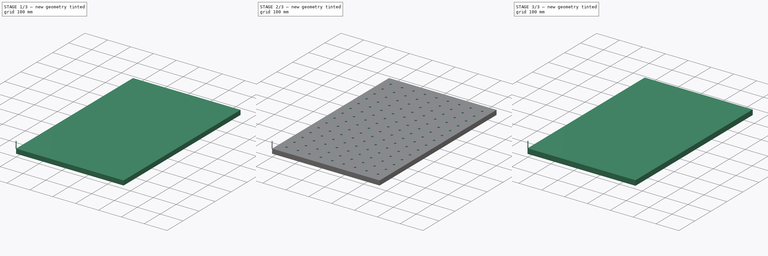
[diagram: build sequence overview — one tinted view per stage of 3, left to right]
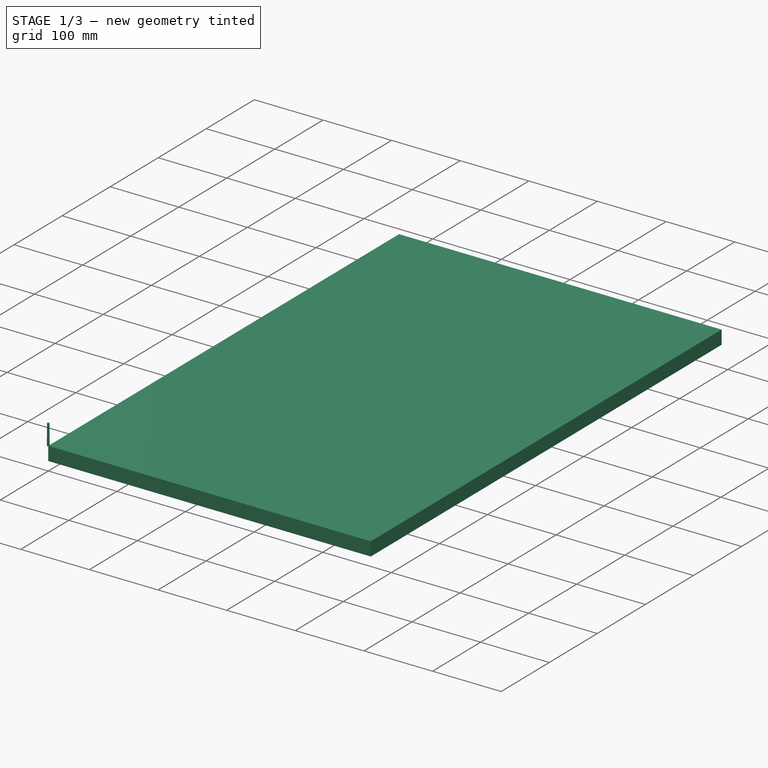
[diagram: stage 1 of 3 — iso view after this stage's code; geometry added in this stage tinted green]
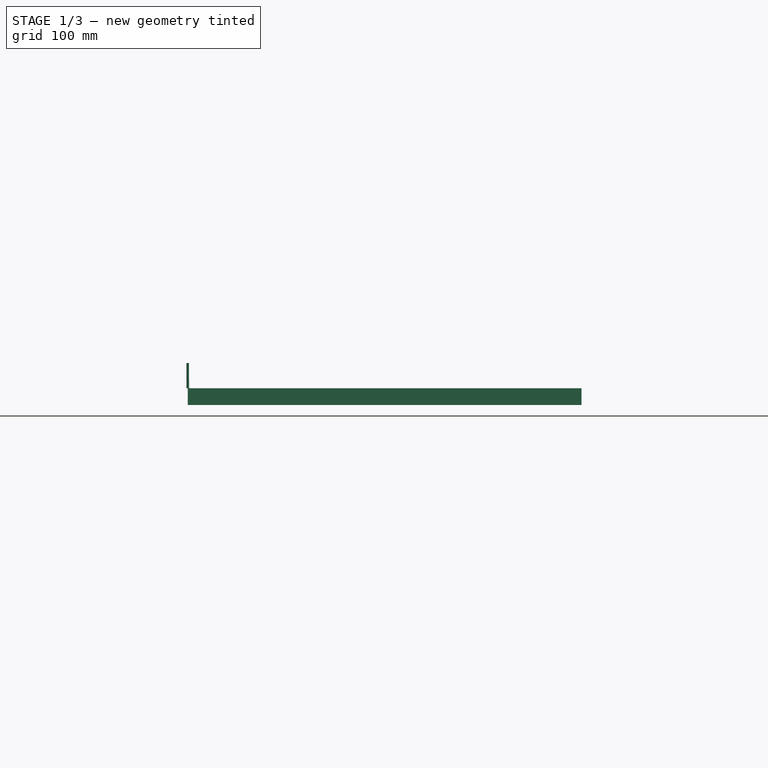
[diagram: stage 1 of 3 — front view after this stage's code; geometry added in this stage tinted green]
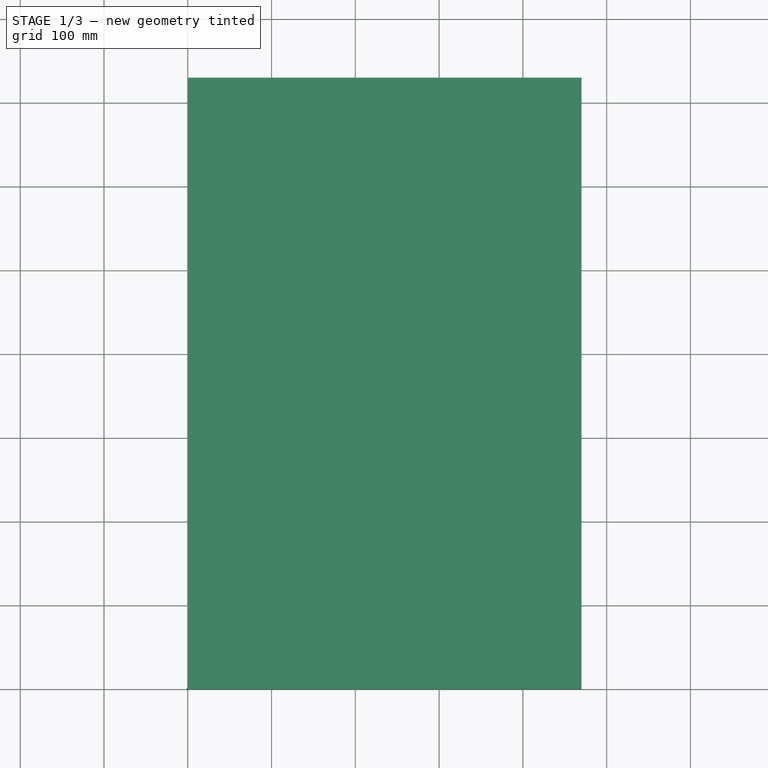
[diagram: stage 1 of 3 — top view after this stage's code; geometry added in this stage tinted green]
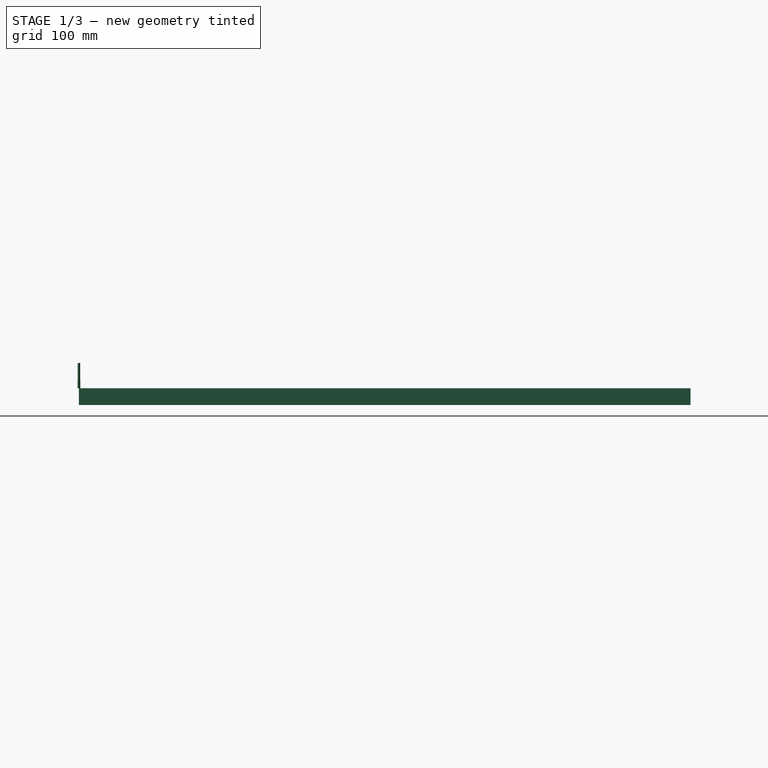
[diagram: stage 1 of 3 — right view after this stage's code; geometry added in this stage tinted green]
FCSTD DOCUMENT  (FreeCAD 0.20R29410 (Git))
Label: table
License: All rights reserved
LicenseURL: http://en.wikipedia.org/wiki/All_rights_reserved
objects: Sketcher::SketchObject×4, PartDesign::Pocket×3, App::DocumentObjectGroup×3, Part::FeaturePython×3, Path::FeaturePython×2, PartDesign::Pad×1, PartDesign::Body×1, App::FeaturePython×1
note: 16 computed .brp shape members not serialized (recipe doc carries the construction recipe); baked Part::Feature solids carry a one-line shape summary decoded from their .brp

FEATURE [Sketcher::SketchObject] Sketch
  FullyConstrained = true
  MapMode = 5
  Support = -> [XY_Plane]
  sketch-geometry (4):
    g0: LineSegment StartX=0 StartY=730 StartZ=0 EndX=470 EndY=730 EndZ=0
    g1: LineSegment StartX=470 StartY=730 StartZ=0 EndX=470 EndY=0 EndZ=0
    g2: LineSegment StartX=470 StartY=0 StartZ=0 EndX=0 EndY=0 EndZ=0
    g3: LineSegment StartX=0 StartY=0 StartZ=0 EndX=0 EndY=730 EndZ=0
  constraints (11):
    c: Coincident(g0,g1)
    c: Coincident(g1,g2)
    c: Coincident(g2,g3)
    c: Coincident(g3,g0)
    c: Horizontal(g0)
    c: Horizontal(g2)
    c: Vertical(g1)
    c: Vertical(g3)
    c: DistanceX(g0,g0) = 470
    c: DistanceY(g1,g1) = 730
    c: Coincident(g2,g-1)
FEATURE [PartDesign::Pad] Pad
  Direction = (0,0,1)
  Length = 20
  Length2 = 10
  Profile = -> Sketch
  ReferenceAxis = -> Sketch [N_Axis]
  Reversed = true
  Type = 0
FEATURE [Part::FeaturePython] ToolBit001  label="3_endmill004"  # Path/CAM toolbit (typed FeaturePython)
  BitPropertyNames = Chipload | CuttingEdgeHeight | Diameter | Flutes | Length | Material | ShankDiameter | SpindleDirection
  BitShape = <userpath>/freecad_toolbit/Shape/endmill.fcstd
  Chipload = 0
  CuttingEdgeHeight = 10
  Diameter = 3.17
  File = <userpath>/freecad_toolbit/Bit/3_enmill.fctb
  Flutes = 0
  Length = 30
  Material = 0
  ShankDiameter = 3
  ShapeName = endmill
  SpindleDirection = 0
FEATURE [Path::FeaturePython] __endmill004  label="3_endmill005"  # Path/CAM operation (typed FeaturePython)
  HorizFeed = 0
  HorizRapid = 0
  SpindleDir = 0
  SpindleSpeed = 0
  Tool = -> ToolBit001
  ToolNumber = 2
  VertFeed = 0
  VertRapid = 0
  expr: HorizRapid = SetupSheet.HorizRapid
  expr: VertRapid = SetupSheet.VertRapid
FEATURE [App::DocumentObjectGroup] Tools
  Group = -> [__endmill004]
FEATURE [Path::FeaturePython] Job  # Path/CAM operation (typed FeaturePython)
  CycleTime = 00:00:00
  Fixtures = G54
  GeometryTolerance = 0.01
  JobType = 0
  Model = -> Model
  Operations = -> Operations
  OrderOutputBy = 0
  PostProcessor = 8
  SetupSheet = -> SetupSheet
  SplitOutput = false
  Stock = -> Stock
  Tools = -> Tools
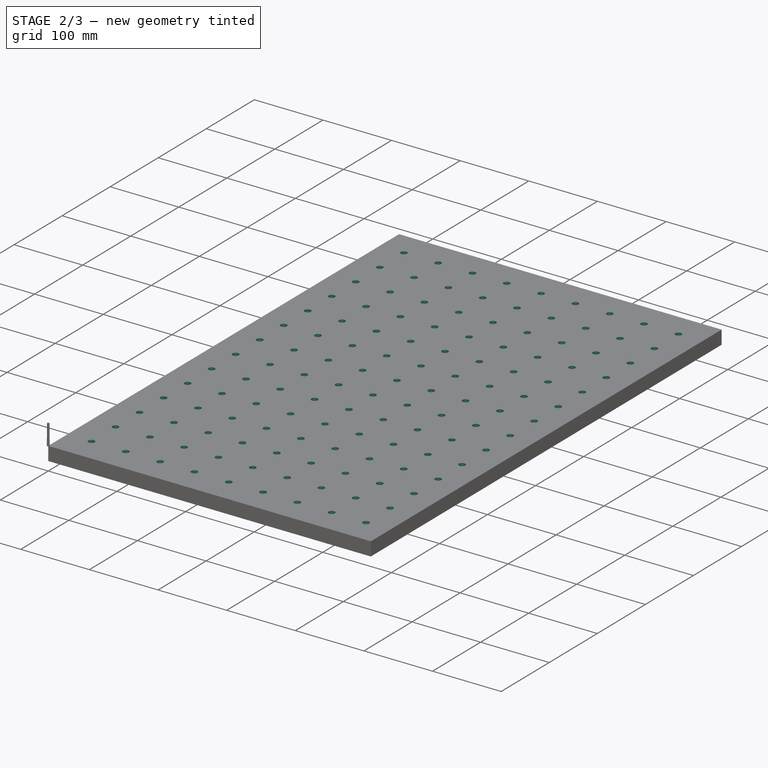
[diagram: stage 2 of 3 — iso view after this stage's code; geometry added in this stage tinted green]
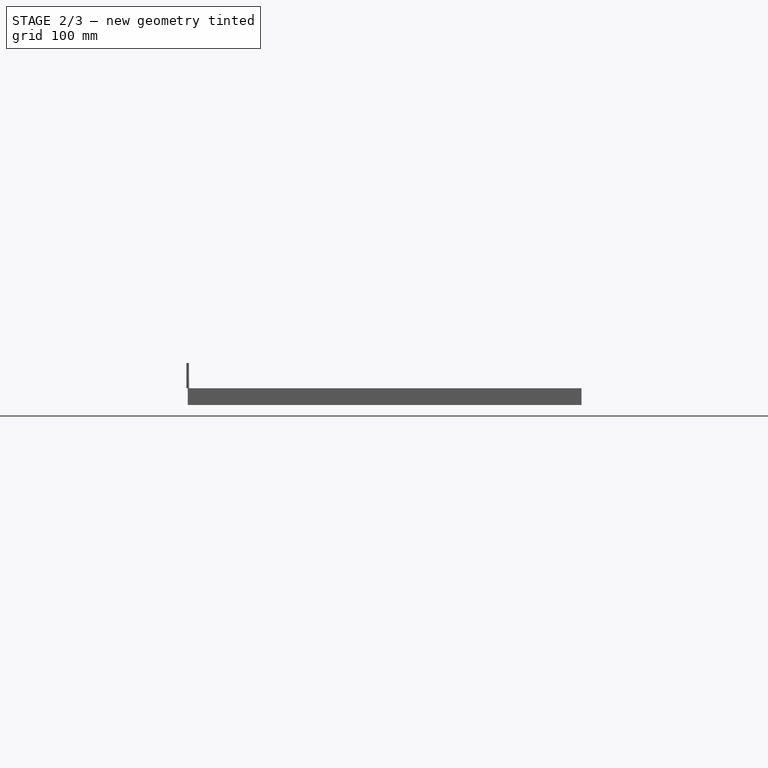
[diagram: stage 2 of 3 — front view after this stage's code; geometry added in this stage tinted green]
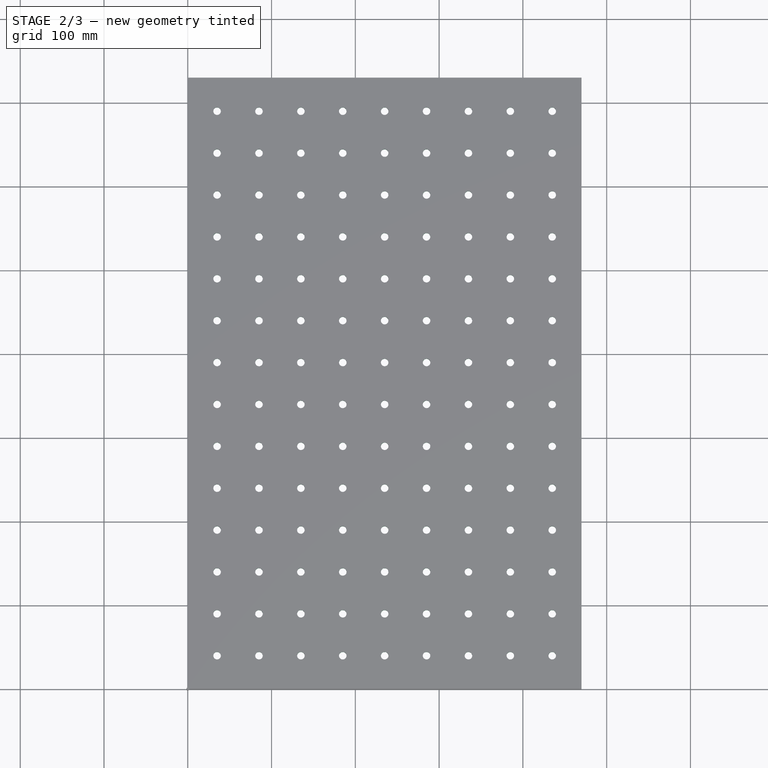
[diagram: stage 2 of 3 — top view after this stage's code; geometry added in this stage tinted green]
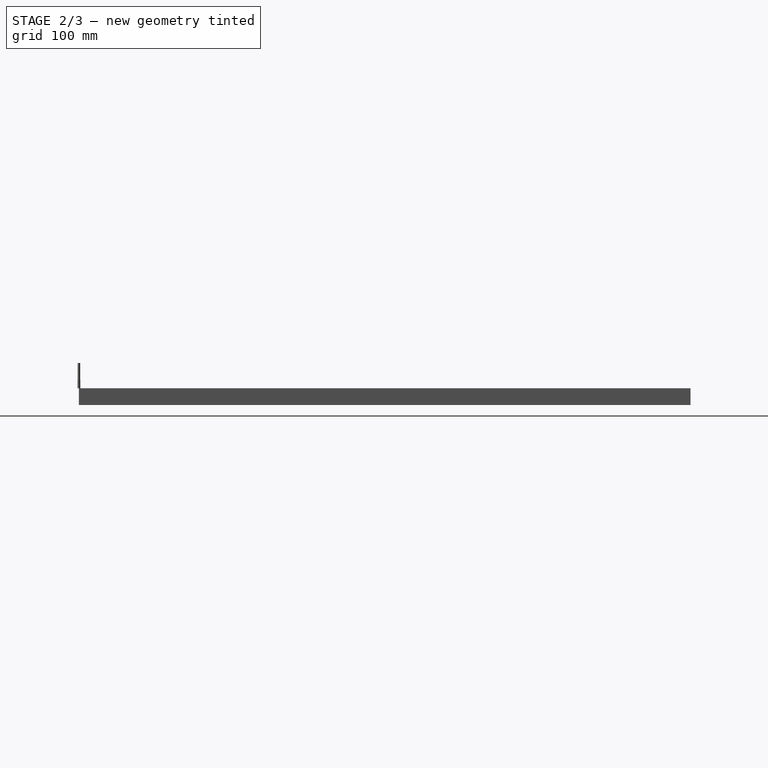
[diagram: stage 2 of 3 — right view after this stage's code; geometry added in this stage tinted green]
FEATURE [Sketcher::SketchObject] Sketch001
  FullyConstrained = true
  MapMode = 5
  Placement = pos=(0,0,-20) rot=(1,0,0;3.14159rad)
  Support = -> [Pad]
  sketch-geometry (1007):
    g0: LineSegment StartX=41.65 StartY=-43.8394 StartZ=0 EndX=41.65 EndY=-36.1606 EndZ=0
    g1: LineSegment StartX=41.65 StartY=-36.1606 StartZ=0 EndX=35 EndY=-32.3212 EndZ=0
    g2: LineSegment StartX=35 StartY=-32.3212 StartZ=0 EndX=28.35 EndY=-36.1606 EndZ=0
    g3: LineSegment StartX=28.35 StartY=-36.1606 StartZ=0 EndX=28.35 EndY=-43.8394 EndZ=0
    g4: LineSegment StartX=28.35 StartY=-43.8394 StartZ=0 EndX=35 EndY=-47.6788 EndZ=0
    g5: LineSegment StartX=35 StartY=-47.6788 StartZ=0 EndX=41.65 EndY=-43.8394 EndZ=0
    g6: Circle CenterX=35 CenterY=-40 CenterZ=0 NormalX=0 NormalY=0 NormalZ=1 AngleXU=0 Radius=7.67876
    g7: LineSegment StartX=91.65 StartY=-43.8394 StartZ=0 EndX=91.65 EndY=-36.1606 EndZ=0
    g8: LineSegment StartX=91.65 StartY=-36.1606 StartZ=0 EndX=85 EndY=-32.3212 EndZ=0
    g9: LineSegment StartX=85 StartY=-32.3212 StartZ=0 EndX=78.35 EndY=-36.1606 EndZ=0
    g10: LineSegment StartX=78.35 StartY=-36.1606 StartZ=0 EndX=78.35 EndY=-43.8394 EndZ=0
    g11: LineSegment StartX=78.35 StartY=-43.8394 StartZ=0 EndX=85 EndY=-47.6788 EndZ=0
    g12: LineSegment StartX=85 StartY=-47.6788 StartZ=0 EndX=91.65 EndY=-43.8394 EndZ=0
    g13: Circle CenterX=85 CenterY=-40 CenterZ=0 NormalX=0 NormalY=0 NormalZ=1 AngleXU=0 Radius=7.67876
    g14: LineSegment StartX=41.65 StartY=-43.8394 StartZ=0 EndX=91.65 EndY=-43.8394 EndZ=0
    g15: LineSegment StartX=141.65 StartY=-43.8394 StartZ=0 EndX=141.65 EndY=-36.1606 EndZ=0
    g16: LineSegment StartX=141.65 StartY=-36.1606 StartZ=0 EndX=135 EndY=-32.3212 EndZ=0
    g17: LineSegment StartX=135 StartY=-32.3212 StartZ=0 EndX=128.35 EndY=-36.1606 EndZ=0
    g18: LineSegment StartX=128.35 StartY=-36.1606 StartZ=0 EndX=128.35 EndY=-43.8394 EndZ=0
    g19: LineSegment StartX=128.35 StartY=-43.8394 StartZ=0 EndX=135 EndY=-47.6788 EndZ=0
    g20: LineSegment StartX=135 StartY=-47.6788 StartZ=0 EndX=141.65 EndY=-43.8394 EndZ=0
    g21: Circle CenterX=135 CenterY=-40 CenterZ=0 NormalX=0 NormalY=0 NormalZ=1 AngleXU=0 Radius=7.67876
    g22: LineSegment StartX=91.65 StartY=-43.8394 StartZ=0 EndX=141.65 EndY=-43.8394 EndZ=0
    g23: LineSegment StartX=191.65 StartY=-43.8394 StartZ=0 EndX=191.65 EndY=-36.1606 EndZ=0
    g24: LineSegment StartX=191.65 StartY=-36.1606 StartZ=0 EndX=185 EndY=-32.3212 EndZ=0
    g25: LineSegment StartX=185 StartY=-32.3212 StartZ=0 EndX=178.35 EndY=-36.1606 EndZ=0
    g26: LineSegment StartX=178.35 StartY=-36.1606 StartZ=0 EndX=178.35 EndY=-43.8394 EndZ=0
    g27: LineSegment StartX=178.35 StartY=-43.8394 StartZ=0 EndX=185 EndY=-47.6788 EndZ=0
    g28: LineSegment StartX=185 StartY=-47.6788 StartZ=0 EndX=191.65 EndY=-43.8394 EndZ=0
    g29: Circle CenterX=185 CenterY=-40 CenterZ=0 NormalX=0 NormalY=0 NormalZ=1 AngleXU=0 Radius=7.67876
    g30: LineSegment StartX=141.65 StartY=-43.8394 StartZ=0 EndX=191.65 EndY=-43.8394 EndZ=0
    g31: LineSegment StartX=241.65 StartY=-43.8394 StartZ=0 EndX=241.65 EndY=-36.1606 EndZ=0
    g32: LineSegment StartX=241.65 StartY=-36.1606 StartZ=0 EndX=235 EndY=-32.3212 EndZ=0
    g33: LineSegment StartX=235 StartY=-32.3212 StartZ=0 EndX=228.35 EndY=-36.1606 EndZ=0
    g34: LineSegment StartX=228.35 StartY=-36.1606 StartZ=0 EndX=228.35 EndY=-43.8394 EndZ=0
    g35: LineSegment StartX=228.35 StartY=-43.8394 StartZ=0 EndX=235 EndY=-47.6788 EndZ=0
    g36: LineSegment StartX=235 StartY=-47.6788 StartZ=0 EndX=241.65 EndY=-43.8394 EndZ=0
    g37: Circle CenterX=235 CenterY=-40 CenterZ=0 NormalX=0 NormalY=0 NormalZ=1 AngleXU=0 Radius=7.67876
    g38: LineSegment StartX=191.65 StartY=-43.8394 StartZ=0 EndX=241.65 EndY=-43.8394 EndZ=0
    g39: LineSegment StartX=291.65 StartY=-43.8394 StartZ=0 EndX=291.65 EndY=-36.1606 EndZ=0
    g40: LineSegment StartX=291.65 StartY=-36.1606 StartZ=0 EndX=285 EndY=-32.3212 EndZ=0
    g41: LineSegment StartX=285 StartY=-32.3212 StartZ=0 EndX=278.35 EndY=-36.1606 EndZ=0
    g42: LineSegment StartX=278.35 StartY=-36.1606 StartZ=0 EndX=278.35 EndY=-43.8394 EndZ=0
    g43: LineSegment StartX=278.35 StartY=-43.8394 StartZ=0 EndX=285 EndY=-47.6788 EndZ=0
    g44: LineSegment StartX=285 StartY=-47.6788 StartZ=0 EndX=291.65 EndY=-43.8394 EndZ=0
    g45: Circle CenterX=285 CenterY=-40 CenterZ=0 NormalX=0 NormalY=0 NormalZ=1 AngleXU=0 Radius=7.67876
    g46: LineSegment StartX=241.65 StartY=-43.8394 StartZ=0 EndX=291.65 EndY=-43.8394 EndZ=0
    g47: LineSegment StartX=341.65 StartY=-43.8394 StartZ=0 EndX=341.65 EndY=-36.1606 EndZ=0
    g48: LineSegment StartX=341.65 StartY=-36.1606 StartZ=0 EndX=335 EndY=-32.3212 EndZ=0
    g49: LineSegment StartX=335 StartY=-32.3212 StartZ=0 EndX=328.35 EndY=-36.1606 EndZ=0
    g50: LineSegment StartX=328.35 StartY=-36.1606 StartZ=0 EndX=328.35 EndY=-43.8394 EndZ=0
    g51: LineSegment StartX=328.35 StartY=-43.8394 StartZ=0 EndX=335 EndY=-47.6788 EndZ=0
    g52: LineSegment StartX=335 StartY=-47.6788 StartZ=0 EndX=341.65 EndY=-43.8394 EndZ=0
    g53: Circle CenterX=335 CenterY=-40 CenterZ=0 NormalX=0 NormalY=0 NormalZ=1 AngleXU=0 Radius=7.67876
    g54: LineSegment StartX=291.65 StartY=-43.8394 StartZ=0 EndX=341.65 EndY=-43.8394 EndZ=0
    g55: LineSegment StartX=391.65 StartY=-43.8394 StartZ=0 EndX=391.65 EndY=-36.1606 EndZ=0
    g56: LineSegment StartX=391.65 StartY=-36.1606 StartZ=0 EndX=385 EndY=-32.3212 EndZ=0
    g57: LineSegment StartX=385 StartY=-32.3212 StartZ=0 EndX=378.35 EndY=-36.1606 EndZ=0
    g58: LineSegment StartX=378.35 StartY=-36.1606 StartZ=0 EndX=378.35 EndY=-43.8394 EndZ=0
    g59: LineSegment StartX=378.35 StartY=-43.8394 StartZ=0 EndX=385 EndY=-47.6788 EndZ=0
    g60: LineSegment StartX=385 StartY=-47.6788 StartZ=0 EndX=391.65 EndY=-43.8394 EndZ=0
    g61: Circle CenterX=385 CenterY=-40 CenterZ=0 NormalX=0 NormalY=0 NormalZ=1 AngleXU=0 Radius=7.67876
    g62: LineSegment StartX=341.65 StartY=-43.8394 StartZ=0 EndX=391.65 EndY=-43.8394 EndZ=0
    g63: LineSegment StartX=441.65 StartY=-43.8394 StartZ=0 EndX=441.65 EndY=-36.1606 EndZ=0
    g64: LineSegment StartX=441.65 StartY=-36.1606 StartZ=0 EndX=435 EndY=-32.3212 EndZ=0
    g65: LineSegment StartX=435 StartY=-32.3212 StartZ=0 EndX=428.35 EndY=-36.1606 EndZ=0
    g66: LineSegment StartX=428.35 StartY=-36.1606 StartZ=0 EndX=428.35 EndY=-43.8394 EndZ=0
    g67: LineSegment StartX=428.35 StartY=-43.8394 StartZ=0 EndX=435 EndY=-47.6788 EndZ=0
    g68: LineSegment StartX=435 StartY=-47.6788 StartZ=0 EndX=441.65 EndY=-43.8394 EndZ=0
    g69: Circle CenterX=435 CenterY=-40 CenterZ=0 NormalX=0 NormalY=0 NormalZ=1 AngleXU=0 Radius=7.67876
    g70: LineSegment StartX=391.65 StartY=-43.8394 StartZ=0 EndX=441.65 EndY=-43.8394 EndZ=0
    g71: LineSegment StartX=41.65 StartY=-93.8394 StartZ=0 EndX=41.65 EndY=-86.1606 EndZ=0
    g72: LineSegment StartX=41.65 StartY=-86.1606 StartZ=0 EndX=35 EndY=-82.3212 EndZ=0
    g73: LineSegment StartX=35 StartY=-82.3212 StartZ=0 EndX=28.35 EndY=-86.1606 EndZ=0
    g74: LineSegment StartX=28.35 StartY=-86.1606 StartZ=0 EndX=28.35 EndY=-93.8394 EndZ=0
    g75: LineSegment StartX=28.35 StartY=-93.8394 StartZ=0 EndX=35 EndY=-97.6788 EndZ=0
    g76: LineSegment StartX=35 StartY=-97.6788 StartZ=0 EndX=41.65 EndY=-93.8394 EndZ=0
    g77: Circle CenterX=35 CenterY=-90 CenterZ=0 NormalX=0 NormalY=0 NormalZ=1 AngleXU=0 Radius=7.67876
    g78: LineSegment StartX=41.65 StartY=-43.8394 StartZ=0 EndX=41.65 EndY=-93.8394 EndZ=0
    g79: LineSegment StartX=91.65 StartY=-93.8394 StartZ=0 EndX=91.65 EndY=-86.1606 EndZ=0
    g80: LineSegment StartX=91.65 StartY=-86.1606 StartZ=0 EndX=85 EndY=-82.3212 EndZ=0
    g81: LineSegment StartX=85 StartY=-82.3212 StartZ=0 EndX=78.35 EndY=-86.1606 EndZ=0
    g82: LineSegment StartX=78.35 StartY=-86.1606 StartZ=0 EndX=78.35 EndY=-93.8394 EndZ=0
    g83: LineSegment StartX=78.35 StartY=-93.8394 StartZ=0 EndX=85 EndY=-97.6788 EndZ=0
    g84: LineSegment StartX=85 StartY=-97.6788 StartZ=0 EndX=91.65 EndY=-93.8394 EndZ=0
    g85: Circle CenterX=85 CenterY=-90 CenterZ=0 NormalX=0 NormalY=0 NormalZ=1 AngleXU=0 Radius=7.67876
    g86: LineSegment StartX=41.65 StartY=-93.8394 StartZ=0 EndX=91.65 EndY=-93.8394 EndZ=0
    g87: LineSegment StartX=141.65 StartY=-93.8394 StartZ=0 EndX=141.65 EndY=-86.1606 EndZ=0
    g88: LineSegment StartX=141.65 StartY=-86.1606 StartZ=0 EndX=135 EndY=-82.3212 EndZ=0
    g89: LineSegment StartX=135 StartY=-82.3212 StartZ=0 EndX=128.35 EndY=-86.1606 EndZ=0
    g90: LineSegment StartX=128.35 StartY=-86.1606 StartZ=0 EndX=128.35 EndY=-93.8394 EndZ=0
    g91: LineSegment StartX=128.35 StartY=-93.8394 StartZ=0 EndX=135 EndY=-97.6788 EndZ=0
    g92: LineSegment StartX=135 StartY=-97.6788 StartZ=0 EndX=141.65 EndY=-93.8394 EndZ=0
    g93: Circle CenterX=135 CenterY=-90 CenterZ=0 NormalX=0 NormalY=0 NormalZ=1 AngleXU=0 Radius=7.67876
    g94: LineSegment StartX=91.65 StartY=-93.8394 StartZ=0 EndX=141.65 EndY=-93.8394 EndZ=0
    g95: LineSegment StartX=191.65 StartY=-93.8394 StartZ=0 EndX=191.65 EndY=-86.1606 EndZ=0
    g96: LineSegment StartX=191.65 StartY=-86.1606 StartZ=0 EndX=185 EndY=-82.3212 EndZ=0
    g97: LineSegment StartX=185 StartY=-82.3212 StartZ=0 EndX=178.35 EndY=-86.1606 EndZ=0
    g98: LineSegment StartX=178.35 StartY=-86.1606 StartZ=0 EndX=178.35 EndY=-93.8394 EndZ=0
    g99: LineSegment StartX=178.35 StartY=-93.8394 StartZ=0 EndX=185 EndY=-97.6788 EndZ=0
    g100: LineSegment StartX=185 StartY=-97.6788 StartZ=0 EndX=191.65 EndY=-93.8394 EndZ=0
    g101: Circle CenterX=185 CenterY=-90 CenterZ=0 NormalX=0 NormalY=0 NormalZ=1 AngleXU=0 Radius=7.67876
    g102: LineSegment StartX=141.65 StartY=-93.8394 StartZ=0 EndX=191.65 EndY=-93.8394 EndZ=0
    g103: LineSegment StartX=241.65 StartY=-93.8394 StartZ=0 EndX=241.65 EndY=-86.1606 EndZ=0
    g104: LineSegment StartX=241.65 StartY=-86.1606 StartZ=0 EndX=235 EndY=-82.3212 EndZ=0
    g105: LineSegment StartX=235 StartY=-82.3212 StartZ=0 EndX=228.35 EndY=-86.1606 EndZ=0
    g106: LineSegment StartX=228.35 StartY=-86.1606 StartZ=0 EndX=228.35 EndY=-93.8394 EndZ=0
    g107: LineSegment StartX=228.35 StartY=-93.8394 StartZ=0 EndX=235 EndY=-97.6788 EndZ=0
    g108: LineSegment StartX=235 StartY=-97.6788 StartZ=0 EndX=241.65 EndY=-93.8394 EndZ=0
    g109: Circle CenterX=235 CenterY=-90 CenterZ=0 NormalX=0 NormalY=0 NormalZ=1 AngleXU=0 Radius=7.67876
    g110: LineSegment StartX=191.65 StartY=-93.8394 StartZ=0 EndX=241.65 EndY=-93.8394 EndZ=0
    g111: LineSegment StartX=291.65 StartY=-93.8394 StartZ=0 EndX=291.65 EndY=-86.1606 EndZ=0
    g112: LineSegment StartX=291.65 StartY=-86.1606 StartZ=0 EndX=285 EndY=-82.3212 EndZ=0
    g113: LineSegment StartX=285 StartY=-82.3212 StartZ=0 EndX=278.35 EndY=-86.1606 EndZ=0
    g114: LineSegment StartX=278.35 StartY=-86.1606 StartZ=0 EndX=278.35 EndY=-93.8394 EndZ=0
    g115: LineSegment StartX=278.35 StartY=-93.8394 StartZ=0 EndX=285 EndY=-97.6788 EndZ=0
    g116: LineSegment StartX=285 StartY=-97.6788 StartZ=0 EndX=291.65 EndY=-93.8394 EndZ=0
    g117: Circle CenterX=285 CenterY=-90 CenterZ=0 NormalX=0 NormalY=0 NormalZ=1 AngleXU=0 Radius=7.67876
    g118: LineSegment StartX=241.65 StartY=-93.8394 StartZ=0 EndX=291.65 EndY=-93.8394 EndZ=0
    g119: LineSegment StartX=341.65 StartY=-93.8394 StartZ=0 EndX=341.65 EndY=-86.1606 EndZ=0
    g120: LineSegment StartX=341.65 StartY=-86.1606 StartZ=0 EndX=335 EndY=-82.3212 EndZ=0
    g121: LineSegment StartX=335 StartY=-82.3212 StartZ=0 EndX=328.35 EndY=-86.1606 EndZ=0
    g122: LineSegment StartX=328.35 StartY=-86.1606 StartZ=0 EndX=328.35 EndY=-93.8394 EndZ=0
    g123: LineSegment StartX=328.35 StartY=-93.8394 StartZ=0 EndX=335 EndY=-97.6788 EndZ=0
    g124: LineSegment StartX=335 StartY=-97.6788 StartZ=0 EndX=341.65 EndY=-93.8394 EndZ=0
    g125: Circle CenterX=335 CenterY=-90 CenterZ=0 NormalX=0 NormalY=0 NormalZ=1 AngleXU=0 Radius=7.67876
    g126: LineSegment StartX=291.65 StartY=-93.8394 StartZ=0 EndX=341.65 EndY=-93.8394 EndZ=0
    g127: LineSegment StartX=391.65 StartY=-93.8394 StartZ=0 EndX=391.65 EndY=-86.1606 EndZ=0
    g128: LineSegment StartX=391.65 StartY=-86.1606 StartZ=0 EndX=385 EndY=-82.3212 EndZ=0
    g129: LineSegment StartX=385 StartY=-82.3212 StartZ=0 EndX=378.35 EndY=-86.1606 EndZ=0
    g130: LineSegment StartX=378.35 StartY=-86.1606 StartZ=0 EndX=378.35 EndY=-93.8394 EndZ=0
    g131: LineSegment StartX=378.35 StartY=-93.8394 StartZ=0 EndX=385 EndY=-97.6788 EndZ=0
    g132: LineSegment StartX=385 StartY=-97.6788 StartZ=0 EndX=391.65 EndY=-93.8394 EndZ=0
    g133: Circle CenterX=385 CenterY=-90 CenterZ=0 NormalX=0 NormalY=0 NormalZ=1 AngleXU=0 Radius=7.67876
    g134: LineSegment StartX=341.65 StartY=-93.8394 StartZ=0 EndX=391.65 EndY=-93.8394 EndZ=0
    g135: LineSegment StartX=441.65 StartY=-93.8394 StartZ=0 EndX=441.65 EndY=-86.1606 EndZ=0
    g136: LineSegment StartX=441.65 StartY=-86.1606 StartZ=0 EndX=435 EndY=-82.3212 EndZ=0
    g137: LineSegment StartX=435 StartY=-82.3212 StartZ=0 EndX=428.35 EndY=-86.1606 EndZ=0
    g138: LineSegment StartX=428.35 StartY=-86.1606 StartZ=0 EndX=428.35 EndY=-93.8394 EndZ=0
    g139: LineSegment StartX=428.35 StartY=-93.8394 StartZ=0 EndX=435 EndY=-97.6788 EndZ=0
    g140: LineSegment StartX=435 StartY=-97.6788 StartZ=0 EndX=441.65 EndY=-93.8394 EndZ=0
    g141: Circle CenterX=435 CenterY=-90 CenterZ=0 NormalX=0 NormalY=0 NormalZ=1 AngleXU=0 Radius=7.67876
    g142: LineSegment StartX=391.65 StartY=-93.8394 StartZ=0 EndX=441.65 EndY=-93.8394 EndZ=0
    g143: LineSegment StartX=41.65 StartY=-143.839 StartZ=0 EndX=41.65 EndY=-136.161 EndZ=0
    g144: LineSegment StartX=41.65 StartY=-136.161 StartZ=0 EndX=35 EndY=-132.321 EndZ=0
    g145: LineSegment StartX=35 StartY=-132.321 StartZ=0 EndX=28.35 EndY=-136.161 EndZ=0
    g146: LineSegment StartX=28.35 StartY=-136.161 StartZ=0 EndX=28.35 EndY=-143.839 EndZ=0
    g147: LineSegment StartX=28.35 StartY=-143.839 StartZ=0 EndX=35 EndY=-147.679 EndZ=0
    g148: LineSegment StartX=35 StartY=-147.679 StartZ=0 EndX=41.65 EndY=-143.839 EndZ=0
    g149: Circle CenterX=35 CenterY=-140 CenterZ=0 NormalX=0 NormalY=0 NormalZ=1 AngleXU=0 Radius=7.67876
    g150: LineSegment StartX=41.65 StartY=-93.8394 StartZ=0 EndX=41.65 EndY=-143.839 EndZ=0
    g151: LineSegment StartX=91.65 StartY=-143.839 StartZ=0 EndX=91.65 EndY=-136.161 EndZ=0
    g152: LineSegment StartX=91.65 StartY=-136.161 StartZ=0 EndX=85 EndY=-132.321 EndZ=0
    g153: LineSegment StartX=85 StartY=-132.321 StartZ=0 EndX=78.35 EndY=-136.161 EndZ=0
    g154: LineSegment StartX=78.35 StartY=-136.161 StartZ=0 EndX=78.35 EndY=-143.839 EndZ=0
    g155: LineSegment StartX=78.35 StartY=-143.839 StartZ=0 EndX=85 EndY=-147.679 EndZ=0
    g156: LineSegment StartX=85 StartY=-147.679 StartZ=0 EndX=91.65 EndY=-143.839 EndZ=0
    g157: Circle CenterX=85 CenterY=-140 CenterZ=0 NormalX=0 NormalY=0 NormalZ=1 AngleXU=0 Radius=7.67876
    g158: LineSegment StartX=41.65 StartY=-143.839 StartZ=0 EndX=91.65 EndY=-143.839 EndZ=0
    g159: LineSegment StartX=141.65 StartY=-143.839 StartZ=0 EndX=141.65 EndY=-136.161 EndZ=0
    g160: LineSegment StartX=141.65 StartY=-136.161 StartZ=0 EndX=135 EndY=-132.321 EndZ=0
    g161: LineSegment StartX=135 StartY=-132.321 StartZ=0 EndX=128.35 EndY=-136.161 EndZ=0
    g162: LineSegment StartX=128.35 StartY=-136.161 StartZ=0 EndX=128.35 EndY=-143.839 EndZ=0
    g163: LineSegment StartX=128.35 StartY=-143.839 StartZ=0 EndX=135 EndY=-147.679 EndZ=0
    g164: LineSegment StartX=135 StartY=-147.679 StartZ=0 EndX=141.65 EndY=-143.839 EndZ=0
    g165: Circle CenterX=135 CenterY=-140 CenterZ=0 NormalX=0 NormalY=0 NormalZ=1 AngleXU=0 Radius=7.67876
    g166: LineSegment StartX=91.65 StartY=-143.839 StartZ=0 EndX=141.65 EndY=-143.839 EndZ=0
    g167: LineSegment StartX=191.65 StartY=-143.839 StartZ=0 EndX=191.65 EndY=-136.161 EndZ=0
    g168: LineSegment StartX=191.65 StartY=-136.161 StartZ=0 EndX=185 EndY=-132.321 EndZ=0
    g169: LineSegment StartX=185 StartY=-132.321 StartZ=0 EndX=178.35 EndY=-136.161 EndZ=0
    g170: LineSegment StartX=178.35 StartY=-136.161 StartZ=0 EndX=178.35 EndY=-143.839 EndZ=0
    g171: LineSegment StartX=178.35 StartY=-143.839 StartZ=0 EndX=185 EndY=-147.679 EndZ=0
    g172: LineSegment StartX=185 StartY=-147.679 StartZ=0 EndX=191.65 EndY=-143.839 EndZ=0
    g173: Circle CenterX=185 CenterY=-140 CenterZ=0 NormalX=0 NormalY=0 NormalZ=1 AngleXU=0 Radius=7.67876
    g174: LineSegment StartX=141.65 StartY=-143.839 StartZ=0 EndX=191.65 EndY=-143.839 EndZ=0
    g175: LineSegment StartX=241.65 StartY=-143.839 StartZ=0 EndX=241.65 EndY=-136.161 EndZ=0
    g176: LineSegment StartX=241.65 StartY=-136.161 StartZ=0 EndX=235 EndY=-132.321 EndZ=0
    g177: LineSegment StartX=235 StartY=-132.321 StartZ=0 EndX=228.35 EndY=-136.161 EndZ=0
    g178: LineSegment StartX=228.35 StartY=-136.161 StartZ=0 EndX=228.35 EndY=-143.839 EndZ=0
    g179: LineSegment StartX=228.35 StartY=-143.839 StartZ=0 EndX=235 EndY=-147.679 EndZ=0
    g180: LineSegment StartX=235 StartY=-147.679 StartZ=0 EndX=241.65 EndY=-143.839 EndZ=0
    g181: Circle CenterX=235 CenterY=-140 CenterZ=0 NormalX=0 NormalY=0 NormalZ=1 AngleXU=0 Radius=7.67876
    g182: LineSegment StartX=191.65 StartY=-143.839 StartZ=0 EndX=241.65 EndY=-143.839 EndZ=0
    g183: LineSegment StartX=291.65 StartY=-143.839 StartZ=0 EndX=291.65 EndY=-136.161 EndZ=0
    g184: LineSegment StartX=291.65 StartY=-136.161 StartZ=0 EndX=285 EndY=-132.321 EndZ=0
    g185: LineSegment StartX=285 StartY=-132.321 StartZ=0 EndX=278.35 EndY=-136.161 EndZ=0
    g186: LineSegment StartX=278.35 StartY=-136.161 StartZ=0 EndX=278.35 EndY=-143.839 EndZ=0
    g187: LineSegment StartX=278.35 StartY=-143.839 StartZ=0 EndX=285 EndY=-147.679 EndZ=0
    g188: LineSegment StartX=285 StartY=-147.679 StartZ=0 EndX=291.65 EndY=-143.839 EndZ=0
    g189: Circle CenterX=285 CenterY=-140 CenterZ=0 NormalX=0 NormalY=0 NormalZ=1 AngleXU=0 Radius=7.67876
    g190: LineSegment StartX=241.65 StartY=-143.839 StartZ=0 EndX=291.65 EndY=-143.839 EndZ=0
    g191: LineSegment StartX=341.65 StartY=-143.839 StartZ=0 EndX=341.65 EndY=-136.161 EndZ=0
    g192: LineSegment StartX=341.65 StartY=-136.161 StartZ=0 EndX=335 EndY=-132.321 EndZ=0
    g193: LineSegment StartX=335 StartY=-132.321 StartZ=0 EndX=328.35 EndY=-136.161 EndZ=0
    g194: LineSegment StartX=328.35 StartY=-136.161 StartZ=0 EndX=328.35 EndY=-143.839 EndZ=0
    g195: LineSegment StartX=328.35 StartY=-143.839 StartZ=0 EndX=335 EndY=-147.679 EndZ=0
    g196: LineSegment StartX=335 StartY=-147.679 StartZ=0 EndX=341.65 EndY=-143.839 EndZ=0
    g197: Circle CenterX=335 CenterY=-140 CenterZ=0 NormalX=0 NormalY=0 NormalZ=1 AngleXU=0 Radius=7.67876
    g198: LineSegment StartX=291.65 StartY=-143.839 StartZ=0 EndX=341.65 EndY=-143.839 EndZ=0
    g199: LineSegment StartX=391.65 StartY=-143.839 StartZ=0 EndX=391.65 EndY=-136.161 EndZ=0
    g200: LineSegment StartX=391.65 StartY=-136.161 StartZ=0 EndX=385 EndY=-132.321 EndZ=0
    g201: LineSegment StartX=385 StartY=-132.321 StartZ=0 EndX=378.35 EndY=-136.161 EndZ=0
    g202: LineSegment StartX=378.35 StartY=-136.161 StartZ=0 EndX=378.35 EndY=-143.839 EndZ=0
    g203: LineSegment StartX=378.35 StartY=-143.839 StartZ=0 EndX=385 EndY=-147.679 EndZ=0
    g204: LineSegment StartX=385 StartY=-147.679 StartZ=0 EndX=391.65 EndY=-143.839 EndZ=0
    g205: Circle CenterX=385 CenterY=-140 CenterZ=0 NormalX=0 NormalY=0 NormalZ=1 AngleXU=0 Radius=7.67876
    g206: LineSegment StartX=341.65 StartY=-143.839 StartZ=0 EndX=391.65 EndY=-143.839 EndZ=0
    g207: LineSegment StartX=441.65 StartY=-143.839 StartZ=0 EndX=441.65 EndY=-136.161 EndZ=0
    g208: LineSegment StartX=441.65 StartY=-136.161 StartZ=0 EndX=435 EndY=-132.321 EndZ=0
    g209: LineSegment StartX=435 StartY=-132.321 StartZ=0 EndX=428.35 EndY=-136.161 EndZ=0
    g210: LineSegment StartX=428.35 StartY=-136.161 StartZ=0 EndX=428.35 EndY=-143.839 EndZ=0
    g211: LineSegment StartX=428.35 StartY=-143.839 StartZ=0 EndX=435 EndY=-147.679 EndZ=0
    g212: LineSegment StartX=435 StartY=-147.679 StartZ=0 EndX=441.65 EndY=-143.839 EndZ=0
    g213: Circle CenterX=435 CenterY=-140 CenterZ=0 NormalX=0 NormalY=0 NormalZ=1 AngleXU=0 Radius=7.67876
    g214: LineSegment StartX=391.65 StartY=-143.839 StartZ=0 EndX=441.65 EndY=-143.839 EndZ=0
    g215: LineSegment StartX=41.65 StartY=-193.839 StartZ=0 EndX=41.65 EndY=-186.161 EndZ=0
    g216: LineSegment StartX=41.65 StartY=-186.161 StartZ=0 EndX=35 EndY=-182.321 EndZ=0
    g217: LineSegment StartX=35 StartY=-182.321 StartZ=0 EndX=28.35 EndY=-186.161 EndZ=0
    g218: LineSegment StartX=28.35 StartY=-186.161 StartZ=0 EndX=28.35 EndY=-193.839 EndZ=0
    g219: LineSegment StartX=28.35 StartY=-193.839 StartZ=0 EndX=35 EndY=-197.679 EndZ=0
    g220: LineSegment StartX=35 StartY=-197.679 StartZ=0 EndX=41.65 EndY=-193.839 EndZ=0
    g221: Circle CenterX=35 CenterY=-190 CenterZ=0 NormalX=0 NormalY=0 NormalZ=1 AngleXU=0 Radius=7.67876
    g222: LineSegment StartX=41.65 StartY=-143.839 StartZ=0 EndX=41.65 EndY=-193.839 EndZ=0
    g223: LineSegment StartX=91.65 StartY=-193.839 StartZ=0 EndX=91.65 EndY=-186.161 EndZ=0
    g224: LineSegment StartX=91.65 StartY=-186.161 StartZ=0 EndX=85 EndY=-182.321 EndZ=0
    g225: LineSegment StartX=85 StartY=-182.321 StartZ=0 EndX=78.35 EndY=-186.161 EndZ=0
    g226: LineSegment StartX=78.35 StartY=-186.161 StartZ=0 EndX=78.35 EndY=-193.839 EndZ=0
    g227: LineSegment StartX=78.35 StartY=-193.839 StartZ=0 EndX=85 EndY=-197.679 EndZ=0
    g228: LineSegment StartX=85 StartY=-197.679 StartZ=0 EndX=91.65 EndY=-193.839 EndZ=0
    g229: Circle CenterX=85 CenterY=-190 CenterZ=0 NormalX=0 NormalY=0 NormalZ=1 AngleXU=0 Radius=7.67876
    g230: LineSegment StartX=41.65 StartY=-193.839 StartZ=0 EndX=91.65 EndY=-193.839 EndZ=0
    g231: LineSegment StartX=141.65 StartY=-193.839 StartZ=0 EndX=141.65 EndY=-186.161 EndZ=0
    g232: LineSegment StartX=141.65 StartY=-186.161 StartZ=0 EndX=135 EndY=-182.321 EndZ=0
    g233: LineSegment StartX=135 StartY=-182.321 StartZ=0 EndX=128.35 EndY=-186.161 EndZ=0
    g234: LineSegment StartX=128.35 StartY=-186.161 StartZ=0 EndX=128.35 EndY=-193.839 EndZ=0
    g235: LineSegment StartX=128.35 StartY=-193.839 StartZ=0 EndX=135 EndY=-197.679 EndZ=0
    g236: LineSegment StartX=135 StartY=-197.679 StartZ=0 EndX=141.65 EndY=-193.839 EndZ=0
    g237: Circle CenterX=135 CenterY=-190 CenterZ=0 NormalX=0 NormalY=0 NormalZ=1 AngleXU=0 Radius=7.67876
    g238: LineSegment StartX=91.65 StartY=-193.839 StartZ=0 EndX=141.65 EndY=-193.839 EndZ=0
    g239: LineSegment StartX=191.65 StartY=-193.839 StartZ=0 EndX=191.65 EndY=-186.161 EndZ=0
    g240: LineSegment StartX=191.65 StartY=-186.161 StartZ=0 EndX=185 EndY=-182.321 EndZ=0
    g241: LineSegment StartX=185 StartY=-182.321 StartZ=0 EndX=178.35 EndY=-186.161 EndZ=0
    g242: LineSegment StartX=178.35 StartY=-186.161 StartZ=0 EndX=178.35 EndY=-193.839 EndZ=0
    g243: LineSegment StartX=178.35 StartY=-193.839 StartZ=0 EndX=185 EndY=-197.679 EndZ=0
    g244: LineSegment StartX=185 StartY=-197.679 StartZ=0 EndX=191.65 EndY=-193.839 EndZ=0
    g245: Circle CenterX=185 CenterY=-190 CenterZ=0 NormalX=0 NormalY=0 NormalZ=1 AngleXU=0 Radius=7.67876
    g246: LineSegment StartX=141.65 StartY=-193.839 StartZ=0 EndX=191.65 EndY=-193.839 EndZ=0
    g247: LineSegment StartX=241.65 StartY=-193.839 StartZ=0 EndX=241.65 EndY=-186.161 EndZ=0
    g248: LineSegment StartX=241.65 StartY=-186.161 StartZ=0 EndX=235 EndY=-182.321 EndZ=0
    g249: LineSegment StartX=235 StartY=-182.321 StartZ=0 EndX=228.35 EndY=-186.161 EndZ=0
    g250: LineSegment StartX=228.35 StartY=-186.161 StartZ=0 EndX=228.35 EndY=-193.839 EndZ=0
    g251: LineSegment StartX=228.35 StartY=-193.839 StartZ=0 EndX=235 EndY=-197.679 EndZ=0
    g252: LineSegment StartX=235 StartY=-197.679 StartZ=0 EndX=241.65 EndY=-193.839 EndZ=0
    g253: Circle CenterX=235 CenterY=-190 CenterZ=0 NormalX=0 NormalY=0 NormalZ=1 AngleXU=0 Radius=7.67876
    g254: LineSegment StartX=191.65 StartY=-193.839 StartZ=0 EndX=241.65 EndY=-193.839 EndZ=0
    g255: LineSegment StartX=291.65 StartY=-193.839 StartZ=0 EndX=291.65 EndY=-186.161 EndZ=0
    g256: LineSegment StartX=291.65 StartY=-186.161 StartZ=0 EndX=285 EndY=-182.321 EndZ=0
    g257: LineSegment StartX=285 StartY=-182.321 StartZ=0 EndX=278.35 EndY=-186.161 EndZ=0
    g258: LineSegment StartX=278.35 StartY=-186.161 StartZ=0 EndX=278.35 EndY=-193.839 EndZ=0
    g259: LineSegment StartX=278.35 StartY=-193.839 StartZ=0 EndX=285 EndY=-197.679 EndZ=0
    g260: LineSegment StartX=285 StartY=-197.679 StartZ=0 EndX=291.65 EndY=-193.839 EndZ=0
    g261: Circle CenterX=285 CenterY=-190 CenterZ=0 NormalX=0 NormalY=0 NormalZ=1 AngleXU=0 Radius=7.67876
    g262: LineSegment StartX=241.65 StartY=-193.839 StartZ=0 EndX=291.65 EndY=-193.839 EndZ=0
    g263: LineSegment StartX=341.65 StartY=-193.839 StartZ=0 EndX=341.65 EndY=-186.161 EndZ=0
    g264: LineSegment StartX=341.65 StartY=-186.161 StartZ=0 EndX=335 EndY=-182.321 EndZ=0
    g265: LineSegment StartX=335 StartY=-182.321 StartZ=0 EndX=328.35 EndY=-186.161 EndZ=0
    g266: LineSegment StartX=328.35 StartY=-186.161 StartZ=0 EndX=328.35 EndY=-193.839 EndZ=0
    g267: LineSegment StartX=328.35 StartY=-193.839 StartZ=0 EndX=335 EndY=-197.679 EndZ=0
    g268: LineSegment StartX=335 StartY=-197.679 StartZ=0 EndX=341.65 EndY=-193.839 EndZ=0
    g269: Circle CenterX=335 CenterY=-190 CenterZ=0 NormalX=0 NormalY=0 NormalZ=1 AngleXU=0 Radius=7.67876
    g270: LineSegment StartX=291.65 StartY=-193.839 StartZ=0 EndX=341.65 EndY=-193.839 EndZ=0
    g271: LineSegment StartX=391.65 StartY=-193.839 StartZ=0 EndX=391.65 EndY=-186.161 EndZ=0
    g272: LineSegment StartX=391.65 StartY=-186.161 StartZ=0 EndX=385 EndY=-182.321 EndZ=0
    g273: LineSegment StartX=385 StartY=-182.321 StartZ=0 EndX=378.35 EndY=-186.161 EndZ=0
    g274: LineSegment StartX=378.35 StartY=-186.161 StartZ=0 EndX=378.35 EndY=-193.839 EndZ=0
    g275: LineSegment StartX=378.35 StartY=-193.839 StartZ=0 EndX=385 EndY=-197.679 EndZ=0
    g276: LineSegment StartX=385 StartY=-197.679 StartZ=0 EndX=391.65 EndY=-193.839 EndZ=0
    g277: Circle CenterX=385 CenterY=-190 CenterZ=0 NormalX=0 NormalY=0 NormalZ=1 AngleXU=0 Radius=7.67876
    g278: LineSegment StartX=341.65 StartY=-193.839 StartZ=0 EndX=391.65 EndY=-193.839 EndZ=0
    g279: LineSegment StartX=441.65 StartY=-193.839 StartZ=0 EndX=441.65 EndY=-186.161 EndZ=0
    g280: LineSegment StartX=441.65 StartY=-186.161 StartZ=0 EndX=435 EndY=-182.321 EndZ=0
    g281: LineSegment StartX=435 StartY=-182.321 StartZ=0 EndX=428.35 EndY=-186.161 EndZ=0
    g282: LineSegment StartX=428.35 StartY=-186.161 StartZ=0 EndX=428.35 EndY=-193.839 EndZ=0
    g283: LineSegment StartX=428.35 StartY=-193.839 StartZ=0 EndX=435 EndY=-197.679 EndZ=0
    g284: LineSegment StartX=435 StartY=-197.679 StartZ=0 EndX=441.65 EndY=-193.839 EndZ=0
    g285: Circle CenterX=435 CenterY=-190 CenterZ=0 NormalX=0 NormalY=0 NormalZ=1 AngleXU=0 Radius=7.67876
    g286: LineSegment StartX=391.65 StartY=-193.839 StartZ=0 EndX=441.65 EndY=-193.839 EndZ=0
    g287: LineSegment StartX=41.65 StartY=-243.839 StartZ=0 EndX=41.65 EndY=-236.161 EndZ=0
    g288: LineSegment StartX=41.65 StartY=-236.161 StartZ=0 EndX=35 EndY=-232.321 EndZ=0
    g289: LineSegment StartX=35 StartY=-232.321 StartZ=0 EndX=28.35 EndY=-236.161 EndZ=0
    g290: LineSegment StartX=28.35 StartY=-236.161 StartZ=0 EndX=28.35 EndY=-243.839 EndZ=0
    g291: LineSegment StartX=28.35 StartY=-243.839 StartZ=0 EndX=35 EndY=-247.679 EndZ=0
    g292: LineSegment StartX=35 StartY=-247.679 StartZ=0 EndX=41.65 EndY=-243.839 EndZ=0
    g293: Circle CenterX=35 CenterY=-240 CenterZ=0 NormalX=0 NormalY=0 NormalZ=1 AngleXU=0 Radius=7.67876
    g294: LineSegment StartX=41.65 StartY=-193.839 StartZ=0 EndX=41.65 EndY=-243.839 EndZ=0
    g295: LineSegment StartX=91.65 StartY=-243.839 StartZ=0 EndX=91.65 EndY=-236.161 EndZ=0
    g296: LineSegment StartX=91.65 StartY=-236.161 StartZ=0 EndX=85 EndY=-232.321 EndZ=0
    g297: LineSegment StartX=85 StartY=-232.321 StartZ=0 EndX=78.35 EndY=-236.161 EndZ=0
    g298: LineSegment StartX=78.35 StartY=-236.161 StartZ=0 EndX=78.35 EndY=-243.839 EndZ=0
    g299: LineSegment StartX=78.35 StartY=-243.839 StartZ=0 EndX=85 EndY=-247.679 EndZ=0
    g300: LineSegment StartX=85 StartY=-247.679 StartZ=0 EndX=91.65 EndY=-243.839 EndZ=0
    g301: Circle CenterX=85 CenterY=-240 CenterZ=0 NormalX=0 NormalY=0 NormalZ=1 AngleXU=0 Radius=7.67876
    g302: LineSegment StartX=41.65 StartY=-243.839 StartZ=0 EndX=91.65 EndY=-243.839 EndZ=0
    g303: LineSegment StartX=141.65 StartY=-243.839 StartZ=0 EndX=141.65 EndY=-236.161 EndZ=0
    g304: LineSegment StartX=141.65 StartY=-236.161 StartZ=0 EndX=135 EndY=-232.321 EndZ=0
    g305: LineSegment StartX=135 StartY=-232.321 StartZ=0 EndX=128.35 EndY=-236.161 EndZ=0
    g306: LineSegment StartX=128.35 StartY=-236.161 StartZ=0 EndX=128.35 EndY=-243.839 EndZ=0
    g307: LineSegment StartX=128.35 StartY=-243.839 StartZ=0 EndX=135 EndY=-247.679 EndZ=0
    g308: LineSegment StartX=135 StartY=-247.679 StartZ=0 EndX=141.65 EndY=-243.839 EndZ=0
    g309: Circle CenterX=135 CenterY=-240 CenterZ=0 NormalX=0 NormalY=0 NormalZ=1 AngleXU=0 Radius=7.67876
    g310: LineSegment StartX=91.65 StartY=-243.839 StartZ=0 EndX=141.65 EndY=-243.839 EndZ=0
    g311: LineSegment StartX=191.65 StartY=-243.839 StartZ=0 EndX=191.65 EndY=-236.161 EndZ=0
    g312: LineSegment StartX=191.65 StartY=-236.161 StartZ=0 EndX=185 EndY=-232.321 EndZ=0
    g313: LineSegment StartX=185 StartY=-232.321 StartZ=0 EndX=178.35 EndY=-236.161 EndZ=0
    g314: LineSegment StartX=178.35 StartY=-236.161 StartZ=0 EndX=178.35 EndY=-243.839 EndZ=0
    g315: LineSegment StartX=178.35 StartY=-243.839 StartZ=0 EndX=185 EndY=-247.679 EndZ=0
    g316: LineSegment StartX=185 StartY=-247.679 StartZ=0 EndX=191.65 EndY=-243.839 EndZ=0
    g317: Circle CenterX=185 CenterY=-240 CenterZ=0 NormalX=0 NormalY=0 NormalZ=1 AngleXU=0 Radius=7.67876
    g318: LineSegment StartX=141.65 StartY=-243.839 StartZ=0 EndX=191.65 EndY=-243.839 EndZ=0
    g319: LineSegment StartX=241.65 StartY=-243.839 StartZ=0 EndX=241.65 EndY=-236.161 EndZ=0
    g320: LineSegment StartX=241.65 StartY=-236.161 StartZ=0 EndX=235 EndY=-232.321 EndZ=0
    g321: LineSegment StartX=235 StartY=-232.321 StartZ=0 EndX=228.35 EndY=-236.161 EndZ=0
    g322: LineSegment StartX=228.35 StartY=-236.161 StartZ=0 EndX=228.35 EndY=-243.839 EndZ=0
    g323: LineSegment StartX=228.35 StartY=-243.839 StartZ=0 EndX=235 EndY=-247.679 EndZ=0
    g324: LineSegment StartX=235 StartY=-247.679 StartZ=0 EndX=241.65 EndY=-243.839 EndZ=0
    g325: Circle CenterX=235 CenterY=-240 CenterZ=0 NormalX=0 NormalY=0 NormalZ=1 AngleXU=0 Radius=7.67876
    g326: LineSegment StartX=191.65 StartY=-243.839 StartZ=0 EndX=241.65 EndY=-243.839 EndZ=0
    g327: LineSegment StartX=291.65 StartY=-243.839 StartZ=0 EndX=291.65 EndY=-236.161 EndZ=0
    g328: LineSegment StartX=291.65 StartY=-236.161 StartZ=0 EndX=285 EndY=-232.321 EndZ=0
    g329: LineSegment StartX=285 StartY=-232.321 StartZ=0 EndX=278.35 EndY=-236.161 EndZ=0
    g330: LineSegment StartX=278.35 StartY=-236.161 StartZ=0 EndX=278.35 EndY=-243.839 EndZ=0
    g331: LineSegment StartX=278.35 StartY=-243.839 StartZ=0 EndX=285 EndY=-247.679 EndZ=0
    g332: LineSegment StartX=285 StartY=-247.679 StartZ=0 EndX=291.65 EndY=-243.839 EndZ=0
    g333: Circle CenterX=285 CenterY=-240 CenterZ=0 NormalX=0 NormalY=0 NormalZ=1 AngleXU=0 Radius=7.67876
    g334: LineSegment StartX=241.65 StartY=-243.839 StartZ=0 EndX=291.65 EndY=-243.839 EndZ=0
    g335: LineSegment StartX=341.65 StartY=-243.839 StartZ=0 EndX=341.65 EndY=-236.161 EndZ=0
    g336: LineSegment StartX=341.65 StartY=-236.161 StartZ=0 EndX=335 EndY=-232.321 EndZ=0
    g337: LineSegment StartX=335 StartY=-232.321 StartZ=0 EndX=328.35 EndY=-236.161 EndZ=0
    g338: LineSegment StartX=328.35 StartY=-236.161 StartZ=0 EndX=328.35 EndY=-243.839 EndZ=0
    g339: LineSegment StartX=328.35 StartY=-243.839 StartZ=0 EndX=335 EndY=-247.679 EndZ=0
    g340: LineSegment StartX=335 StartY=-247.679 StartZ=0 EndX=341.65 EndY=-243.839 EndZ=0
    g341: Circle CenterX=335 CenterY=-240 CenterZ=0 NormalX=0 NormalY=0 NormalZ=1 AngleXU=0 Radius=7.67876
    g342: LineSegment StartX=291.65 StartY=-243.839 StartZ=0 EndX=341.65 EndY=-243.839 EndZ=0
    g343: LineSegment StartX=391.65 StartY=-243.839 StartZ=0 EndX=391.65 EndY=-236.161 EndZ=0
    g344: LineSegment StartX=391.65 StartY=-236.161 StartZ=0 EndX=385 EndY=-232.321 EndZ=0
    g345: LineSegment StartX=385 StartY=-232.321 StartZ=0 EndX=378.35 EndY=-236.161 EndZ=0
    g346: LineSegment StartX=378.35 StartY=-236.161 StartZ=0 EndX=378.35 EndY=-243.839 EndZ=0
    g347: LineSegment StartX=378.35 StartY=-243.839 StartZ=0 EndX=385 EndY=-247.679 EndZ=0
    g348: LineSegment StartX=385 StartY=-247.679 StartZ=0 EndX=391.65 EndY=-243.839 EndZ=0
    g349: Circle CenterX=385 CenterY=-240 CenterZ=0 NormalX=0 NormalY=0 NormalZ=1 AngleXU=0 Radius=7.67876
    g350: LineSegment StartX=341.65 StartY=-243.839 StartZ=0 EndX=391.65 EndY=-243.839 EndZ=0
    g351: LineSegment StartX=441.65 StartY=-243.839 StartZ=0 EndX=441.65 EndY=-236.161 EndZ=0
    g352: LineSegment StartX=441.65 StartY=-236.161 StartZ=0 EndX=435 EndY=-232.321 EndZ=0
    g353: LineSegment StartX=435 StartY=-232.321 StartZ=0 EndX=428.35 EndY=-236.161 EndZ=0
    g354: LineSegment StartX=428.35 StartY=-236.161 StartZ=0 EndX=428.35 EndY=-243.839 EndZ=0
    g355: LineSegment StartX=428.35 StartY=-243.839 StartZ=0 EndX=435 EndY=-247.679 EndZ=0
    g356: LineSegment StartX=435 StartY=-247.679 StartZ=0 EndX=441.65 EndY=-243.839 EndZ=0
    g357: Circle CenterX=435 CenterY=-240 CenterZ=0 NormalX=0 NormalY=0 NormalZ=1 AngleXU=0 Radius=7.67876
    g358: LineSegment StartX=391.65 StartY=-243.839 StartZ=0 EndX=441.65 EndY=-243.839 EndZ=0
    g359: LineSegment StartX=41.65 StartY=-293.839 StartZ=0 EndX=41.65 EndY=-286.161 EndZ=0
    g360: LineSegment StartX=41.65 StartY=-286.161 StartZ=0 EndX=35 EndY=-282.321 EndZ=0
    g361: LineSegment StartX=35 StartY=-282.321 StartZ=0 EndX=28.35 EndY=-286.161 EndZ=0
    g362: LineSegment StartX=28.35 StartY=-286.161 StartZ=0 EndX=28.35 EndY=-293.839 EndZ=0
    g363: LineSegment StartX=28.35 StartY=-293.839 StartZ=0 EndX=35 EndY=-297.679 EndZ=0
    g364: LineSegment StartX=35 StartY=-297.679 StartZ=0 EndX=41.65 EndY=-293.839 EndZ=0
    g365: Circle CenterX=35 CenterY=-290 CenterZ=0 NormalX=0 NormalY=0 NormalZ=1 AngleXU=0 Radius=7.67876
    g366: LineSegment StartX=41.65 StartY=-243.839 StartZ=0 EndX=41.65 EndY=-293.839 EndZ=0
    g367: LineSegment StartX=91.65 StartY=-293.839 StartZ=0 EndX=91.65 EndY=-286.161 EndZ=0
    g368: LineSegment StartX=91.65 StartY=-286.161 StartZ=0 EndX=85 EndY=-282.321 EndZ=0
    g369: LineSegment StartX=85 StartY=-282.321 StartZ=0 EndX=78.35 EndY=-286.161 EndZ=0
    g370: LineSegment StartX=78.35 StartY=-286.161 StartZ=0 EndX=78.35 EndY=-293.839 EndZ=0
    g371: LineSegment StartX=78.35 StartY=-293.839 StartZ=0 EndX=85 EndY=-297.679 EndZ=0
    g372: LineSegment StartX=85 StartY=-297.679 StartZ=0 EndX=91.65 EndY=-293.839 EndZ=0
    g373: Circle CenterX=85 CenterY=-290 CenterZ=0 NormalX=0 NormalY=0 NormalZ=1 AngleXU=0 Radius=7.67876
    g374: LineSegment StartX=41.65 StartY=-293.839 StartZ=0 EndX=91.65 EndY=-293.839 EndZ=0
    g375: LineSegment StartX=141.65 StartY=-293.839 StartZ=0 EndX=141.65 EndY=-286.161 EndZ=0
    g376: LineSegment StartX=141.65 StartY=-286.161 StartZ=0 EndX=135 EndY=-282.321 EndZ=0
    g377: LineSegment StartX=135 StartY=-282.321 StartZ=0 EndX=128.35 EndY=-286.161 EndZ=0
    g378: LineSegment StartX=128.35 StartY=-286.161 StartZ=0 EndX=128.35 EndY=-293.839 EndZ=0
    g379: LineSegment StartX=128.35 StartY=-293.839 StartZ=0 EndX=135 EndY=-297.679 EndZ=0
    g380: LineSegment StartX=135 StartY=-297.679 StartZ=0 EndX=141.65 EndY=-293.839 EndZ=0
    g381: Circle CenterX=135 CenterY=-290 CenterZ=0 NormalX=0 NormalY=0 NormalZ=1 AngleXU=0 Radius=7.67876
    g382: LineSegment StartX=91.65 StartY=-293.839 StartZ=0 EndX=141.65 EndY=-293.839 EndZ=0
    g383: LineSegment StartX=191.65 StartY=-293.839 StartZ=0 EndX=191.65 EndY=-286.161 EndZ=0
    g384: LineSegment StartX=191.65 StartY=-286.161 StartZ=0 EndX=185 EndY=-282.321 EndZ=0
    g385: LineSegment StartX=185 StartY=-282.321 StartZ=0 EndX=178.35 EndY=-286.161 EndZ=0
    g386: LineSegment StartX=178.35 StartY=-286.161 StartZ=0 EndX=178.35 EndY=-293.839 EndZ=0
    g387: LineSegment StartX=178.35 StartY=-293.839 StartZ=0 EndX=185 EndY=-297.679 EndZ=0
    g388: LineSegment StartX=185 StartY=-297.679 StartZ=0 EndX=191.65 EndY=-293.839 EndZ=0
    g389: Circle CenterX=185 CenterY=-290 CenterZ=0 NormalX=0 NormalY=0 NormalZ=1 AngleXU=0 Radius=7.67876
    g390: LineSegment StartX=141.65 StartY=-293.839 StartZ=0 EndX=191.65 EndY=-293.839 EndZ=0
    g391: LineSegment StartX=241.65 StartY=-293.839 StartZ=0 EndX=241.65 EndY=-286.161 EndZ=0
    g392: LineSegment StartX=241.65 StartY=-286.161 StartZ=0 EndX=235 EndY=-282.321 EndZ=0
    g393: LineSegment StartX=235 StartY=-282.321 StartZ=0 EndX=228.35 EndY=-286.161 EndZ=0
    g394: LineSegment StartX=228.35 StartY=-286.161 StartZ=0 EndX=228.35 EndY=-293.839 EndZ=0
    g395: LineSegment StartX=228.35 StartY=-293.839 StartZ=0 EndX=235 EndY=-297.679 EndZ=0
    g396: LineSegment StartX=235 StartY=-297.679 StartZ=0 EndX=241.65 EndY=-293.839 EndZ=0
    g397: Circle CenterX=235 CenterY=-290 CenterZ=0 NormalX=0 NormalY=0 NormalZ=1 AngleXU=0 Radius=7.67876
    g398: LineSegment StartX=191.65 StartY=-293.839 StartZ=0 EndX=241.65 EndY=-293.839 EndZ=0
    g399: LineSegment StartX=291.65 StartY=-293.839 StartZ=0 EndX=291.65 EndY=-286.161 EndZ=0
    ... +607 more geometry lines
  constraints (2896):
    c: Coincident(g0,g1)
    c: Coincident(g1,g2)
    c: Coincident(g2,g3)
    c: Coincident(g3,g4)
    c: Coincident(g4,g5)
    c: Coincident(g5,g0)
    c: Equal(g0,g1)
    c: Equal(g0,g2)
    c: Equal(g0,g3)
    c: Equal(g0,g5)
    c: PointOnObject(g0,g6)
    c: PointOnObject(g1,g6)
    c: PointOnObject(g2,g6)
    c: PointOnObject(g3,g6)
    c: PointOnObject(g4,g6)
    c: PointOnObject(g5,g6)
    c: Vertical(g0)
    c: DistanceX(g3,g0) = 13.3
    c: DistanceX(g-1,g6) = 35
    c: DistanceY(g6,g-1) = 40
    c: Equal(g5,g4)
    c: Coincident(g7,g8)
    c: Coincident(g8,g9)
    c: Coincident(g9,g10)
    c: Coincident(g10,g11)
    c: Coincident(g11,g12)
    c: Coincident(g12,g7)
    c: Equal(g7,g8)
    c: Equal(g7,g9)
    c: Equal(g7,g10)
    c: Equal(g7,g12)
    c: PointOnObject(g7,g13)
    c: PointOnObject(g8,g13)
    c: PointOnObject(g9,g13)
    c: PointOnObject(g10,g13)
    c: PointOnObject(g11,g13)
    c: PointOnObject(g12,g13)
    c: Vertical(g7)
    c: DistanceX(g10,g7) = 13.3
    c: Equal(g12,g11)
    c: Coincident(g0,g14)
    c: Coincident(g7,g14)
    c: Distance(g14) = 50
    c: Angle(g14) = 0
    c: Coincident(g15,g16)
    c: Coincident(g16,g17)
    c: Coincident(g17,g18)
    c: Coincident(g18,g19)
    c: Coincident(g19,g20)
    c: Coincident(g20,g15)
    c: Equal(g15,g16)
    c: Equal(g15,g17)
    c: Equal(g15,g18)
    c: Equal(g15,g20)
    c: PointOnObject(g15,g21)
    c: PointOnObject(g16,g21)
    c: PointOnObject(g17,g21)
    c: PointOnObject(g18,g21)
    c: PointOnObject(g19,g21)
    c: PointOnObject(g20,g21)
    c: Vertical(g15)
    c: DistanceX(g18,g15) = 13.3
    c: Equal(g20,g19)
    c: Coincident(g7,g22)
    c: Coincident(g15,g22)
    c: Equal(g14,g22)
    c: Parallel(g22,g14)
    c: Coincident(g23,g24)
    c: Coincident(g24,g25)
    c: Coincident(g25,g26)
    c: Coincident(g26,g27)
    c: Coincident(g27,g28)
    c: Coincident(g28,g23)
    c: Equal(g23,g24)
    c: Equal(g23,g25)
    c: Equal(g23,g26)
    c: Equal(g23,g28)
    c: PointOnObject(g23,g29)
    c: PointOnObject(g24,g29)
    c: PointOnObject(g25,g29)
    c: PointOnObject(g26,g29)
    c: PointOnObject(g27,g29)
    c: PointOnObject(g28,g29)
    c: Vertical(g23)
    c: DistanceX(g26,g23) = 13.3
    c: Equal(g28,g27)
    c: Coincident(g15,g30)
    c: Coincident(g23,g30)
    c: Equal(g14,g30)
    c: Parallel(g30,g14)
    c: Coincident(g31,g32)
    c: Coincident(g32,g33)
    c: Coincident(g33,g34)
    c: Coincident(g34,g35)
    c: Coincident(g35,g36)
    c: Coincident(g36,g31)
    c: Equal(g31,g32)
    c: Equal(g31,g33)
    c: Equal(g31,g34)
    c: Equal(g31,g36)
    c: PointOnObject(g31,g37)
    c: PointOnObject(g32,g37)
    c: PointOnObject(g33,g37)
    c: PointOnObject(g34,g37)
    c: PointOnObject(g35,g37)
    c: PointOnObject(g36,g37)
    c: Vertical(g31)
    c: DistanceX(g34,g31) = 13.3
    c: Equal(g36,g35)
    c: Coincident(g23,g38)
    c: Coincident(g31,g38)
    c: Equal(g14,g38)
    c: Parallel(g38,g14)
    c: Coincident(g39,g40)
    c: Coincident(g40,g41)
    c: Coincident(g41,g42)
    c: Coincident(g42,g43)
    c: Coincident(g43,g44)
    c: Coincident(g44,g39)
    c: Equal(g39,g40)
    c: Equal(g39,g41)
    c: Equal(g39,g42)
    c: Equal(g39,g44)
    c: PointOnObject(g39,g45)
    c: PointOnObject(g40,g45)
    c: PointOnObject(g41,g45)
    c: PointOnObject(g42,g45)
    c: PointOnObject(g43,g45)
    c: PointOnObject(g44,g45)
    c: Vertical(g39)
    c: DistanceX(g42,g39) = 13.3
    c: Equal(g44,g43)
    c: Coincident(g31,g46)
    c: Coincident(g39,g46)
    c: Equal(g14,g46)
    c: Parallel(g46,g14)
    c: Coincident(g47,g48)
    c: Coincident(g48,g49)
    c: Coincident(g49,g50)
    c: Coincident(g50,g51)
    c: Coincident(g51,g52)
    c: Coincident(g52,g47)
    c: Equal(g47,g48)
    c: Equal(g47,g49)
    c: Equal(g47,g50)
    c: Equal(g47,g52)
    c: PointOnObject(g47,g53)
    c: PointOnObject(g48,g53)
    c: PointOnObject(g49,g53)
    c: PointOnObject(g50,g53)
    c: PointOnObject(g51,g53)
    c: PointOnObject(g52,g53)
    c: Vertical(g47)
    c: DistanceX(g50,g47) = 13.3
    c: Equal(g52,g51)
    c: Coincident(g39,g54)
    c: Coincident(g47,g54)
    c: Equal(g14,g54)
    c: Parallel(g54,g14)
    c: Coincident(g55,g56)
    c: Coincident(g56,g57)
    c: Coincident(g57,g58)
    c: Coincident(g58,g59)
    c: Coincident(g59,g60)
    c: Coincident(g60,g55)
    c: Equal(g55,g56)
    c: Equal(g55,g57)
    c: Equal(g55,g58)
    c: Equal(g55,g60)
    c: PointOnObject(g55,g61)
    c: PointOnObject(g56,g61)
    c: PointOnObject(g57,g61)
    c: PointOnObject(g58,g61)
    c: PointOnObject(g59,g61)
    c: PointOnObject(g60,g61)
    c: Vertical(g55)
    c: DistanceX(g58,g55) = 13.3
    c: Equal(g60,g59)
    c: Coincident(g47,g62)
    c: Coincident(g55,g62)
    c: Equal(g14,g62)
    c: Parallel(g62,g14)
    c: Coincident(g63,g64)
    c: Coincident(g64,g65)
    c: Coincident(g65,g66)
    c: Coincident(g66,g67)
    c: Coincident(g67,g68)
    c: Coincident(g68,g63)
    c: Equal(g63,g64)
    c: Equal(g63,g65)
    c: Equal(g63,g66)
    c: Equal(g63,g68)
    c: PointOnObject(g63,g69)
    c: PointOnObject(g64,g69)
    c: PointOnObject(g65,g69)
    c: PointOnObject(g66,g69)
    c: PointOnObject(g67,g69)
    c: PointOnObject(g68,g69)
    c: Vertical(g63)
    c: DistanceX(g66,g63) = 13.3
    c: Equal(g68,g67)
    c: Coincident(g55,g70)
    c: Coincident(g63,g70)
    c: Equal(g14,g70)
    c: Parallel(g70,g14)
    c: Coincident(g71,g72)
    c: Coincident(g72,g73)
    c: Coincident(g73,g74)
    c: Coincident(g74,g75)
    c: Coincident(g75,g76)
    c: Coincident(g76,g71)
    c: Equal(g71,g72)
    c: Equal(g71,g73)
    c: Equal(g71,g74)
    c: Equal(g71,g76)
    c: PointOnObject(g71,g77)
    c: PointOnObject(g72,g77)
    c: PointOnObject(g73,g77)
    c: PointOnObject(g74,g77)
    c: PointOnObject(g75,g77)
    c: PointOnObject(g76,g77)
    c: Vertical(g71)
    c: DistanceX(g74,g71) = 13.3
    c: Equal(g76,g75)
    c: Coincident(g0,g78)
    c: Coincident(g71,g78)
    c: Equal(g78,g14)
    c: Perpendicular(g78,g14)
    c: Coincident(g79,g80)
    c: Coincident(g80,g81)
    c: Coincident(g81,g82)
    c: Coincident(g82,g83)
    c: Coincident(g83,g84)
    c: Coincident(g84,g79)
    c: Equal(g79,g80)
    c: Equal(g79,g81)
    c: Equal(g79,g82)
    c: Equal(g79,g84)
    c: PointOnObject(g79,g85)
    c: PointOnObject(g80,g85)
    c: PointOnObject(g81,g85)
    c: PointOnObject(g82,g85)
    c: PointOnObject(g83,g85)
    c: PointOnObject(g84,g85)
    c: Vertical(g79)
    c: DistanceX(g82,g79) = 13.3
    c: Equal(g84,g83)
    c: Coincident(g71,g86)
    c: Coincident(g79,g86)
    c: Equal(g14,g86)
    c: Parallel(g86,g14)
    c: Coincident(g87,g88)
    c: Coincident(g88,g89)
    c: Coincident(g89,g90)
    c: Coincident(g90,g91)
    c: Coincident(g91,g92)
    c: Coincident(g92,g87)
    c: Equal(g87,g88)
    c: Equal(g87,g89)
    c: Equal(g87,g90)
    c: Equal(g87,g92)
    c: PointOnObject(g87,g93)
    c: PointOnObject(g88,g93)
    c: PointOnObject(g89,g93)
    c: PointOnObject(g90,g93)
    c: PointOnObject(g91,g93)
    c: PointOnObject(g92,g93)
    c: Vertical(g87)
    c: DistanceX(g90,g87) = 13.3
    c: Equal(g92,g91)
    c: Coincident(g79,g94)
    c: Coincident(g87,g94)
    c: Equal(g14,g94)
    c: Parallel(g94,g14)
    c: Coincident(g95,g96)
    c: Coincident(g96,g97)
    c: Coincident(g97,g98)
    c: Coincident(g98,g99)
    c: Coincident(g99,g100)
    c: Coincident(g100,g95)
    c: Equal(g95,g96)
    c: Equal(g95,g97)
    c: Equal(g95,g98)
    c: Equal(g95,g100)
    c: PointOnObject(g95,g101)
    c: PointOnObject(g96,g101)
    c: PointOnObject(g97,g101)
    c: PointOnObject(g98,g101)
    c: PointOnObject(g99,g101)
    c: PointOnObject(g100,g101)
    c: Vertical(g95)
    c: DistanceX(g98,g95) = 13.3
    c: Equal(g100,g99)
    c: Coincident(g87,g102)
    c: Coincident(g95,g102)
    c: Equal(g14,g102)
    c: Parallel(g102,g14)
    c: Coincident(g103,g104)
    c: Coincident(g104,g105)
    c: Coincident(g105,g106)
    c: Coincident(g106,g107)
    c: Coincident(g107,g108)
    c: Coincident(g108,g103)
    c: Equal(g103,g104)
    c: Equal(g103,g105)
    c: Equal(g103,g106)
    c: Equal(g103,g108)
    c: PointOnObject(g103,g109)
    c: PointOnObject(g104,g109)
    c: PointOnObject(g105,g109)
    c: PointOnObject(g106,g109)
    c: PointOnObject(g107,g109)
    c: PointOnObject(g108,g109)
    c: Vertical(g103)
    c: DistanceX(g106,g103) = 13.3
    c: Equal(g108,g107)
    c: Coincident(g95,g110)
    c: Coincident(g103,g110)
    c: Equal(g14,g110)
    c: Parallel(g110,g14)
    c: Coincident(g111,g112)
    c: Coincident(g112,g113)
    c: Coincident(g113,g114)
    c: Coincident(g114,g115)
    c: Coincident(g115,g116)
    c: Coincident(g116,g111)
    c: Equal(g111,g112)
    c: Equal(g111,g113)
    c: Equal(g111,g114)
    c: Equal(g111,g116)
    c: PointOnObject(g111,g117)
    c: PointOnObject(g112,g117)
    c: PointOnObject(g113,g117)
    c: PointOnObject(g114,g117)
    c: PointOnObject(g115,g117)
    c: PointOnObject(g116,g117)
    c: Vertical(g111)
    c: DistanceX(g114,g111) = 13.3
    c: Equal(g116,g115)
    c: Coincident(g103,g118)
    c: Coincident(g111,g118)
    c: Equal(g14,g118)
    c: Parallel(g118,g14)
    c: Coincident(g119,g120)
    c: Coincident(g120,g121)
    c: Coincident(g121,g122)
    c: Coincident(g122,g123)
    c: Coincident(g123,g124)
    c: Coincident(g124,g119)
    c: Equal(g119,g120)
    c: Equal(g119,g121)
    c: Equal(g119,g122)
    c: Equal(g119,g124)
    c: PointOnObject(g119,g125)
    c: PointOnObject(g120,g125)
    c: PointOnObject(g121,g125)
    c: PointOnObject(g122,g125)
    c: PointOnObject(g123,g125)
    c: PointOnObject(g124,g125)
    c: Vertical(g119)
    c: DistanceX(g122,g119) = 13.3
    c: Equal(g124,g123)
    c: Coincident(g111,g126)
    c: Coincident(g119,g126)
    c: Equal(g14,g126)
    c: Parallel(g126,g14)
    c: Coincident(g127,g128)
    c: Coincident(g128,g129)
    c: Coincident(g129,g130)
    c: Coincident(g130,g131)
    c: Coincident(g131,g132)
    c: Coincident(g132,g127)
    c: Equal(g127,g128)
    c: Equal(g127,g129)
    c: Equal(g127,g130)
    c: Equal(g127,g132)
    c: PointOnObject(g127,g133)
    c: PointOnObject(g128,g133)
    c: PointOnObject(g129,g133)
    c: PointOnObject(g130,g133)
    c: PointOnObject(g131,g133)
    c: PointOnObject(g132,g133)
    c: Vertical(g127)
    c: DistanceX(g130,g127) = 13.3
    c: Equal(g132,g131)
    c: Coincident(g119,g134)
    c: Coincident(g127,g134)
    c: Equal(g14,g134)
    c: Parallel(g134,g14)
    c: Coincident(g135,g136)
    c: Coincident(g136,g137)
    c: Coincident(g137,g138)
    c: Coincident(g138,g139)
    c: Coincident(g139,g140)
    c: Coincident(g140,g135)
    c: Equal(g135,g136)
    c: Equal(g135,g137)
    c: Equal(g135,g138)
    c: Equal(g135,g140)
    c: PointOnObject(g135,g141)
    c: PointOnObject(g136,g141)
    c: PointOnObject(g137,g141)
    c: PointOnObject(g138,g141)
    c: PointOnObject(g139,g141)
    c: PointOnObject(g140,g141)
    c: Vertical(g135)
    c: DistanceX(g138,g135) = 13.3
    c: Equal(g140,g139)
    c: Coincident(g127,g142)
    c: Coincident(g135,g142)
    c: Equal(g14,g142)
    c: Parallel(g142,g14)
    c: Coincident(g143,g144)
    c: Coincident(g144,g145)
    c: Coincident(g145,g146)
    c: Coincident(g146,g147)
    c: Coincident(g147,g148)
    c: Coincident(g148,g143)
    c: Equal(g143,g144)
    c: Equal(g143,g145)
    c: Equal(g143,g146)
    c: Equal(g143,g148)
    c: PointOnObject(g143,g149)
    c: PointOnObject(g144,g149)
    c: PointOnObject(g145,g149)
    c: PointOnObject(g146,g149)
    c: PointOnObject(g147,g149)
    c: PointOnObject(g148,g149)
    c: Vertical(g143)
    c: DistanceX(g146,g143) = 13.3
    c: Equal(g148,g147)
    c: Coincident(g71,g150)
    c: Coincident(g143,g150)
    c: Equal(g78,g150)
    c: Perpendicular(g150,g14)
    c: Coincident(g151,g152)
    c: Coincident(g152,g153)
    c: Coincident(g153,g154)
    c: Coincident(g154,g155)
    c: Coincident(g155,g156)
    c: Coincident(g156,g151)
    c: Equal(g151,g152)
    c: Equal(g151,g153)
    c: Equal(g151,g154)
    c: Equal(g151,g156)
    c: PointOnObject(g151,g157)
    c: PointOnObject(g152,g157)
    c: PointOnObject(g153,g157)
    c: PointOnObject(g154,g157)
    c: PointOnObject(g155,g157)
    c: PointOnObject(g156,g157)
    c: Vertical(g151)
    c: DistanceX(g154,g151) = 13.3
    c: Equal(g156,g155)
    c: Coincident(g143,g158)
    c: Coincident(g151,g158)
    c: Equal(g14,g158)
    c: Parallel(g158,g14)
    c: Coincident(g159,g160)
    c: Coincident(g160,g161)
    c: Coincident(g161,g162)
    c: Coincident(g162,g163)
    c: Coincident(g163,g164)
    c: Coincident(g164,g159)
    c: Equal(g159,g160)
    c: Equal(g159,g161)
    c: Equal(g159,g162)
    c: Equal(g159,g164)
    c: PointOnObject(g159,g165)
    c: PointOnObject(g160,g165)
    c: PointOnObject(g161,g165)
    c: PointOnObject(g162,g165)
    c: PointOnObject(g163,g165)
    c: PointOnObject(g164,g165)
    c: Vertical(g159)
    c: DistanceX(g162,g159) = 13.3
    c: Equal(g164,g163)
    c: Coincident(g151,g166)
    c: Coincident(g159,g166)
    c: Equal(g14,g166)
    c: Parallel(g166,g14)
    c: Coincident(g167,g168)
    c: Coincident(g168,g169)
    c: Coincident(g169,g170)
    c: Coincident(g170,g171)
    c: Coincident(g171,g172)
    c: Coincident(g172,g167)
    c: Equal(g167,g168)
    c: Equal(g167,g169)
    c: Equal(g167,g170)
    c: Equal(g167,g172)
    c: PointOnObject(g167,g173)
    c: PointOnObject(g168,g173)
    c: PointOnObject(g169,g173)
    c: PointOnObject(g170,g173)
    c: PointOnObject(g171,g173)
    c: PointOnObject(g172,g173)
    c: Vertical(g167)
    c: DistanceX(g170,g167) = 13.3
    c: Equal(g172,g171)
    c: Coincident(g159,g174)
    c: Coincident(g167,g174)
    c: Equal(g14,g174)
    c: Parallel(g174,g14)
    c: Coincident(g175,g176)
    c: Coincident(g176,g177)
    c: Coincident(g177,g178)
    c: Coincident(g178,g179)
    c: Coincident(g179,g180)
    c: Coincident(g180,g175)
    c: Equal(g175,g176)
    c: Equal(g175,g177)
    c: Equal(g175,g178)
    c: Equal(g175,g180)
    c: PointOnObject(g175,g181)
    c: PointOnObject(g176,g181)
    c: PointOnObject(g177,g181)
    c: PointOnObject(g178,g181)
    c: PointOnObject(g179,g181)
    c: PointOnObject(g180,g181)
    c: Vertical(g175)
    c: DistanceX(g178,g175) = 13.3
    c: Equal(g180,g179)
    c: Coincident(g167,g182)
    c: Coincident(g175,g182)
    c: Equal(g14,g182)
    c: Parallel(g182,g14)
    c: Coincident(g183,g184)
    c: Coincident(g184,g185)
    c: Coincident(g185,g186)
    c: Coincident(g186,g187)
    c: Coincident(g187,g188)
    c: Coincident(g188,g183)
    c: Equal(g183,g184)
    c: Equal(g183,g185)
    c: Equal(g183,g186)
    c: Equal(g183,g188)
    c: PointOnObject(g183,g189)
    c: PointOnObject(g184,g189)
    c: PointOnObject(g185,g189)
    c: PointOnObject(g186,g189)
    c: PointOnObject(g187,g189)
    c: PointOnObject(g188,g189)
    c: Vertical(g183)
    c: DistanceX(g186,g183) = 13.3
    c: Equal(g188,g187)
    c: Coincident(g175,g190)
    c: Coincident(g183,g190)
    c: Equal(g14,g190)
    c: Parallel(g190,g14)
    c: Coincident(g191,g192)
    c: Coincident(g192,g193)
    c: Coincident(g193,g194)
    c: Coincident(g194,g195)
    c: Coincident(g195,g196)
    c: Coincident(g196,g191)
    c: Equal(g191,g192)
    c: Equal(g191,g193)
    c: Equal(g191,g194)
    c: Equal(g191,g196)
    c: PointOnObject(g191,g197)
    c: PointOnObject(g192,g197)
    c: PointOnObject(g193,g197)
    c: PointOnObject(g194,g197)
    c: PointOnObject(g195,g197)
    c: PointOnObject(g196,g197)
    c: Vertical(g191)
    c: DistanceX(g194,g191) = 13.3
    c: Equal(g196,g195)
    c: Coincident(g183,g198)
    c: Coincident(g191,g198)
    c: Equal(g14,g198)
    c: Parallel(g198,g14)
    c: Coincident(g199,g200)
    c: Coincident(g200,g201)
    c: Coincident(g201,g202)
    c: Coincident(g202,g203)
    c: Coincident(g203,g204)
    c: Coincident(g204,g199)
    c: Equal(g199,g200)
    c: Equal(g199,g201)
    c: Equal(g199,g202)
    c: Equal(g199,g204)
    c: PointOnObject(g199,g205)
    c: PointOnObject(g200,g205)
    c: PointOnObject(g201,g205)
    c: PointOnObject(g202,g205)
    c: PointOnObject(g203,g205)
    c: PointOnObject(g204,g205)
    c: Vertical(g199)
    c: DistanceX(g202,g199) = 13.3
    c: Equal(g204,g203)
    c: Coincident(g191,g206)
    c: Coincident(g199,g206)
    c: Equal(g14,g206)
    c: Parallel(g206,g14)
    c: Coincident(g207,g208)
    c: Coincident(g208,g209)
    c: Coincident(g209,g210)
    c: Coincident(g210,g211)
    c: Coincident(g211,g212)
    c: Coincident(g212,g207)
    c: Equal(g207,g208)
    c: Equal(g207,g209)
    c: Equal(g207,g210)
    c: Equal(g207,g212)
    c: PointOnObject(g207,g213)
    c: PointOnObject(g208,g213)
    c: PointOnObject(g209,g213)
    c: PointOnObject(g210,g213)
    c: PointOnObject(g211,g213)
    c: PointOnObject(g212,g213)
    c: Vertical(g207)
    c: DistanceX(g210,g207) = 13.3
    c: Equal(g212,g211)
    c: Coincident(g199,g214)
    c: Coincident(g207,g214)
    c: Equal(g14,g214)
    c: Parallel(g214,g14)
    c: Coincident(g215,g216)
    c: Coincident(g216,g217)
    c: Coincident(g217,g218)
    c: Coincident(g218,g219)
    c: Coincident(g219,g220)
    c: Coincident(g220,g215)
    c: Equal(g215,g216)
    c: Equal(g215,g217)
    c: Equal(g215,g218)
    c: Equal(g215,g220)
    c: PointOnObject(g215,g221)
    c: PointOnObject(g216,g221)
    c: PointOnObject(g217,g221)
    c: PointOnObject(g218,g221)
    c: PointOnObject(g219,g221)
    c: PointOnObject(g220,g221)
    c: Vertical(g215)
    c: DistanceX(g218,g215) = 13.3
    c: Equal(g220,g219)
    c: Coincident(g143,g222)
    c: Coincident(g215,g222)
    c: Equal(g78,g222)
    c: Perpendicular(g222,g14)
    c: Coincident(g223,g224)
    c: Coincident(g224,g225)
    c: Coincident(g225,g226)
    c: Coincident(g226,g227)
    c: Coincident(g227,g228)
    c: Coincident(g228,g223)
    c: Equal(g223,g224)
    c: Equal(g223,g225)
    c: Equal(g223,g226)
    c: Equal(g223,g228)
    c: PointOnObject(g223,g229)
    c: PointOnObject(g224,g229)
    c: PointOnObject(g225,g229)
    c: PointOnObject(g226,g229)
    c: PointOnObject(g227,g229)
    c: PointOnObject(g228,g229)
    c: Vertical(g223)
    c: DistanceX(g226,g223) = 13.3
    c: Equal(g228,g227)
    c: Coincident(g215,g230)
    c: Coincident(g223,g230)
    c: Equal(g14,g230)
    c: Parallel(g230,g14)
    c: Coincident(g231,g232)
    c: Coincident(g232,g233)
    c: Coincident(g233,g234)
    c: Coincident(g234,g235)
    c: Coincident(g235,g236)
    c: Coincident(g236,g231)
    c: Equal(g231,g232)
    c: Equal(g231,g233)
    c: Equal(g231,g234)
    c: Equal(g231,g236)
    c: PointOnObject(g231,g237)
    c: PointOnObject(g232,g237)
    c: PointOnObject(g233,g237)
    c: PointOnObject(g234,g237)
    c: PointOnObject(g235,g237)
    c: PointOnObject(g236,g237)
    c: Vertical(g231)
    c: DistanceX(g234,g231) = 13.3
    c: Equal(g236,g235)
    c: Coincident(g223,g238)
    c: Coincident(g231,g238)
    c: Equal(g14,g238)
    c: Parallel(g238,g14)
    c: Coincident(g239,g240)
    c: Coincident(g240,g241)
    c: Coincident(g241,g242)
    c: Coincident(g242,g243)
    c: Coincident(g243,g244)
    c: Coincident(g244,g239)
    c: Equal(g239,g240)
    c: Equal(g239,g241)
    c: Equal(g239,g242)
    c: Equal(g239,g244)
    c: PointOnObject(g239,g245)
    c: PointOnObject(g240,g245)
    c: PointOnObject(g241,g245)
    c: PointOnObject(g242,g245)
    c: PointOnObject(g243,g245)
    c: PointOnObject(g244,g245)
    c: Vertical(g239)
    c: DistanceX(g242,g239) = 13.3
    c: Equal(g244,g243)
    c: Coincident(g231,g246)
    c: Coincident(g239,g246)
    c: Equal(g14,g246)
    c: Parallel(g246,g14)
    c: Coincident(g247,g248)
    c: Coincident(g248,g249)
    c: Coincident(g249,g250)
    c: Coincident(g250,g251)
    c: Coincident(g251,g252)
    c: Coincident(g252,g247)
    c: Equal(g247,g248)
    c: Equal(g247,g249)
    c: Equal(g247,g250)
    c: Equal(g247,g252)
    c: PointOnObject(g247,g253)
    c: PointOnObject(g248,g253)
    c: PointOnObject(g249,g253)
    c: PointOnObject(g250,g253)
    c: PointOnObject(g251,g253)
    c: PointOnObject(g252,g253)
    c: Vertical(g247)
    c: DistanceX(g250,g247) = 13.3
    c: Equal(g252,g251)
    c: Coincident(g239,g254)
    c: Coincident(g247,g254)
    c: Equal(g14,g254)
    c: Parallel(g254,g14)
    c: Coincident(g255,g256)
    c: Coincident(g256,g257)
    c: Coincident(g257,g258)
    c: Coincident(g258,g259)
    c: Coincident(g259,g260)
    c: Coincident(g260,g255)
    c: Equal(g255,g256)
    c: Equal(g255,g257)
    c: Equal(g255,g258)
    c: Equal(g255,g260)
    c: PointOnObject(g255,g261)
    c: PointOnObject(g256,g261)
    c: PointOnObject(g257,g261)
    c: PointOnObject(g258,g261)
    c: PointOnObject(g259,g261)
    c: PointOnObject(g260,g261)
    c: Vertical(g255)
    c: DistanceX(g258,g255) = 13.3
    c: Equal(g260,g259)
    c: Coincident(g247,g262)
    c: Coincident(g255,g262)
    c: Equal(g14,g262)
    c: Parallel(g262,g14)
    c: Coincident(g263,g264)
    c: Coincident(g264,g265)
    c: Coincident(g265,g266)
    c: Coincident(g266,g267)
    c: Coincident(g267,g268)
    c: Coincident(g268,g263)
    c: Equal(g263,g264)
    c: Equal(g263,g265)
    c: Equal(g263,g266)
    c: Equal(g263,g268)
    c: PointOnObject(g263,g269)
    c: PointOnObject(g264,g269)
    c: PointOnObject(g265,g269)
    c: PointOnObject(g266,g269)
    c: PointOnObject(g267,g269)
    c: PointOnObject(g268,g269)
    c: Vertical(g263)
    c: DistanceX(g266,g263) = 13.3
    c: Equal(g268,g267)
    c: Coincident(g255,g270)
    c: Coincident(g263,g270)
    c: Equal(g14,g270)
    c: Parallel(g270,g14)
    c: Coincident(g271,g272)
    c: Coincident(g272,g273)
    c: Coincident(g273,g274)
    c: Coincident(g274,g275)
    c: Coincident(g275,g276)
    c: Coincident(g276,g271)
    c: Equal(g271,g272)
    c: Equal(g271,g273)
    c: Equal(g271,g274)
    c: Equal(g271,g276)
    c: PointOnObject(g271,g277)
    c: PointOnObject(g272,g277)
    c: PointOnObject(g273,g277)
    c: PointOnObject(g274,g277)
    c: PointOnObject(g275,g277)
    c: PointOnObject(g276,g277)
    c: Vertical(g271)
    c: DistanceX(g274,g271) = 13.3
    c: Equal(g276,g275)
    c: Coincident(g263,g278)
    c: Coincident(g271,g278)
    c: Equal(g14,g278)
    c: Parallel(g278,g14)
    c: Coincident(g279,g280)
    c: Coincident(g280,g281)
    c: Coincident(g281,g282)
    c: Coincident(g282,g283)
    c: Coincident(g283,g284)
    c: Coincident(g284,g279)
    c: Equal(g279,g280)
    c: Equal(g279,g281)
    c: Equal(g279,g282)
    c: Equal(g279,g284)
    c: PointOnObject(g279,g285)
    c: PointOnObject(g280,g285)
    c: PointOnObject(g281,g285)
    c: PointOnObject(g282,g285)
    c: PointOnObject(g283,g285)
    c: PointOnObject(g284,g285)
    c: Vertical(g279)
    c: DistanceX(g282,g279) = 13.3
    c: Equal(g284,g283)
    c: Coincident(g271,g286)
    c: Coincident(g279,g286)
    c: Equal(g14,g286)
    c: Parallel(g286,g14)
    c: Coincident(g287,g288)
    c: Coincident(g288,g289)
    c: Coincident(g289,g290)
    c: Coincident(g290,g291)
    c: Coincident(g291,g292)
    c: Coincident(g292,g287)
    c: Equal(g287,g288)
    c: Equal(g287,g289)
    c: Equal(g287,g290)
    c: Equal(g287,g292)
    c: PointOnObject(g287,g293)
    c: PointOnObject(g288,g293)
    c: PointOnObject(g289,g293)
    c: PointOnObject(g290,g293)
    c: PointOnObject(g291,g293)
    c: PointOnObject(g292,g293)
    c: Vertical(g287)
    c: DistanceX(g290,g287) = 13.3
    c: Equal(g292,g291)
    c: Coincident(g215,g294)
    c: Coincident(g287,g294)
    c: Equal(g78,g294)
    c: Perpendicular(g294,g14)
    c: Coincident(g295,g296)
    c: Coincident(g296,g297)
    c: Coincident(g297,g298)
    c: Coincident(g298,g299)
    c: Coincident(g299,g300)
    c: Coincident(g300,g295)
    c: Equal(g295,g296)
    c: Equal(g295,g297)
    c: Equal(g295,g298)
    c: Equal(g295,g300)
    c: PointOnObject(g295,g301)
    c: PointOnObject(g296,g301)
    c: PointOnObject(g297,g301)
    c: PointOnObject(g298,g301)
    c: PointOnObject(g299,g301)
    c: PointOnObject(g300,g301)
    c: Vertical(g295)
    c: DistanceX(g298,g295) = 13.3
    c: Equal(g300,g299)
    c: Coincident(g287,g302)
    c: Coincident(g295,g302)
    c: Equal(g14,g302)
    c: Parallel(g302,g14)
    c: Coincident(g303,g304)
    c: Coincident(g304,g305)
    c: Coincident(g305,g306)
    c: Coincident(g306,g307)
    c: Coincident(g307,g308)
    c: Coincident(g308,g303)
    c: Equal(g303,g304)
    c: Equal(g303,g305)
    c: Equal(g303,g306)
    c: Equal(g303,g308)
    c: PointOnObject(g303,g309)
    c: PointOnObject(g304,g309)
    c: PointOnObject(g305,g309)
    c: PointOnObject(g306,g309)
    c: PointOnObject(g307,g309)
    c: PointOnObject(g308,g309)
    c: Vertical(g303)
    c: DistanceX(g306,g303) = 13.3
    c: Equal(g308,g307)
    c: Coincident(g295,g310)
    c: Coincident(g303,g310)
    c: Equal(g14,g310)
    c: Parallel(g310,g14)
    c: Coincident(g311,g312)
    c: Coincident(g312,g313)
    c: Coincident(g313,g314)
    c: Coincident(g314,g315)
    c: Coincident(g315,g316)
    c: Coincident(g316,g311)
    c: Equal(g311,g312)
    c: Equal(g311,g313)
    c: Equal(g311,g314)
    c: Equal(g311,g316)
    c: PointOnObject(g311,g317)
    c: PointOnObject(g312,g317)
    c: PointOnObject(g313,g317)
    c: PointOnObject(g314,g317)
    c: PointOnObject(g315,g317)
    c: PointOnObject(g316,g317)
    c: Vertical(g311)
    c: DistanceX(g314,g311) = 13.3
    c: Equal(g316,g315)
    c: Coincident(g303,g318)
    c: Coincident(g311,g318)
    c: Equal(g14,g318)
    c: Parallel(g318,g14)
    c: Coincident(g319,g320)
    c: Coincident(g320,g321)
    c: Coincident(g321,g322)
    c: Coincident(g322,g323)
    c: Coincident(g323,g324)
    c: Coincident(g324,g319)
    c: Equal(g319,g320)
    c: Equal(g319,g321)
    c: Equal(g319,g322)
    c: Equal(g319,g324)
    c: PointOnObject(g319,g325)
    c: PointOnObject(g320,g325)
    c: PointOnObject(g321,g325)
    c: PointOnObject(g322,g325)
    c: PointOnObject(g323,g325)
    c: PointOnObject(g324,g325)
    c: Vertical(g319)
    c: DistanceX(g322,g319) = 13.3
    c: Equal(g324,g323)
    c: Coincident(g311,g326)
    c: Coincident(g319,g326)
    c: Equal(g14,g326)
    c: Parallel(g326,g14)
    c: Coincident(g327,g328)
    c: Coincident(g328,g329)
    c: Coincident(g329,g330)
    c: Coincident(g330,g331)
    c: Coincident(g331,g332)
    c: Coincident(g332,g327)
    c: Equal(g327,g328)
    c: Equal(g327,g329)
    c: Equal(g327,g330)
    c: Equal(g327,g332)
    c: PointOnObject(g327,g333)
    c: PointOnObject(g328,g333)
    c: PointOnObject(g329,g333)
    c: PointOnObject(g330,g333)
    c: PointOnObject(g331,g333)
    c: PointOnObject(g332,g333)
    c: Vertical(g327)
    c: DistanceX(g330,g327) = 13.3
    c: Equal(g332,g331)
    c: Coincident(g319,g334)
    c: Coincident(g327,g334)
    c: Equal(g14,g334)
    c: Parallel(g334,g14)
    c: Coincident(g335,g336)
    c: Coincident(g336,g337)
    c: Coincident(g337,g338)
    c: Coincident(g338,g339)
    c: Coincident(g339,g340)
    c: Coincident(g340,g335)
    c: Equal(g335,g336)
    c: Equal(g335,g337)
    c: Equal(g335,g338)
    c: Equal(g335,g340)
    c: PointOnObject(g335,g341)
    c: PointOnObject(g336,g341)
    c: PointOnObject(g337,g341)
    c: PointOnObject(g338,g341)
    c: PointOnObject(g339,g341)
    c: PointOnObject(g340,g341)
    c: Vertical(g335)
    c: DistanceX(g338,g335) = 13.3
    c: Equal(g340,g339)
    c: Coincident(g327,g342)
    c: Coincident(g335,g342)
    c: Equal(g14,g342)
    c: Parallel(g342,g14)
    c: Coincident(g343,g344)
    c: Coincident(g344,g345)
    c: Coincident(g345,g346)
    c: Coincident(g346,g347)
    c: Coincident(g347,g348)
    c: Coincident(g348,g343)
    c: Equal(g343,g344)
    c: Equal(g343,g345)
    c: Equal(g343,g346)
    c: Equal(g343,g348)
    c: PointOnObject(g343,g349)
    c: PointOnObject(g344,g349)
    c: PointOnObject(g345,g349)
    c: PointOnObject(g346,g349)
    c: PointOnObject(g347,g349)
    c: PointOnObject(g348,g349)
    c: Vertical(g343)
    c: DistanceX(g346,g343) = 13.3
    c: Equal(g348,g347)
    c: Coincident(g335,g350)
    c: Coincident(g343,g350)
    c: Equal(g14,g350)
    c: Parallel(g350,g14)
    c: Coincident(g351,g352)
    c: Coincident(g352,g353)
    c: Coincident(g353,g354)
    c: Coincident(g354,g355)
    c: Coincident(g355,g356)
    c: Coincident(g356,g351)
    c: Equal(g351,g352)
    c: Equal(g351,g353)
    c: Equal(g351,g354)
    c: Equal(g351,g356)
    c: PointOnObject(g351,g357)
    c: PointOnObject(g352,g357)
    c: PointOnObject(g353,g357)
    c: PointOnObject(g354,g357)
    c: PointOnObject(g355,g357)
    c: PointOnObject(g356,g357)
    c: Vertical(g351)
    c: DistanceX(g354,g351) = 13.3
    c: Equal(g356,g355)
    c: Coincident(g343,g358)
    c: Coincident(g351,g358)
    c: Equal(g14,g358)
    c: Parallel(g358,g14)
    c: Coincident(g359,g360)
    c: Coincident(g360,g361)
    c: Coincident(g361,g362)
    c: Coincident(g362,g363)
    c: Coincident(g363,g364)
    c: Coincident(g364,g359)
    c: Equal(g359,g360)
    c: Equal(g359,g361)
    c: Equal(g359,g362)
    c: Equal(g359,g364)
    c: PointOnObject(g359,g365)
    c: PointOnObject(g360,g365)
    c: PointOnObject(g361,g365)
    c: PointOnObject(g362,g365)
    c: PointOnObject(g363,g365)
    c: PointOnObject(g364,g365)
    c: Vertical(g359)
    c: DistanceX(g362,g359) = 13.3
    c: Equal(g364,g363)
    c: Coincident(g287,g366)
    c: Coincident(g359,g366)
    c: Equal(g78,g366)
    c: Perpendicular(g366,g14)
    c: Coincident(g367,g368)
    c: Coincident(g368,g369)
    c: Coincident(g369,g370)
    c: Coincident(g370,g371)
    c: Coincident(g371,g372)
    c: Coincident(g372,g367)
    c: Equal(g367,g368)
    c: Equal(g367,g369)
    c: Equal(g367,g370)
    c: Equal(g367,g372)
    c: PointOnObject(g367,g373)
    c: PointOnObject(g368,g373)
    c: PointOnObject(g369,g373)
    c: PointOnObject(g370,g373)
    c: PointOnObject(g371,g373)
    c: PointOnObject(g372,g373)
    c: Vertical(g367)
    c: DistanceX(g370,g367) = 13.3
    c: Equal(g372,g371)
    c: Coincident(g359,g374)
    c: Coincident(g367,g374)
    c: Equal(g14,g374)
    c: Parallel(g374,g14)
    c: Coincident(g375,g376)
    c: Coincident(g376,g377)
    c: Coincident(g377,g378)
    c: Coincident(g378,g379)
    c: Coincident(g379,g380)
    c: Coincident(g380,g375)
    c: Equal(g375,g376)
    c: Equal(g375,g377)
    c: Equal(g375,g378)
    c: Equal(g375,g380)
    c: PointOnObject(g375,g381)
    c: PointOnObject(g376,g381)
    c: PointOnObject(g377,g381)
    c: PointOnObject(g378,g381)
    c: PointOnObject(g379,g381)
    c: PointOnObject(g380,g381)
    c: Vertical(g375)
    c: DistanceX(g378,g375) = 13.3
    c: Equal(g380,g379)
    c: Coincident(g367,g382)
    c: Coincident(g375,g382)
    c: Equal(g14,g382)
    c: Parallel(g382,g14)
    c: Coincident(g383,g384)
    c: Coincident(g384,g385)
    c: Coincident(g385,g386)
    c: Coincident(g386,g387)
    c: Coincident(g387,g388)
    c: Coincident(g388,g383)
    c: Equal(g383,g384)
    c: Equal(g383,g385)
    c: Equal(g383,g386)
    c: Equal(g383,g388)
    c: PointOnObject(g383,g389)
    c: PointOnObject(g384,g389)
    c: PointOnObject(g385,g389)
    c: PointOnObject(g386,g389)
    c: PointOnObject(g387,g389)
    c: PointOnObject(g388,g389)
    c: Vertical(g383)
    c: DistanceX(g386,g383) = 13.3
    c: Equal(g388,g387)
    c: Coincident(g375,g390)
    c: Coincident(g383,g390)
    c: Equal(g14,g390)
    c: Parallel(g390,g14)
    c: Coincident(g391,g392)
    c: Coincident(g392,g393)
    c: Coincident(g393,g394)
    c: Coincident(g394,g395)
    c: Coincident(g395,g396)
    c: Coincident(g396,g391)
    c: Equal(g391,g392)
    c: Equal(g391,g393)
    c: Equal(g391,g394)
    c: Equal(g391,g396)
    c: PointOnObject(g391,g397)
    c: PointOnObject(g392,g397)
    c: PointOnObject(g393,g397)
    c: PointOnObject(g394,g397)
    c: PointOnObject(g395,g397)
    c: PointOnObject(g396,g397)
    c: Vertical(g391)
    c: DistanceX(g394,g391) = 13.3
    c: Equal(g396,g395)
    c: Coincident(g383,g398)
    c: Coincident(g391,g398)
    c: Equal(g14,g398)
    c: Parallel(g398,g14)
    c: Coincident(g399,g400)
    c: Coincident(g400,g401)
    c: Coincident(g401,g402)
    c: Coincident(g402,g403)
    c: Coincident(g403,g404)
    c: Coincident(g404,g399)
    c: Equal(g399,g400)
    c: Equal(g399,g401)
    c: Equal(g399,g402)
    c: Equal(g399,g404)
    c: PointOnObject(g399,g405)
    c: PointOnObject(g400,g405)
    c: PointOnObject(g401,g405)
    c: PointOnObject(g402,g405)
    c: PointOnObject(g403,g405)
    c: PointOnObject(g404,g405)
    c: Vertical(g399)
    c: DistanceX(g402,g399) = 13.3
    c: Equal(g404,g403)
    c: Coincident(g391,g406)
    c: Coincident(g399,g406)
    c: Equal(g14,g406)
    c: Parallel(g406,g14)
    c: Coincident(g407,g408)
    c: Coincident(g408,g409)
    c: Coincident(g409,g410)
    c: Coincident(g410,g411)
    c: Coincident(g411,g412)
    c: Coincident(g412,g407)
    c: Equal(g407,g408)
    c: Equal(g407,g409)
    c: Equal(g407,g410)
    c: Equal(g407,g412)
    c: PointOnObject(g407,g413)
    c: PointOnObject(g408,g413)
    c: PointOnObject(g409,g413)
    c: PointOnObject(g410,g413)
    c: PointOnObject(g411,g413)
    c: PointOnObject(g412,g413)
    c: Vertical(g407)
    c: DistanceX(g410,g407) = 13.3
    c: Equal(g412,g411)
    c: Coincident(g399,g414)
    c: Coincident(g407,g414)
    c: Equal(g14,g414)
    c: Parallel(g414,g14)
    c: Coincident(g415,g416)
    c: Coincident(g416,g417)
    c: Coincident(g417,g418)
    c: Coincident(g418,g419)
    c: Coincident(g419,g420)
    c: Coincident(g420,g415)
    c: Equal(g415,g416)
    c: Equal(g415,g417)
    c: Equal(g415,g418)
    c: Equal(g415,g420)
    c: PointOnObject(g415,g421)
    c: PointOnObject(g416,g421)
    c: PointOnObject(g417,g421)
    c: PointOnObject(g418,g421)
    c: PointOnObject(g419,g421)
    c: PointOnObject(g420,g421)
    c: Vertical(g415)
    c: DistanceX(g418,g415) = 13.3
    c: Equal(g420,g419)
    c: Coincident(g407,g422)
    c: Coincident(g415,g422)
    c: Equal(g14,g422)
    c: Parallel(g422,g14)
    c: Coincident(g423,g424)
    c: Coincident(g424,g425)
    c: Coincident(g425,g426)
    c: Coincident(g426,g427)
    c: Coincident(g427,g428)
    c: Coincident(g428,g423)
    c: Equal(g423,g424)
    c: Equal(g423,g425)
    c: Equal(g423,g426)
    c: Equal(g423,g428)
    c: PointOnObject(g423,g429)
    c: PointOnObject(g424,g429)
    c: PointOnObject(g425,g429)
    c: PointOnObject(g426,g429)
    c: PointOnObject(g427,g429)
    c: PointOnObject(g428,g429)
    c: Vertical(g423)
    c: DistanceX(g426,g423) = 13.3
    c: Equal(g428,g427)
    c: Coincident(g415,g430)
    c: Coincident(g423,g430)
    c: Equal(g14,g430)
    c: Parallel(g430,g14)
    c: Coincident(g431,g432)
    c: Coincident(g432,g433)
    c: Coincident(g433,g434)
    c: Coincident(g434,g435)
    c: Coincident(g435,g436)
    c: Coincident(g436,g431)
    c: Equal(g431,g432)
    c: Equal(g431,g433)
    c: Equal(g431,g434)
    c: Equal(g431,g436)
    c: PointOnObject(g431,g437)
    c: PointOnObject(g432,g437)
    c: PointOnObject(g433,g437)
    c: PointOnObject(g434,g437)
    c: PointOnObject(g435,g437)
    c: PointOnObject(g436,g437)
    c: Vertical(g431)
    c: DistanceX(g434,g431) = 13.3
    c: Equal(g436,g435)
    c: Coincident(g359,g438)
    c: Coincident(g431,g438)
    c: Equal(g78,g438)
    c: Perpendicular(g438,g14)
    c: Coincident(g439,g440)
    c: Coincident(g440,g441)
    c: Coincident(g441,g442)
    c: Coincident(g442,g443)
    c: Coincident(g443,g444)
    c: Coincident(g444,g439)
    c: Equal(g439,g440)
    c: Equal(g439,g441)
    c: Equal(g439,g442)
    c: Equal(g439,g444)
    c: PointOnObject(g439,g445)
    c: PointOnObject(g440,g445)
    c: PointOnObject(g441,g445)
    c: PointOnObject(g442,g445)
    c: PointOnObject(g443,g445)
    c: PointOnObject(g444,g445)
    c: Vertical(g439)
    c: DistanceX(g442,g439) = 13.3
    c: Equal(g444,g443)
    c: Coincident(g431,g446)
    c: Coincident(g439,g446)
    c: Equal(g14,g446)
    c: Parallel(g446,g14)
    c: Coincident(g447,g448)
    c: Coincident(g448,g449)
    c: Coincident(g449,g450)
    c: Coincident(g450,g451)
    c: Coincident(g451,g452)
    c: Coincident(g452,g447)
    c: Equal(g447,g448)
    c: Equal(g447,g449)
    c: Equal(g447,g450)
    c: Equal(g447,g452)
    c: PointOnObject(g447,g453)
    c: PointOnObject(g448,g453)
    c: PointOnObject(g449,g453)
    c: PointOnObject(g450,g453)
    c: PointOnObject(g451,g453)
    c: PointOnObject(g452,g453)
    c: Vertical(g447)
    c: DistanceX(g450,g447) = 13.3
    c: Equal(g452,g451)
    c: Coincident(g439,g454)
    c: Coincident(g447,g454)
    c: Equal(g14,g454)
    c: Parallel(g454,g14)
    c: Coincident(g455,g456)
    c: Coincident(g456,g457)
    c: Coincident(g457,g458)
    c: Coincident(g458,g459)
    c: Coincident(g459,g460)
    c: Coincident(g460,g455)
    c: Equal(g455,g456)
    c: Equal(g455,g457)
    c: Equal(g455,g458)
    c: Equal(g455,g460)
    c: PointOnObject(g455,g461)
    c: PointOnObject(g456,g461)
    c: PointOnObject(g457,g461)
    c: PointOnObject(g458,g461)
    c: PointOnObject(g459,g461)
    c: PointOnObject(g460,g461)
    c: Vertical(g455)
    c: DistanceX(g458,g455) = 13.3
    c: Equal(g460,g459)
    c: Coincident(g447,g462)
    c: Coincident(g455,g462)
    c: Equal(g14,g462)
    c: Parallel(g462,g14)
    c: Coincident(g463,g464)
    c: Coincident(g464,g465)
    c: Coincident(g465,g466)
    c: Coincident(g466,g467)
    c: Coincident(g467,g468)
    c: Coincident(g468,g463)
    c: Equal(g463,g464)
    c: Equal(g463,g465)
    c: Equal(g463,g466)
    c: Equal(g463,g468)
    c: PointOnObject(g463,g469)
    c: PointOnObject(g464,g469)
    c: PointOnObject(g465,g469)
    c: PointOnObject(g466,g469)
    c: PointOnObject(g467,g469)
    c: PointOnObject(g468,g469)
    c: Vertical(g463)
    c: DistanceX(g466,g463) = 13.3
    c: Equal(g468,g467)
    c: Coincident(g455,g470)
    c: Coincident(g463,g470)
    c: Equal(g14,g470)
    c: Parallel(g470,g14)
    c: Coincident(g471,g472)
    c: Coincident(g472,g473)
    c: Coincident(g473,g474)
    c: Coincident(g474,g475)
    c: Coincident(g475,g476)
    c: Coincident(g476,g471)
    c: Equal(g471,g472)
    c: Equal(g471,g473)
    c: Equal(g471,g474)
    c: Equal(g471,g476)
    c: PointOnObject(g471,g477)
    c: PointOnObject(g472,g477)
    c: PointOnObject(g473,g477)
    c: PointOnObject(g474,g477)
    c: PointOnObject(g475,g477)
    c: PointOnObject(g476,g477)
    c: Vertical(g471)
    c: DistanceX(g474,g471) = 13.3
    c: Equal(g476,g475)
    c: Coincident(g463,g478)
    c: Coincident(g471,g478)
    c: Equal(g14,g478)
    c: Parallel(g478,g14)
    c: Coincident(g479,g480)
    c: Coincident(g480,g481)
    c: Coincident(g481,g482)
    c: Coincident(g482,g483)
    c: Coincident(g483,g484)
    c: Coincident(g484,g479)
    c: Equal(g479,g480)
    c: Equal(g479,g481)
    c: Equal(g479,g482)
    c: Equal(g479,g484)
    c: PointOnObject(g479,g485)
    c: PointOnObject(g480,g485)
    c: PointOnObject(g481,g485)
    c: PointOnObject(g482,g485)
    c: PointOnObject(g483,g485)
    c: PointOnObject(g484,g485)
    c: Vertical(g479)
    c: DistanceX(g482,g479) = 13.3
    c: Equal(g484,g483)
    c: Coincident(g471,g486)
    c: Coincident(g479,g486)
    c: Equal(g14,g486)
    c: Parallel(g486,g14)
    c: Coincident(g487,g488)
    c: Coincident(g488,g489)
    c: Coincident(g489,g490)
    c: Coincident(g490,g491)
    c: Coincident(g491,g492)
    c: Coincident(g492,g487)
    c: Equal(g487,g488)
    c: Equal(g487,g489)
    c: Equal(g487,g490)
    c: Equal(g487,g492)
    c: PointOnObject(g487,g493)
    c: PointOnObject(g488,g493)
    c: PointOnObject(g489,g493)
    c: PointOnObject(g490,g493)
    c: PointOnObject(g491,g493)
    c: PointOnObject(g492,g493)
    c: Vertical(g487)
    c: DistanceX(g490,g487) = 13.3
    c: Equal(g492,g491)
    c: Coincident(g479,g494)
    c: Coincident(g487,g494)
    c: Equal(g14,g494)
    c: Parallel(g494,g14)
    c: Coincident(g495,g496)
    c: Coincident(g496,g497)
    c: Coincident(g497,g498)
    c: Coincident(g498,g499)
    c: Coincident(g499,g500)
    c: Coincident(g500,g495)
    c: Equal(g495,g496)
    c: Equal(g495,g497)
    c: Equal(g495,g498)
    c: Equal(g495,g500)
    c: PointOnObject(g495,g501)
    c: PointOnObject(g496,g501)
    c: PointOnObject(g497,g501)
    c: PointOnObject(g498,g501)
    c: PointOnObject(g499,g501)
    c: PointOnObject(g500,g501)
    c: Vertical(g495)
    c: DistanceX(g498,g495) = 13.3
    c: Equal(g500,g499)
    c: Coincident(g487,g502)
    c: Coincident(g495,g502)
    c: Equal(g14,g502)
    c: Parallel(g502,g14)
    c: Coincident(g503,g504)
    c: Coincident(g504,g505)
    c: Coincident(g505,g506)
    c: Coincident(g506,g507)
    c: Coincident(g507,g508)
    c: Coincident(g508,g503)
    c: Equal(g503,g504)
    c: Equal(g503,g505)
    c: Equal(g503,g506)
    c: Equal(g503,g508)
    c: PointOnObject(g503,g509)
    c: PointOnObject(g504,g509)
    c: PointOnObject(g505,g509)
    c: PointOnObject(g506,g509)
    c: PointOnObject(g507,g509)
    c: PointOnObject(g508,g509)
    c: Vertical(g503)
    c: DistanceX(g506,g503) = 13.3
    c: Equal(g508,g507)
    c: Coincident(g431,g510)
    c: Coincident(g503,g510)
    c: Equal(g78,g510)
    c: Perpendicular(g510,g14)
    c: Coincident(g511,g512)
    c: Coincident(g512,g513)
    c: Coincident(g513,g514)
    c: Coincident(g514,g515)
    c: Coincident(g515,g516)
    c: Coincident(g516,g511)
    c: Equal(g511,g512)
    c: Equal(g511,g513)
    c: Equal(g511,g514)
    c: Equal(g511,g516)
    c: PointOnObject(g511,g517)
    c: PointOnObject(g512,g517)
    c: PointOnObject(g513,g517)
    c: PointOnObject(g514,g517)
    c: PointOnObject(g515,g517)
    c: PointOnObject(g516,g517)
    c: Vertical(g511)
    c: DistanceX(g514,g511) = 13.3
    c: Equal(g516,g515)
    c: Coincident(g503,g518)
    c: Coincident(g511,g518)
    c: Equal(g14,g518)
    c: Parallel(g518,g14)
    c: Coincident(g519,g520)
    c: Coincident(g520,g521)
    c: Coincident(g521,g522)
    c: Coincident(g522,g523)
    c: Coincident(g523,g524)
    c: Coincident(g524,g519)
    c: Equal(g519,g520)
    c: Equal(g519,g521)
    c: Equal(g519,g522)
    c: Equal(g519,g524)
    c: PointOnObject(g519,g525)
    c: PointOnObject(g520,g525)
    c: PointOnObject(g521,g525)
    c: PointOnObject(g522,g525)
    c: PointOnObject(g523,g525)
    c: PointOnObject(g524,g525)
    c: Vertical(g519)
    c: DistanceX(g522,g519) = 13.3
    c: Equal(g524,g523)
    c: Coincident(g511,g526)
    c: Coincident(g519,g526)
    c: Equal(g14,g526)
    c: Parallel(g526,g14)
    c: Coincident(g527,g528)
    c: Coincident(g528,g529)
    c: Coincident(g529,g530)
    c: Coincident(g530,g531)
    c: Coincident(g531,g532)
    c: Coincident(g532,g527)
    c: Equal(g527,g528)
    c: Equal(g527,g529)
    c: Equal(g527,g530)
    c: Equal(g527,g532)
    c: PointOnObject(g527,g533)
    c: PointOnObject(g528,g533)
    c: PointOnObject(g529,g533)
    c: PointOnObject(g530,g533)
    c: PointOnObject(g531,g533)
    c: PointOnObject(g532,g533)
    c: Vertical(g527)
    c: DistanceX(g530,g527) = 13.3
    c: Equal(g532,g531)
    c: Coincident(g519,g534)
    c: Coincident(g527,g534)
    c: Equal(g14,g534)
    c: Parallel(g534,g14)
    c: Coincident(g535,g536)
    c: Coincident(g536,g537)
    c: Coincident(g537,g538)
    c: Coincident(g538,g539)
    c: Coincident(g539,g540)
    c: Coincident(g540,g535)
    c: Equal(g535,g536)
    c: Equal(g535,g537)
    c: Equal(g535,g538)
    c: Equal(g535,g540)
    c: PointOnObject(g535,g541)
    c: PointOnObject(g536,g541)
    c: PointOnObject(g537,g541)
    c: PointOnObject(g538,g541)
    c: PointOnObject(g539,g541)
    c: PointOnObject(g540,g541)
    c: Vertical(g535)
    c: DistanceX(g538,g535) = 13.3
    c: Equal(g540,g539)
    c: Coincident(g527,g542)
    c: Coincident(g535,g542)
    c: Equal(g14,g542)
    c: Parallel(g542,g14)
    c: Coincident(g543,g544)
    c: Coincident(g544,g545)
    c: Coincident(g545,g546)
    c: Coincident(g546,g547)
    c: Coincident(g547,g548)
    c: Coincident(g548,g543)
    c: Equal(g543,g544)
    c: Equal(g543,g545)
    c: Equal(g543,g546)
    c: Equal(g543,g548)
    c: PointOnObject(g543,g549)
    c: PointOnObject(g544,g549)
    c: PointOnObject(g545,g549)
    c: PointOnObject(g546,g549)
    c: PointOnObject(g547,g549)
    c: PointOnObject(g548,g549)
    c: Vertical(g543)
    c: DistanceX(g546,g543) = 13.3
    c: Equal(g548,g547)
    c: Coincident(g535,g550)
    c: Coincident(g543,g550)
    c: Equal(g14,g550)
    c: Parallel(g550,g14)
    c: Coincident(g551,g552)
    c: Coincident(g552,g553)
    c: Coincident(g553,g554)
    c: Coincident(g554,g555)
    c: Coincident(g555,g556)
    c: Coincident(g556,g551)
    c: Equal(g551,g552)
    c: Equal(g551,g553)
    c: Equal(g551,g554)
    c: Equal(g551,g556)
    c: PointOnObject(g551,g557)
    c: PointOnObject(g552,g557)
    c: PointOnObject(g553,g557)
    c: PointOnObject(g554,g557)
    c: PointOnObject(g555,g557)
    c: PointOnObject(g556,g557)
    c: Vertical(g551)
    c: DistanceX(g554,g551) = 13.3
    c: Equal(g556,g555)
    c: Coincident(g543,g558)
    c: Coincident(g551,g558)
    c: Equal(g14,g558)
    c: Parallel(g558,g14)
    c: Coincident(g559,g560)
    c: Coincident(g560,g561)
    c: Coincident(g561,g562)
    c: Coincident(g562,g563)
    c: Coincident(g563,g564)
    c: Coincident(g564,g559)
    c: Equal(g559,g560)
    c: Equal(g559,g561)
    c: Equal(g559,g562)
    c: Equal(g559,g564)
    c: PointOnObject(g559,g565)
    c: PointOnObject(g560,g565)
    c: PointOnObject(g561,g565)
    c: PointOnObject(g562,g565)
    c: PointOnObject(g563,g565)
    c: PointOnObject(g564,g565)
    c: Vertical(g559)
    c: DistanceX(g562,g559) = 13.3
    c: Equal(g564,g563)
    c: Coincident(g551,g566)
    c: Coincident(g559,g566)
    c: Equal(g14,g566)
    c: Parallel(g566,g14)
    c: Coincident(g567,g568)
    c: Coincident(g568,g569)
    c: Coincident(g569,g570)
    c: Coincident(g570,g571)
    c: Coincident(g571,g572)
    c: Coincident(g572,g567)
    c: Equal(g567,g568)
    c: Equal(g567,g569)
    c: Equal(g567,g570)
    c: Equal(g567,g572)
    c: PointOnObject(g567,g573)
    c: PointOnObject(g568,g573)
    c: PointOnObject(g569,g573)
    c: PointOnObject(g570,g573)
    c: PointOnObject(g571,g573)
    c: PointOnObject(g572,g573)
    c: Vertical(g567)
    c: DistanceX(g570,g567) = 13.3
    c: Equal(g572,g571)
    c: Coincident(g559,g574)
    c: Coincident(g567,g574)
    c: Equal(g14,g574)
    c: Parallel(g574,g14)
    c: Coincident(g575,g576)
    c: Coincident(g576,g577)
    c: Coincident(g577,g578)
    c: Coincident(g578,g579)
    c: Coincident(g579,g580)
    c: Coincident(g580,g575)
    c: Equal(g575,g576)
    c: Equal(g575,g577)
    c: Equal(g575,g578)
    c: Equal(g575,g580)
    c: PointOnObject(g575,g581)
    c: PointOnObject(g576,g581)
    c: PointOnObject(g577,g581)
    c: PointOnObject(g578,g581)
    c: PointOnObject(g579,g581)
    c: PointOnObject(g580,g581)
    c: Vertical(g575)
    c: DistanceX(g578,g575) = 13.3
    c: Equal(g580,g579)
    c: Coincident(g503,g582)
    c: Coincident(g575,g582)
    c: Equal(g78,g582)
    c: Perpendicular(g582,g14)
    c: Coincident(g583,g584)
    c: Coincident(g584,g585)
    c: Coincident(g585,g586)
    c: Coincident(g586,g587)
    c: Coincident(g587,g588)
    c: Coincident(g588,g583)
    c: Equal(g583,g584)
    c: Equal(g583,g585)
    c: Equal(g583,g586)
    c: Equal(g583,g588)
    c: PointOnObject(g583,g589)
    c: PointOnObject(g584,g589)
    c: PointOnObject(g585,g589)
    c: PointOnObject(g586,g589)
    c: PointOnObject(g587,g589)
    c: PointOnObject(g588,g589)
    c: Vertical(g583)
    c: DistanceX(g586,g583) = 13.3
    c: Equal(g588,g587)
    c: Coincident(g575,g590)
    c: Coincident(g583,g590)
    c: Equal(g14,g590)
    c: Parallel(g590,g14)
    c: Coincident(g591,g592)
    c: Coincident(g592,g593)
    c: Coincident(g593,g594)
    c: Coincident(g594,g595)
    c: Coincident(g595,g596)
    c: Coincident(g596,g591)
    c: Equal(g591,g592)
    c: Equal(g591,g593)
    c: Equal(g591,g594)
    c: Equal(g591,g596)
    c: PointOnObject(g591,g597)
    c: PointOnObject(g592,g597)
    c: PointOnObject(g593,g597)
    c: PointOnObject(g594,g597)
    c: PointOnObject(g595,g597)
    c: PointOnObject(g596,g597)
    c: Vertical(g591)
    c: DistanceX(g594,g591) = 13.3
    c: Equal(g596,g595)
    c: Coincident(g583,g598)
    c: Coincident(g591,g598)
    c: Equal(g14,g598)
    c: Parallel(g598,g14)
    c: Coincident(g599,g600)
    c: Coincident(g600,g601)
    c: Coincident(g601,g602)
    c: Coincident(g602,g603)
    c: Coincident(g603,g604)
    c: Coincident(g604,g599)
    c: Equal(g599,g600)
    c: Equal(g599,g601)
    c: Equal(g599,g602)
    c: Equal(g599,g604)
    c: PointOnObject(g599,g605)
    c: PointOnObject(g600,g605)
    c: PointOnObject(g601,g605)
    c: PointOnObject(g602,g605)
    c: PointOnObject(g603,g605)
    c: PointOnObject(g604,g605)
    c: Vertical(g599)
    c: DistanceX(g602,g599) = 13.3
    c: Equal(g604,g603)
    c: Coincident(g591,g606)
    c: Coincident(g599,g606)
    c: Equal(g14,g606)
    c: Parallel(g606,g14)
    c: Coincident(g607,g608)
    c: Coincident(g608,g609)
    c: Coincident(g609,g610)
    c: Coincident(g610,g611)
    c: Coincident(g611,g612)
    c: Coincident(g612,g607)
    c: Equal(g607,g608)
    c: Equal(g607,g609)
    c: Equal(g607,g610)
    c: Equal(g607,g612)
    c: PointOnObject(g607,g613)
    c: PointOnObject(g608,g613)
    c: PointOnObject(g609,g613)
    c: PointOnObject(g610,g613)
    c: PointOnObject(g611,g613)
    c: PointOnObject(g612,g613)
    c: Vertical(g607)
    c: DistanceX(g610,g607) = 13.3
    c: Equal(g612,g611)
    c: Coincident(g599,g614)
    c: Coincident(g607,g614)
    c: Equal(g14,g614)
    c: Parallel(g614,g14)
    c: Coincident(g615,g616)
    c: Coincident(g616,g617)
    c: Coincident(g617,g618)
    c: Coincident(g618,g619)
    c: Coincident(g619,g620)
    c: Coincident(g620,g615)
    c: Equal(g615,g616)
    c: Equal(g615,g617)
    c: Equal(g615,g618)
    c: Equal(g615,g620)
    c: PointOnObject(g615,g621)
    c: PointOnObject(g616,g621)
    c: PointOnObject(g617,g621)
    c: PointOnObject(g618,g621)
    c: PointOnObject(g619,g621)
    c: PointOnObject(g620,g621)
    c: Vertical(g615)
    c: DistanceX(g618,g615) = 13.3
    c: Equal(g620,g619)
    c: Coincident(g607,g622)
    c: Coincident(g615,g622)
    c: Equal(g14,g622)
    c: Parallel(g622,g14)
    c: Coincident(g623,g624)
    c: Coincident(g624,g625)
    c: Coincident(g625,g626)
    c: Coincident(g626,g627)
    c: Coincident(g627,g628)
    c: Coincident(g628,g623)
    c: Equal(g623,g624)
    c: Equal(g623,g625)
    c: Equal(g623,g626)
    c: Equal(g623,g628)
    c: PointOnObject(g623,g629)
    c: PointOnObject(g624,g629)
    c: PointOnObject(g625,g629)
    c: PointOnObject(g626,g629)
    c: PointOnObject(g627,g629)
    c: PointOnObject(g628,g629)
    c: Vertical(g623)
    c: DistanceX(g626,g623) = 13.3
    c: Equal(g628,g627)
    c: Coincident(g615,g630)
    c: Coincident(g623,g630)
    c: Equal(g14,g630)
    c: Parallel(g630,g14)
    c: Coincident(g631,g632)
    c: Coincident(g632,g633)
    c: Coincident(g633,g634)
    c: Coincident(g634,g635)
    c: Coincident(g635,g636)
    c: Coincident(g636,g631)
    c: Equal(g631,g632)
    c: Equal(g631,g633)
    c: Equal(g631,g634)
    c: Equal(g631,g636)
    c: PointOnObject(g631,g637)
    c: PointOnObject(g632,g637)
    c: PointOnObject(g633,g637)
    c: PointOnObject(g634,g637)
    c: PointOnObject(g635,g637)
    c: PointOnObject(g636,g637)
    c: Vertical(g631)
    c: DistanceX(g634,g631) = 13.3
    c: Equal(g636,g635)
    c: Coincident(g623,g638)
    c: Coincident(g631,g638)
    c: Equal(g14,g638)
    c: Parallel(g638,g14)
    c: Coincident(g639,g640)
    c: Coincident(g640,g641)
    c: Coincident(g641,g642)
    c: Coincident(g642,g643)
    c: Coincident(g643,g644)
    c: Coincident(g644,g639)
    c: Equal(g639,g640)
    c: Equal(g639,g641)
    c: Equal(g639,g642)
    c: Equal(g639,g644)
    c: PointOnObject(g639,g645)
    c: PointOnObject(g640,g645)
    c: PointOnObject(g641,g645)
    c: PointOnObject(g642,g645)
    c: PointOnObject(g643,g645)
    c: PointOnObject(g644,g645)
    c: Vertical(g639)
    c: DistanceX(g642,g639) = 13.3
    c: Equal(g644,g643)
    c: Coincident(g631,g646)
    c: Coincident(g639,g646)
    c: Equal(g14,g646)
    c: Parallel(g646,g14)
    c: Coincident(g647,g648)
    c: Coincident(g648,g649)
    c: Coincident(g649,g650)
    c: Coincident(g650,g651)
    c: Coincident(g651,g652)
    c: Coincident(g652,g647)
    c: Equal(g647,g648)
    c: Equal(g647,g649)
    c: Equal(g647,g650)
    c: Equal(g647,g652)
    c: PointOnObject(g647,g653)
    c: PointOnObject(g648,g653)
    c: PointOnObject(g649,g653)
    c: PointOnObject(g650,g653)
    c: PointOnObject(g651,g653)
    c: PointOnObject(g652,g653)
    c: Vertical(g647)
    c: DistanceX(g650,g647) = 13.3
    c: Equal(g652,g651)
    c: Coincident(g575,g654)
    c: Coincident(g647,g654)
    c: Equal(g78,g654)
    c: Perpendicular(g654,g14)
    c: Coincident(g655,g656)
    c: Coincident(g656,g657)
    c: Coincident(g657,g658)
    c: Coincident(g658,g659)
    c: Coincident(g659,g660)
    c: Coincident(g660,g655)
    c: Equal(g655,g656)
    c: Equal(g655,g657)
    c: Equal(g655,g658)
    c: Equal(g655,g660)
    c: PointOnObject(g655,g661)
    c: PointOnObject(g656,g661)
    c: PointOnObject(g657,g661)
    c: PointOnObject(g658,g661)
    c: PointOnObject(g659,g661)
    c: PointOnObject(g660,g661)
    c: Vertical(g655)
    c: DistanceX(g658,g655) = 13.3
    c: Equal(g660,g659)
    c: Coincident(g647,g662)
    c: Coincident(g655,g662)
    c: Equal(g14,g662)
    c: Parallel(g662,g14)
    c: Coincident(g663,g664)
    c: Coincident(g664,g665)
    c: Coincident(g665,g666)
    c: Coincident(g666,g667)
    c: Coincident(g667,g668)
    c: Coincident(g668,g663)
    c: Equal(g663,g664)
    c: Equal(g663,g665)
    c: Equal(g663,g666)
    c: Equal(g663,g668)
    c: PointOnObject(g663,g669)
    c: PointOnObject(g664,g669)
    c: PointOnObject(g665,g669)
    c: PointOnObject(g666,g669)
    c: PointOnObject(g667,g669)
    c: PointOnObject(g668,g669)
    c: Vertical(g663)
    c: DistanceX(g666,g663) = 13.3
    c: Equal(g668,g667)
    c: Coincident(g655,g670)
    c: Coincident(g663,g670)
    c: Equal(g14,g670)
    c: Parallel(g670,g14)
    c: Coincident(g671,g672)
    c: Coincident(g672,g673)
    c: Coincident(g673,g674)
    c: Coincident(g674,g675)
    c: Coincident(g675,g676)
    c: Coincident(g676,g671)
    c: Equal(g671,g672)
    c: Equal(g671,g673)
    c: Equal(g671,g674)
    c: Equal(g671,g676)
    c: PointOnObject(g671,g677)
    c: PointOnObject(g672,g677)
    c: PointOnObject(g673,g677)
    c: PointOnObject(g674,g677)
    c: PointOnObject(g675,g677)
    c: PointOnObject(g676,g677)
    c: Vertical(g671)
    c: DistanceX(g674,g671) = 13.3
    c: Equal(g676,g675)
    c: Coincident(g663,g678)
    c: Coincident(g671,g678)
    c: Equal(g14,g678)
    c: Parallel(g678,g14)
    c: Coincident(g679,g680)
    c: Coincident(g680,g681)
    c: Coincident(g681,g682)
    c: Coincident(g682,g683)
    c: Coincident(g683,g684)
    c: Coincident(g684,g679)
    c: Equal(g679,g680)
    c: Equal(g679,g681)
    c: Equal(g679,g682)
    c: Equal(g679,g684)
    c: PointOnObject(g679,g685)
    c: PointOnObject(g680,g685)
    c: PointOnObject(g681,g685)
    c: PointOnObject(g682,g685)
    c: PointOnObject(g683,g685)
    c: PointOnObject(g684,g685)
    c: Vertical(g679)
    c: DistanceX(g682,g679) = 13.3
    c: Equal(g684,g683)
    c: Coincident(g671,g686)
    c: Coincident(g679,g686)
    c: Equal(g14,g686)
    c: Parallel(g686,g14)
    c: Coincident(g687,g688)
    c: Coincident(g688,g689)
    c: Coincident(g689,g690)
    c: Coincident(g690,g691)
    c: Coincident(g691,g692)
    c: Coincident(g692,g687)
    c: Equal(g687,g688)
    c: Equal(g687,g689)
    c: Equal(g687,g690)
    c: Equal(g687,g692)
    c: PointOnObject(g687,g693)
    c: PointOnObject(g688,g693)
    c: PointOnObject(g689,g693)
    c: PointOnObject(g690,g693)
    c: PointOnObject(g691,g693)
    c: PointOnObject(g692,g693)
    c: Vertical(g687)
    c: DistanceX(g690,g687) = 13.3
    c: Equal(g692,g691)
    c: Coincident(g679,g694)
    c: Coincident(g687,g694)
    c: Equal(g14,g694)
    c: Parallel(g694,g14)
    c: Coincident(g695,g696)
    c: Coincident(g696,g697)
    c: Coincident(g697,g698)
    c: Coincident(g698,g699)
    c: Coincident(g699,g700)
    c: Coincident(g700,g695)
    c: Equal(g695,g696)
    c: Equal(g695,g697)
    c: Equal(g695,g698)
    c: Equal(g695,g700)
    c: PointOnObject(g695,g701)
    c: PointOnObject(g696,g701)
    c: PointOnObject(g697,g701)
    c: PointOnObject(g698,g701)
    c: PointOnObject(g699,g701)
    c: PointOnObject(g700,g701)
    c: Vertical(g695)
    c: DistanceX(g698,g695) = 13.3
    c: Equal(g700,g699)
    c: Coincident(g687,g702)
    c: Coincident(g695,g702)
    c: Equal(g14,g702)
    c: Parallel(g702,g14)
    c: Coincident(g703,g704)
    c: Coincident(g704,g705)
    c: Coincident(g705,g706)
    c: Coincident(g706,g707)
    c: Coincident(g707,g708)
    c: Coincident(g708,g703)
    c: Equal(g703,g704)
    c: Equal(g703,g705)
    c: Equal(g703,g706)
    c: Equal(g703,g708)
    c: PointOnObject(g703,g709)
    c: PointOnObject(g704,g709)
    c: PointOnObject(g705,g709)
    c: PointOnObject(g706,g709)
    c: PointOnObject(g707,g709)
    c: PointOnObject(g708,g709)
    c: Vertical(g703)
    c: DistanceX(g706,g703) = 13.3
    c: Equal(g708,g707)
    c: Coincident(g695,g710)
    c: Coincident(g703,g710)
    c: Equal(g14,g710)
    c: Parallel(g710,g14)
    c: Coincident(g711,g712)
    c: Coincident(g712,g713)
    c: Coincident(g713,g714)
    c: Coincident(g714,g715)
    c: Coincident(g715,g716)
    c: Coincident(g716,g711)
    c: Equal(g711,g712)
    c: Equal(g711,g713)
    c: Equal(g711,g714)
    c: Equal(g711,g716)
    c: PointOnObject(g711,g717)
    c: PointOnObject(g712,g717)
    c: PointOnObject(g713,g717)
    c: PointOnObject(g714,g717)
    c: PointOnObject(g715,g717)
    c: PointOnObject(g716,g717)
    c: Vertical(g711)
    c: DistanceX(g714,g711) = 13.3
    c: Equal(g716,g715)
    c: Coincident(g703,g718)
    c: Coincident(g711,g718)
    c: Equal(g14,g718)
    c: Parallel(g718,g14)
    c: Coincident(g719,g720)
    c: Coincident(g720,g721)
    c: Coincident(g721,g722)
    c: Coincident(g722,g723)
    c: Coincident(g723,g724)
    c: Coincident(g724,g719)
    c: Equal(g719,g720)
    c: Equal(g719,g721)
    c: Equal(g719,g722)
    c: Equal(g719,g724)
    c: PointOnObject(g719,g725)
    c: PointOnObject(g720,g725)
    c: PointOnObject(g721,g725)
    c: PointOnObject(g722,g725)
    c: PointOnObject(g723,g725)
    c: PointOnObject(g724,g725)
    c: Vertical(g719)
    c: DistanceX(g722,g719) = 13.3
    c: Equal(g724,g723)
    c: Coincident(g647,g726)
    c: Coincident(g719,g726)
    c: Equal(g78,g726)
    c: Perpendicular(g726,g14)
    c: Coincident(g727,g728)
    c: Coincident(g728,g729)
    c: Coincident(g729,g730)
    c: Coincident(g730,g731)
    c: Coincident(g731,g732)
    c: Coincident(g732,g727)
    c: Equal(g727,g728)
    c: Equal(g727,g729)
    c: Equal(g727,g730)
    c: Equal(g727,g732)
    c: PointOnObject(g727,g733)
    c: PointOnObject(g728,g733)
    c: PointOnObject(g729,g733)
    c: PointOnObject(g730,g733)
    c: PointOnObject(g731,g733)
    c: PointOnObject(g732,g733)
    c: Vertical(g727)
    c: DistanceX(g730,g727) = 13.3
    c: Equal(g732,g731)
    c: Coincident(g719,g734)
    c: Coincident(g727,g734)
    c: Equal(g14,g734)
    c: Parallel(g734,g14)
    c: Coincident(g735,g736)
    c: Coincident(g736,g737)
    c: Coincident(g737,g738)
    c: Coincident(g738,g739)
    c: Coincident(g739,g740)
    c: Coincident(g740,g735)
    c: Equal(g735,g736)
    c: Equal(g735,g737)
    c: Equal(g735,g738)
    c: Equal(g735,g740)
    c: PointOnObject(g735,g741)
    c: PointOnObject(g736,g741)
    c: PointOnObject(g737,g741)
    c: PointOnObject(g738,g741)
    c: PointOnObject(g739,g741)
    c: PointOnObject(g740,g741)
    c: Vertical(g735)
    c: DistanceX(g738,g735) = 13.3
    c: Equal(g740,g739)
    c: Coincident(g727,g742)
    c: Coincident(g735,g742)
    c: Equal(g14,g742)
    c: Parallel(g742,g14)
    c: Coincident(g743,g744)
    c: Coincident(g744,g745)
    c: Coincident(g745,g746)
    c: Coincident(g746,g747)
    c: Coincident(g747,g748)
    c: Coincident(g748,g743)
    c: Equal(g743,g744)
    c: Equal(g743,g745)
    c: Equal(g743,g746)
    c: Equal(g743,g748)
    c: PointOnObject(g743,g749)
    c: PointOnObject(g744,g749)
    c: PointOnObject(g745,g749)
    c: PointOnObject(g746,g749)
    c: PointOnObject(g747,g749)
    c: PointOnObject(g748,g749)
    c: Vertical(g743)
    c: DistanceX(g746,g743) = 13.3
    c: Equal(g748,g747)
    c: Coincident(g735,g750)
    c: Coincident(g743,g750)
    c: Equal(g14,g750)
    c: Parallel(g750,g14)
    c: Coincident(g751,g752)
    c: Coincident(g752,g753)
    c: Coincident(g753,g754)
    c: Coincident(g754,g755)
    c: Coincident(g755,g756)
    c: Coincident(g756,g751)
    c: Equal(g751,g752)
    c: Equal(g751,g753)
    c: Equal(g751,g754)
    c: Equal(g751,g756)
    c: PointOnObject(g751,g757)
    c: PointOnObject(g752,g757)
    c: PointOnObject(g753,g757)
    c: PointOnObject(g754,g757)
    c: PointOnObject(g755,g757)
    c: PointOnObject(g756,g757)
    c: Vertical(g751)
    c: DistanceX(g754,g751) = 13.3
    c: Equal(g756,g755)
    c: Coincident(g743,g758)
    c: Coincident(g751,g758)
    c: Equal(g14,g758)
    c: Parallel(g758,g14)
    c: Coincident(g759,g760)
    c: Coincident(g760,g761)
    c: Coincident(g761,g762)
    c: Coincident(g762,g763)
    c: Coincident(g763,g764)
    c: Coincident(g764,g759)
    c: Equal(g759,g760)
    c: Equal(g759,g761)
    c: Equal(g759,g762)
    c: Equal(g759,g764)
    c: PointOnObject(g759,g765)
    c: PointOnObject(g760,g765)
    c: PointOnObject(g761,g765)
    c: PointOnObject(g762,g765)
    c: PointOnObject(g763,g765)
    c: PointOnObject(g764,g765)
    c: Vertical(g759)
    c: DistanceX(g762,g759) = 13.3
    c: Equal(g764,g763)
    c: Coincident(g751,g766)
    c: Coincident(g759,g766)
    c: Equal(g14,g766)
    c: Parallel(g766,g14)
    c: Coincident(g767,g768)
    c: Coincident(g768,g769)
    c: Coincident(g769,g770)
    c: Coincident(g770,g771)
    c: Coincident(g771,g772)
    c: Coincident(g772,g767)
    c: Equal(g767,g768)
    c: Equal(g767,g769)
    c: Equal(g767,g770)
    c: Equal(g767,g772)
    c: PointOnObject(g767,g773)
    c: PointOnObject(g768,g773)
    c: PointOnObject(g769,g773)
    c: PointOnObject(g770,g773)
    c: PointOnObject(g771,g773)
    c: PointOnObject(g772,g773)
    c: Vertical(g767)
    c: DistanceX(g770,g767) = 13.3
    c: Equal(g772,g771)
    c: Coincident(g759,g774)
    c: Coincident(g767,g774)
    c: Equal(g14,g774)
    c: Parallel(g774,g14)
    c: Coincident(g775,g776)
    c: Coincident(g776,g777)
    c: Coincident(g777,g778)
    c: Coincident(g778,g779)
    c: Coincident(g779,g780)
    c: Coincident(g780,g775)
    c: Equal(g775,g776)
    c: Equal(g775,g777)
    c: Equal(g775,g778)
    c: Equal(g775,g780)
    c: PointOnObject(g775,g781)
    c: PointOnObject(g776,g781)
    c: PointOnObject(g777,g781)
    c: PointOnObject(g778,g781)
    c: PointOnObject(g779,g781)
    c: PointOnObject(g780,g781)
    c: Vertical(g775)
    c: DistanceX(g778,g775) = 13.3
    c: Equal(g780,g779)
    c: Coincident(g767,g782)
    c: Coincident(g775,g782)
    c: Equal(g14,g782)
    c: Parallel(g782,g14)
    c: Coincident(g783,g784)
    c: Coincident(g784,g785)
    c: Coincident(g785,g786)
    c: Coincident(g786,g787)
    c: Coincident(g787,g788)
    c: Coincident(g788,g783)
    c: Equal(g783,g784)
    c: Equal(g783,g785)
    c: Equal(g783,g786)
    c: Equal(g783,g788)
    c: PointOnObject(g783,g789)
    c: PointOnObject(g784,g789)
    c: PointOnObject(g785,g789)
    c: PointOnObject(g786,g789)
    c: PointOnObject(g787,g789)
    c: PointOnObject(g788,g789)
    c: Vertical(g783)
    c: DistanceX(g786,g783) = 13.3
    c: Equal(g788,g787)
    c: Coincident(g775,g790)
    c: Coincident(g783,g790)
    c: Equal(g14,g790)
    c: Parallel(g790,g14)
    c: Coincident(g791,g792)
    c: Coincident(g792,g793)
    c: Coincident(g793,g794)
    c: Coincident(g794,g795)
    c: Coincident(g795,g796)
    c: Coincident(g796,g791)
    c: Equal(g791,g792)
    c: Equal(g791,g793)
    c: Equal(g791,g794)
    c: Equal(g791,g796)
    c: PointOnObject(g791,g797)
    c: PointOnObject(g792,g797)
    c: PointOnObject(g793,g797)
    c: PointOnObject(g794,g797)
    c: PointOnObject(g795,g797)
    c: PointOnObject(g796,g797)
    c: Vertical(g791)
    c: DistanceX(g794,g791) = 13.3
    c: Equal(g796,g795)
    c: Coincident(g719,g798)
    c: Coincident(g791,g798)
    c: Equal(g78,g798)
    c: Perpendicular(g798,g14)
    c: Coincident(g799,g800)
    c: Coincident(g800,g801)
    c: Coincident(g801,g802)
    c: Coincident(g802,g803)
    c: Coincident(g803,g804)
    c: Coincident(g804,g799)
    c: Equal(g799,g800)
    c: Equal(g799,g801)
    c: Equal(g799,g802)
    c: Equal(g799,g804)
    c: PointOnObject(g799,g805)
    c: PointOnObject(g800,g805)
    c: PointOnObject(g801,g805)
    c: PointOnObject(g802,g805)
    c: PointOnObject(g803,g805)
    c: PointOnObject(g804,g805)
    c: Vertical(g799)
    c: DistanceX(g802,g799) = 13.3
    c: Equal(g804,g803)
    c: Coincident(g791,g806)
    c: Coincident(g799,g806)
    c: Equal(g14,g806)
    c: Parallel(g806,g14)
    c: Coincident(g807,g808)
    c: Coincident(g808,g809)
    c: Coincident(g809,g810)
    c: Coincident(g810,g811)
    c: Coincident(g811,g812)
    c: Coincident(g812,g807)
    c: Equal(g807,g808)
    c: Equal(g807,g809)
    c: Equal(g807,g810)
    c: Equal(g807,g812)
    c: PointOnObject(g807,g813)
    c: PointOnObject(g808,g813)
    c: PointOnObject(g809,g813)
    c: PointOnObject(g810,g813)
    c: PointOnObject(g811,g813)
    c: PointOnObject(g812,g813)
    c: Vertical(g807)
    c: DistanceX(g810,g807) = 13.3
    c: Equal(g812,g811)
    c: Coincident(g799,g814)
    c: Coincident(g807,g814)
    c: Equal(g14,g814)
    c: Parallel(g814,g14)
    c: Coincident(g815,g816)
    c: Coincident(g816,g817)
    c: Coincident(g817,g818)
    c: Coincident(g818,g819)
    c: Coincident(g819,g820)
    c: Coincident(g820,g815)
    c: Equal(g815,g816)
    c: Equal(g815,g817)
    c: Equal(g815,g818)
    c: Equal(g815,g820)
    c: PointOnObject(g815,g821)
    c: PointOnObject(g816,g821)
    c: PointOnObject(g817,g821)
    c: PointOnObject(g818,g821)
    c: PointOnObject(g819,g821)
    c: PointOnObject(g820,g821)
    c: Vertical(g815)
    c: DistanceX(g818,g815) = 13.3
    c: Equal(g820,g819)
    c: Coincident(g807,g822)
    c: Coincident(g815,g822)
    c: Equal(g14,g822)
    c: Parallel(g822,g14)
    c: Coincident(g823,g824)
    c: Coincident(g824,g825)
    c: Coincident(g825,g826)
    c: Coincident(g826,g827)
    c: Coincident(g827,g828)
    c: Coincident(g828,g823)
    c: Equal(g823,g824)
    c: Equal(g823,g825)
    c: Equal(g823,g826)
    c: Equal(g823,g828)
    c: PointOnObject(g823,g829)
    c: PointOnObject(g824,g829)
    c: PointOnObject(g825,g829)
    c: PointOnObject(g826,g829)
    c: PointOnObject(g827,g829)
    c: PointOnObject(g828,g829)
    c: Vertical(g823)
    c: DistanceX(g826,g823) = 13.3
    c: Equal(g828,g827)
    c: Coincident(g815,g830)
    c: Coincident(g823,g830)
    c: Equal(g14,g830)
    c: Parallel(g830,g14)
    c: Coincident(g831,g832)
    c: Coincident(g832,g833)
    c: Coincident(g833,g834)
    c: Coincident(g834,g835)
    c: Coincident(g835,g836)
    c: Coincident(g836,g831)
    c: Equal(g831,g832)
    c: Equal(g831,g833)
    c: Equal(g831,g834)
    c: Equal(g831,g836)
    c: PointOnObject(g831,g837)
    c: PointOnObject(g832,g837)
    c: PointOnObject(g833,g837)
    c: PointOnObject(g834,g837)
    c: PointOnObject(g835,g837)
    c: PointOnObject(g836,g837)
    c: Vertical(g831)
    c: DistanceX(g834,g831) = 13.3
    c: Equal(g836,g835)
    c: Coincident(g823,g838)
    c: Coincident(g831,g838)
    c: Equal(g14,g838)
    c: Parallel(g838,g14)
    c: Coincident(g839,g840)
    c: Coincident(g840,g841)
    c: Coincident(g841,g842)
    c: Coincident(g842,g843)
    c: Coincident(g843,g844)
    c: Coincident(g844,g839)
    c: Equal(g839,g840)
    c: Equal(g839,g841)
    c: Equal(g839,g842)
    c: Equal(g839,g844)
    c: PointOnObject(g839,g845)
    c: PointOnObject(g840,g845)
    c: PointOnObject(g841,g845)
    c: PointOnObject(g842,g845)
    c: PointOnObject(g843,g845)
    c: PointOnObject(g844,g845)
    c: Vertical(g839)
    c: DistanceX(g842,g839) = 13.3
    c: Equal(g844,g843)
    c: Coincident(g831,g846)
    c: Coincident(g839,g846)
    c: Equal(g14,g846)
    c: Parallel(g846,g14)
    c: Coincident(g847,g848)
    c: Coincident(g848,g849)
    c: Coincident(g849,g850)
    c: Coincident(g850,g851)
    c: Coincident(g851,g852)
    c: Coincident(g852,g847)
    c: Equal(g847,g848)
    c: Equal(g847,g849)
    c: Equal(g847,g850)
    c: Equal(g847,g852)
    c: PointOnObject(g847,g853)
    c: PointOnObject(g848,g853)
    c: PointOnObject(g849,g853)
    c: PointOnObject(g850,g853)
    c: PointOnObject(g851,g853)
    c: PointOnObject(g852,g853)
    c: Vertical(g847)
    c: DistanceX(g850,g847) = 13.3
    c: Equal(g852,g851)
    c: Coincident(g839,g854)
    c: Coincident(g847,g854)
    c: Equal(g14,g854)
    c: Parallel(g854,g14)
    c: Coincident(g855,g856)
    c: Coincident(g856,g857)
    c: Coincident(g857,g858)
    c: Coincident(g858,g859)
    c: Coincident(g859,g860)
    c: Coincident(g860,g855)
    c: Equal(g855,g856)
    c: Equal(g855,g857)
    c: Equal(g855,g858)
    c: Equal(g855,g860)
    c: PointOnObject(g855,g861)
    c: PointOnObject(g856,g861)
    c: PointOnObject(g857,g861)
    c: PointOnObject(g858,g861)
    c: PointOnObject(g859,g861)
    c: PointOnObject(g860,g861)
    c: Vertical(g855)
    c: DistanceX(g858,g855) = 13.3
    c: Equal(g860,g859)
    c: Coincident(g847,g862)
    c: Coincident(g855,g862)
    c: Equal(g14,g862)
    c: Parallel(g862,g14)
    c: Coincident(g863,g864)
    c: Coincident(g864,g865)
    c: Coincident(g865,g866)
    c: Coincident(g866,g867)
    c: Coincident(g867,g868)
    c: Coincident(g868,g863)
    c: Equal(g863,g864)
    c: Equal(g863,g865)
    c: Equal(g863,g866)
    c: Equal(g863,g868)
    c: PointOnObject(g863,g869)
    c: PointOnObject(g864,g869)
    c: PointOnObject(g865,g869)
    c: PointOnObject(g866,g869)
    c: PointOnObject(g867,g869)
    c: PointOnObject(g868,g869)
    c: Vertical(g863)
    c: DistanceX(g866,g863) = 13.3
    c: Equal(g868,g867)
    c: Coincident(g791,g870)
    c: Coincident(g863,g870)
    c: Equal(g78,g870)
    c: Perpendicular(g870,g14)
    c: Coincident(g871,g872)
    c: Coincident(g872,g873)
    c: Coincident(g873,g874)
    c: Coincident(g874,g875)
    c: Coincident(g875,g876)
    c: Coincident(g876,g871)
    c: Equal(g871,g872)
    c: Equal(g871,g873)
    c: Equal(g871,g874)
    c: Equal(g871,g876)
    c: PointOnObject(g871,g877)
    c: PointOnObject(g872,g877)
    c: PointOnObject(g873,g877)
    c: PointOnObject(g874,g877)
    c: PointOnObject(g875,g877)
    c: PointOnObject(g876,g877)
    c: Vertical(g871)
    c: DistanceX(g874,g871) = 13.3
    c: Equal(g876,g875)
    c: Coincident(g863,g878)
    c: Coincident(g871,g878)
    c: Equal(g14,g878)
    c: Parallel(g878,g14)
    c: Coincident(g879,g880)
    c: Coincident(g880,g881)
    c: Coincident(g881,g882)
    c: Coincident(g882,g883)
    c: Coincident(g883,g884)
    c: Coincident(g884,g879)
    c: Equal(g879,g880)
    c: Equal(g879,g881)
    c: Equal(g879,g882)
    c: Equal(g879,g884)
    c: PointOnObject(g879,g885)
    c: PointOnObject(g880,g885)
    c: PointOnObject(g881,g885)
    c: PointOnObject(g882,g885)
    c: PointOnObject(g883,g885)
    c: PointOnObject(g884,g885)
    c: Vertical(g879)
    c: DistanceX(g882,g879) = 13.3
    c: Equal(g884,g883)
    c: Coincident(g871,g886)
    c: Coincident(g879,g886)
    c: Equal(g14,g886)
    c: Parallel(g886,g14)
    c: Coincident(g887,g888)
    c: Coincident(g888,g889)
    c: Coincident(g889,g890)
    c: Coincident(g890,g891)
    c: Coincident(g891,g892)
    c: Coincident(g892,g887)
    c: Equal(g887,g888)
    c: Equal(g887,g889)
    c: Equal(g887,g890)
    c: Equal(g887,g892)
    c: PointOnObject(g887,g893)
    c: PointOnObject(g888,g893)
    c: PointOnObject(g889,g893)
    c: PointOnObject(g890,g893)
    c: PointOnObject(g891,g893)
    c: PointOnObject(g892,g893)
    c: Vertical(g887)
    c: DistanceX(g890,g887) = 13.3
    c: Equal(g892,g891)
    c: Coincident(g879,g894)
    c: Coincident(g887,g894)
    c: Equal(g14,g894)
    c: Parallel(g894,g14)
    c: Coincident(g895,g896)
    c: Coincident(g896,g897)
    c: Coincident(g897,g898)
    c: Coincident(g898,g899)
    c: Coincident(g899,g900)
    c: Coincident(g900,g895)
    c: Equal(g895,g896)
    c: Equal(g895,g897)
    c: Equal(g895,g898)
    c: Equal(g895,g900)
    c: PointOnObject(g895,g901)
    c: PointOnObject(g896,g901)
    c: PointOnObject(g897,g901)
    c: PointOnObject(g898,g901)
    c: PointOnObject(g899,g901)
    c: PointOnObject(g900,g901)
    c: Vertical(g895)
    c: DistanceX(g898,g895) = 13.3
    c: Equal(g900,g899)
    c: Coincident(g887,g902)
    c: Coincident(g895,g902)
    c: Equal(g14,g902)
    c: Parallel(g902,g14)
    c: Coincident(g903,g904)
    c: Coincident(g904,g905)
    c: Coincident(g905,g906)
    c: Coincident(g906,g907)
    c: Coincident(g907,g908)
    c: Coincident(g908,g903)
    c: Equal(g903,g904)
    c: Equal(g903,g905)
    c: Equal(g903,g906)
    c: Equal(g903,g908)
    c: PointOnObject(g903,g909)
    c: PointOnObject(g904,g909)
    c: PointOnObject(g905,g909)
    c: PointOnObject(g906,g909)
    c: PointOnObject(g907,g909)
    c: PointOnObject(g908,g909)
    c: Vertical(g903)
    c: DistanceX(g906,g903) = 13.3
    c: Equal(g908,g907)
    c: Coincident(g895,g910)
    c: Coincident(g903,g910)
    c: Equal(g14,g910)
    c: Parallel(g910,g14)
    c: Coincident(g911,g912)
    c: Coincident(g912,g913)
    c: Coincident(g913,g914)
    c: Coincident(g914,g915)
    c: Coincident(g915,g916)
    c: Coincident(g916,g911)
    c: Equal(g911,g912)
    c: Equal(g911,g913)
    c: Equal(g911,g914)
    c: Equal(g911,g916)
    c: PointOnObject(g911,g917)
    c: PointOnObject(g912,g917)
    c: PointOnObject(g913,g917)
    c: PointOnObject(g914,g917)
    c: PointOnObject(g915,g917)
    c: PointOnObject(g916,g917)
    c: Vertical(g911)
    c: DistanceX(g914,g911) = 13.3
    c: Equal(g916,g915)
    c: Coincident(g903,g918)
    c: Coincident(g911,g918)
    c: Equal(g14,g918)
    c: Parallel(g918,g14)
    c: Coincident(g919,g920)
    c: Coincident(g920,g921)
    c: Coincident(g921,g922)
    c: Coincident(g922,g923)
    c: Coincident(g923,g924)
    c: Coincident(g924,g919)
    c: Equal(g919,g920)
    c: Equal(g919,g921)
    c: Equal(g919,g922)
    c: Equal(g919,g924)
    c: PointOnObject(g919,g925)
    c: PointOnObject(g920,g925)
    c: PointOnObject(g921,g925)
    c: PointOnObject(g922,g925)
    c: PointOnObject(g923,g925)
    c: PointOnObject(g924,g925)
    c: Vertical(g919)
    c: DistanceX(g922,g919) = 13.3
    c: Equal(g924,g923)
    c: Coincident(g911,g926)
    c: Coincident(g919,g926)
    c: Equal(g14,g926)
    c: Parallel(g926,g14)
    c: Coincident(g927,g928)
    c: Coincident(g928,g929)
    c: Coincident(g929,g930)
    c: Coincident(g930,g931)
    c: Coincident(g931,g932)
    c: Coincident(g932,g927)
    c: Equal(g927,g928)
    c: Equal(g927,g929)
    c: Equal(g927,g930)
    c: Equal(g927,g932)
    c: PointOnObject(g927,g933)
    c: PointOnObject(g928,g933)
    c: PointOnObject(g929,g933)
    c: PointOnObject(g930,g933)
    c: PointOnObject(g931,g933)
    c: PointOnObject(g932,g933)
    c: Vertical(g927)
    c: DistanceX(g930,g927) = 13.3
    c: Equal(g932,g931)
    c: Coincident(g919,g934)
    c: Coincident(g927,g934)
    c: Equal(g14,g934)
    c: Parallel(g934,g14)
    c: Coincident(g935,g936)
    c: Coincident(g936,g937)
    c: Coincident(g937,g938)
    c: Coincident(g938,g939)
    c: Coincident(g939,g940)
    c: Coincident(g940,g935)
    c: Equal(g935,g936)
    c: Equal(g935,g937)
    c: Equal(g935,g938)
    c: Equal(g935,g940)
    c: PointOnObject(g935,g941)
    c: PointOnObject(g936,g941)
    c: PointOnObject(g937,g941)
    c: PointOnObject(g938,g941)
    c: PointOnObject(g939,g941)
    c: PointOnObject(g940,g941)
    c: Vertical(g935)
    c: DistanceX(g938,g935) = 13.3
    c: Equal(g940,g939)
    c: Coincident(g863,g942)
    c: Coincident(g935,g942)
    c: Equal(g78,g942)
    c: Perpendicular(g942,g14)
    c: Coincident(g943,g944)
    c: Coincident(g944,g945)
    c: Coincident(g945,g946)
    c: Coincident(g946,g947)
    c: Coincident(g947,g948)
    c: Coincident(g948,g943)
    c: Equal(g943,g944)
    c: Equal(g943,g945)
    c: Equal(g943,g946)
    c: Equal(g943,g948)
    c: PointOnObject(g943,g949)
    c: PointOnObject(g944,g949)
    c: PointOnObject(g945,g949)
    c: PointOnObject(g946,g949)
    c: PointOnObject(g947,g949)
    c: PointOnObject(g948,g949)
    c: Vertical(g943)
    c: DistanceX(g946,g943) = 13.3
    c: Equal(g948,g947)
    c: Coincident(g935,g950)
    c: Coincident(g943,g950)
    c: Equal(g14,g950)
    c: Parallel(g950,g14)
    c: Coincident(g951,g952)
    c: Coincident(g952,g953)
    c: Coincident(g953,g954)
    c: Coincident(g954,g955)
    c: Coincident(g955,g956)
    c: Coincident(g956,g951)
    c: Equal(g951,g952)
    c: Equal(g951,g953)
    c: Equal(g951,g954)
    c: Equal(g951,g956)
    c: PointOnObject(g951,g957)
    c: PointOnObject(g952,g957)
    c: PointOnObject(g953,g957)
    c: PointOnObject(g954,g957)
    c: PointOnObject(g955,g957)
    c: PointOnObject(g956,g957)
    c: Vertical(g951)
    c: DistanceX(g954,g951) = 13.3
    c: Equal(g956,g955)
    c: Coincident(g943,g958)
    c: Coincident(g951,g958)
    c: Equal(g14,g958)
    c: Parallel(g958,g14)
    c: Coincident(g959,g960)
    c: Coincident(g960,g961)
    c: Coincident(g961,g962)
    c: Coincident(g962,g963)
    c: Coincident(g963,g964)
    c: Coincident(g964,g959)
    c: Equal(g959,g960)
    c: Equal(g959,g961)
    c: Equal(g959,g962)
    c: Equal(g959,g964)
    c: PointOnObject(g959,g965)
    c: PointOnObject(g960,g965)
    c: PointOnObject(g961,g965)
    c: PointOnObject(g962,g965)
    c: PointOnObject(g963,g965)
    c: PointOnObject(g964,g965)
    c: Vertical(g959)
    c: DistanceX(g962,g959) = 13.3
    c: Equal(g964,g963)
    c: Coincident(g951,g966)
    c: Coincident(g959,g966)
    c: Equal(g14,g966)
    c: Parallel(g966,g14)
    c: Coincident(g967,g968)
    c: Coincident(g968,g969)
    c: Coincident(g969,g970)
    c: Coincident(g970,g971)
    c: Coincident(g971,g972)
    c: Coincident(g972,g967)
    c: Equal(g967,g968)
    c: Equal(g967,g969)
    c: Equal(g967,g970)
    c: Equal(g967,g972)
    c: PointOnObject(g967,g973)
    c: PointOnObject(g968,g973)
    c: PointOnObject(g969,g973)
    c: PointOnObject(g970,g973)
    c: PointOnObject(g971,g973)
    c: PointOnObject(g972,g973)
    c: Vertical(g967)
    c: DistanceX(g970,g967) = 13.3
    c: Equal(g972,g971)
    c: Coincident(g959,g974)
    c: Coincident(g967,g974)
    c: Equal(g14,g974)
    c: Parallel(g974,g14)
    c: Coincident(g975,g976)
    c: Coincident(g976,g977)
    c: Coincident(g977,g978)
    c: Coincident(g978,g979)
    c: Coincident(g979,g980)
    c: Coincident(g980,g975)
    c: Equal(g975,g976)
    c: Equal(g975,g977)
    c: Equal(g975,g978)
    c: Equal(g975,g980)
    c: PointOnObject(g975,g981)
    c: PointOnObject(g976,g981)
    c: PointOnObject(g977,g981)
    c: PointOnObject(g978,g981)
    c: PointOnObject(g979,g981)
    c: PointOnObject(g980,g981)
    c: Vertical(g975)
    c: DistanceX(g978,g975) = 13.3
    c: Equal(g980,g979)
    c: Coincident(g967,g982)
    c: Coincident(g975,g982)
    c: Equal(g14,g982)
    c: Parallel(g982,g14)
    c: Coincident(g983,g984)
    c: Coincident(g984,g985)
    c: Coincident(g985,g986)
    c: Coincident(g986,g987)
    c: Coincident(g987,g988)
    c: Coincident(g988,g983)
    c: Equal(g983,g984)
    c: Equal(g983,g985)
    c: Equal(g983,g986)
    c: Equal(g983,g988)
    c: PointOnObject(g983,g989)
    c: PointOnObject(g984,g989)
    c: PointOnObject(g985,g989)
    c: PointOnObject(g986,g989)
    c: PointOnObject(g987,g989)
    c: PointOnObject(g988,g989)
    c: Vertical(g983)
    c: DistanceX(g986,g983) = 13.3
    c: Equal(g988,g987)
    c: Coincident(g975,g990)
    c: Coincident(g983,g990)
    c: Equal(g14,g990)
    c: Parallel(g990,g14)
    c: Coincident(g991,g992)
    c: Coincident(g992,g993)
    c: Coincident(g993,g994)
    c: Coincident(g994,g995)
    c: Coincident(g995,g996)
    c: Coincident(g996,g991)
    c: Equal(g991,g992)
    c: Equal(g991,g993)
    c: Equal(g991,g994)
    c: Equal(g991,g996)
    c: PointOnObject(g991,g997)
    c: PointOnObject(g992,g997)
    c: PointOnObject(g993,g997)
    c: PointOnObject(g994,g997)
    c: PointOnObject(g995,g997)
    c: PointOnObject(g996,g997)
    c: Vertical(g991)
    c: DistanceX(g994,g991) = 13.3
    c: Equal(g996,g995)
    c: Coincident(g983,g998)
    c: Coincident(g991,g998)
    c: Equal(g14,g998)
    c: Parallel(g998,g14)
    c: Coincident(g999,g1000)
    c: Coincident(g1000,g1001)
    c: Coincident(g1001,g1002)
    c: Coincident(g1002,g1003)
    c: Coincident(g1003,g1004)
    c: Coincident(g1004,g999)
    c: Equal(g999,g1000)
    c: Equal(g999,g1001)
    c: Equal(g999,g1002)
    c: Equal(g999,g1004)
    c: PointOnObject(g999,g1005)
    c: PointOnObject(g1000,g1005)
    c: PointOnObject(g1001,g1005)
    c: PointOnObject(g1002,g1005)
    c: PointOnObject(g1003,g1005)
    c: PointOnObject(g1004,g1005)
    c: Vertical(g999)
    c: DistanceX(g1002,g999) = 13.3
    c: Equal(g1004,g1003)
    c: Coincident(g991,g1006)
    c: Coincident(g999,g1006)
    c: Equal(g14,g1006)
    c: Parallel(g1006,g14)
FEATURE [PartDesign::Pocket] Pocket
  BaseFeature = -> Pad
  Direction = (0,0,1)
  Length = 7
  Length2 = 5
  Profile = -> Sketch001
  ReferenceAxis = -> Sketch001 [N_Axis]
  Type = 0
FEATURE [Sketcher::SketchObject] Sketch002
  FullyConstrained = true
  MapMode = 5
  Placement = pos=(0,0,-20) rot=(1,0,0;3.14159rad)
  Support = -> [Pocket]
  sketch-geometry (251):
    g0: Circle CenterX=35 CenterY=-40 CenterZ=0 NormalX=0 NormalY=0 NormalZ=1 AngleXU=0 Radius=9
    g1: Circle CenterX=85 CenterY=-40 CenterZ=0 NormalX=0 NormalY=0 NormalZ=1 AngleXU=0 Radius=9
    g2: LineSegment StartX=35 StartY=-40 StartZ=0 EndX=85 EndY=-40 EndZ=0
    g3: Circle CenterX=135 CenterY=-40 CenterZ=0 NormalX=0 NormalY=0 NormalZ=1 AngleXU=0 Radius=9
    g4: LineSegment StartX=85 StartY=-40 StartZ=0 EndX=135 EndY=-40 EndZ=0
    g5: Circle CenterX=185 CenterY=-40 CenterZ=0 NormalX=0 NormalY=0 NormalZ=1 AngleXU=0 Radius=9
    g6: LineSegment StartX=135 StartY=-40 StartZ=0 EndX=185 EndY=-40 EndZ=0
    g7: Circle CenterX=235 CenterY=-40 CenterZ=0 NormalX=0 NormalY=0 NormalZ=1 AngleXU=0 Radius=9
    g8: LineSegment StartX=185 StartY=-40 StartZ=0 EndX=235 EndY=-40 EndZ=0
    g9: Circle CenterX=285 CenterY=-40 CenterZ=0 NormalX=0 NormalY=0 NormalZ=1 AngleXU=0 Radius=9
    g10: LineSegment StartX=235 StartY=-40 StartZ=0 EndX=285 EndY=-40 EndZ=0
    g11: Circle CenterX=335 CenterY=-40 CenterZ=0 NormalX=0 NormalY=0 NormalZ=1 AngleXU=0 Radius=9
    g12: LineSegment StartX=285 StartY=-40 StartZ=0 EndX=335 EndY=-40 EndZ=0
    g13: Circle CenterX=385 CenterY=-40 CenterZ=0 NormalX=0 NormalY=0 NormalZ=1 AngleXU=0 Radius=9
    g14: LineSegment StartX=335 StartY=-40 StartZ=0 EndX=385 EndY=-40 EndZ=0
    g15: Circle CenterX=435 CenterY=-40 CenterZ=0 NormalX=0 NormalY=0 NormalZ=1 AngleXU=0 Radius=9
    g16: LineSegment StartX=385 StartY=-40 StartZ=0 EndX=435 EndY=-40 EndZ=0
    g17: Circle CenterX=35 CenterY=-90 CenterZ=0 NormalX=0 NormalY=0 NormalZ=1 AngleXU=0 Radius=9
    g18: LineSegment StartX=35 StartY=-40 StartZ=0 EndX=35 EndY=-90 EndZ=0
    g19: Circle CenterX=85 CenterY=-90 CenterZ=0 NormalX=0 NormalY=0 NormalZ=1 AngleXU=0 Radius=9
    g20: LineSegment StartX=35 StartY=-90 StartZ=0 EndX=85 EndY=-90 EndZ=0
    g21: Circle CenterX=135 CenterY=-90 CenterZ=0 NormalX=0 NormalY=0 NormalZ=1 AngleXU=0 Radius=9
    g22: LineSegment StartX=85 StartY=-90 StartZ=0 EndX=135 EndY=-90 EndZ=0
    g23: Circle CenterX=185 CenterY=-90 CenterZ=0 NormalX=0 NormalY=0 NormalZ=1 AngleXU=0 Radius=9
    g24: LineSegment StartX=135 StartY=-90 StartZ=0 EndX=185 EndY=-90 EndZ=0
    g25: Circle CenterX=235 CenterY=-90 CenterZ=0 NormalX=0 NormalY=0 NormalZ=1 AngleXU=0 Radius=9
    g26: LineSegment StartX=185 StartY=-90 StartZ=0 EndX=235 EndY=-90 EndZ=0
    g27: Circle CenterX=285 CenterY=-90 CenterZ=0 NormalX=0 NormalY=0 NormalZ=1 AngleXU=0 Radius=9
    g28: LineSegment StartX=235 StartY=-90 StartZ=0 EndX=285 EndY=-90 EndZ=0
    g29: Circle CenterX=335 CenterY=-90 CenterZ=0 NormalX=0 NormalY=0 NormalZ=1 AngleXU=0 Radius=9
    g30: LineSegment StartX=285 StartY=-90 StartZ=0 EndX=335 EndY=-90 EndZ=0
    g31: Circle CenterX=385 CenterY=-90 CenterZ=0 NormalX=0 NormalY=0 NormalZ=1 AngleXU=0 Radius=9
    g32: LineSegment StartX=335 StartY=-90 StartZ=0 EndX=385 EndY=-90 EndZ=0
    g33: Circle CenterX=435 CenterY=-90 CenterZ=0 NormalX=0 NormalY=0 NormalZ=1 AngleXU=0 Radius=9
    g34: LineSegment StartX=385 StartY=-90 StartZ=0 EndX=435 EndY=-90 EndZ=0
    g35: Circle CenterX=35 CenterY=-140 CenterZ=0 NormalX=0 NormalY=0 NormalZ=1 AngleXU=0 Radius=9
    g36: LineSegment StartX=35 StartY=-90 StartZ=0 EndX=35 EndY=-140 EndZ=0
    g37: Circle CenterX=85 CenterY=-140 CenterZ=0 NormalX=0 NormalY=0 NormalZ=1 AngleXU=0 Radius=9
    g38: LineSegment StartX=35 StartY=-140 StartZ=0 EndX=85 EndY=-140 EndZ=0
    g39: Circle CenterX=135 CenterY=-140 CenterZ=0 NormalX=0 NormalY=0 NormalZ=1 AngleXU=0 Radius=9
    g40: LineSegment StartX=85 StartY=-140 StartZ=0 EndX=135 EndY=-140 EndZ=0
    g41: Circle CenterX=185 CenterY=-140 CenterZ=0 NormalX=0 NormalY=0 NormalZ=1 AngleXU=0 Radius=9
    g42: LineSegment StartX=135 StartY=-140 StartZ=0 EndX=185 EndY=-140 EndZ=0
    g43: Circle CenterX=235 CenterY=-140 CenterZ=0 NormalX=0 NormalY=0 NormalZ=1 AngleXU=0 Radius=9
    g44: LineSegment StartX=185 StartY=-140 StartZ=0 EndX=235 EndY=-140 EndZ=0
    g45: Circle CenterX=285 CenterY=-140 CenterZ=0 NormalX=0 NormalY=0 NormalZ=1 AngleXU=0 Radius=9
    g46: LineSegment StartX=235 StartY=-140 StartZ=0 EndX=285 EndY=-140 EndZ=0
    g47: Circle CenterX=335 CenterY=-140 CenterZ=0 NormalX=0 NormalY=0 NormalZ=1 AngleXU=0 Radius=9
    g48: LineSegment StartX=285 StartY=-140 StartZ=0 EndX=335 EndY=-140 EndZ=0
    g49: Circle CenterX=385 CenterY=-140 CenterZ=0 NormalX=0 NormalY=0 NormalZ=1 AngleXU=0 Radius=9
    g50: LineSegment StartX=335 StartY=-140 StartZ=0 EndX=385 EndY=-140 EndZ=0
    g51: Circle CenterX=435 CenterY=-140 CenterZ=0 NormalX=0 NormalY=0 NormalZ=1 AngleXU=0 Radius=9
    g52: LineSegment StartX=385 StartY=-140 StartZ=0 EndX=435 EndY=-140 EndZ=0
    g53: Circle CenterX=35 CenterY=-190 CenterZ=0 NormalX=0 NormalY=0 NormalZ=1 AngleXU=0 Radius=9
    g54: LineSegment StartX=35 StartY=-140 StartZ=0 EndX=35 EndY=-190 EndZ=0
    g55: Circle CenterX=85 CenterY=-190 CenterZ=0 NormalX=0 NormalY=0 NormalZ=1 AngleXU=0 Radius=9
    g56: LineSegment StartX=35 StartY=-190 StartZ=0 EndX=85 EndY=-190 EndZ=0
    g57: Circle CenterX=135 CenterY=-190 CenterZ=0 NormalX=0 NormalY=0 NormalZ=1 AngleXU=0 Radius=9
    g58: LineSegment StartX=85 StartY=-190 StartZ=0 EndX=135 EndY=-190 EndZ=0
    g59: Circle CenterX=185 CenterY=-190 CenterZ=0 NormalX=0 NormalY=0 NormalZ=1 AngleXU=0 Radius=9
    g60: LineSegment StartX=135 StartY=-190 StartZ=0 EndX=185 EndY=-190 EndZ=0
    g61: Circle CenterX=235 CenterY=-190 CenterZ=0 NormalX=0 NormalY=0 NormalZ=1 AngleXU=0 Radius=9
    g62: LineSegment StartX=185 StartY=-190 StartZ=0 EndX=235 EndY=-190 EndZ=0
    g63: Circle CenterX=285 CenterY=-190 CenterZ=0 NormalX=0 NormalY=0 NormalZ=1 AngleXU=0 Radius=9
    g64: LineSegment StartX=235 StartY=-190 StartZ=0 EndX=285 EndY=-190 EndZ=0
    g65: Circle CenterX=335 CenterY=-190 CenterZ=0 NormalX=0 NormalY=0 NormalZ=1 AngleXU=0 Radius=9
    g66: LineSegment StartX=285 StartY=-190 StartZ=0 EndX=335 EndY=-190 EndZ=0
    g67: Circle CenterX=385 CenterY=-190 CenterZ=0 NormalX=0 NormalY=0 NormalZ=1 AngleXU=0 Radius=9
    g68: LineSegment StartX=335 StartY=-190 StartZ=0 EndX=385 EndY=-190 EndZ=0
    g69: Circle CenterX=435 CenterY=-190 CenterZ=0 NormalX=0 NormalY=0 NormalZ=1 AngleXU=0 Radius=9
    g70: LineSegment StartX=385 StartY=-190 StartZ=0 EndX=435 EndY=-190 EndZ=0
    g71: Circle CenterX=35 CenterY=-240 CenterZ=0 NormalX=0 NormalY=0 NormalZ=1 AngleXU=0 Radius=9
    g72: LineSegment StartX=35 StartY=-190 StartZ=0 EndX=35 EndY=-240 EndZ=0
    g73: Circle CenterX=85 CenterY=-240 CenterZ=0 NormalX=0 NormalY=0 NormalZ=1 AngleXU=0 Radius=9
    g74: LineSegment StartX=35 StartY=-240 StartZ=0 EndX=85 EndY=-240 EndZ=0
    g75: Circle CenterX=135 CenterY=-240 CenterZ=0 NormalX=0 NormalY=0 NormalZ=1 AngleXU=0 Radius=9
    g76: LineSegment StartX=85 StartY=-240 StartZ=0 EndX=135 EndY=-240 EndZ=0
    g77: Circle CenterX=185 CenterY=-240 CenterZ=0 NormalX=0 NormalY=0 NormalZ=1 AngleXU=0 Radius=9
    g78: LineSegment StartX=135 StartY=-240 StartZ=0 EndX=185 EndY=-240 EndZ=0
    g79: Circle CenterX=235 CenterY=-240 CenterZ=0 NormalX=0 NormalY=0 NormalZ=1 AngleXU=0 Radius=9
    g80: LineSegment StartX=185 StartY=-240 StartZ=0 EndX=235 EndY=-240 EndZ=0
    g81: Circle CenterX=285 CenterY=-240 CenterZ=0 NormalX=0 NormalY=0 NormalZ=1 AngleXU=0 Radius=9
    g82: LineSegment StartX=235 StartY=-240 StartZ=0 EndX=285 EndY=-240 EndZ=0
    g83: Circle CenterX=335 CenterY=-240 CenterZ=0 NormalX=0 NormalY=0 NormalZ=1 AngleXU=0 Radius=9
    g84: LineSegment StartX=285 StartY=-240 StartZ=0 EndX=335 EndY=-240 EndZ=0
    g85: Circle CenterX=385 CenterY=-240 CenterZ=0 NormalX=0 NormalY=0 NormalZ=1 AngleXU=0 Radius=9
    g86: LineSegment StartX=335 StartY=-240 StartZ=0 EndX=385 EndY=-240 EndZ=0
    g87: Circle CenterX=435 CenterY=-240 CenterZ=0 NormalX=0 NormalY=0 NormalZ=1 AngleXU=0 Radius=9
    g88: LineSegment StartX=385 StartY=-240 StartZ=0 EndX=435 EndY=-240 EndZ=0
    g89: Circle CenterX=35 CenterY=-290 CenterZ=0 NormalX=0 NormalY=0 NormalZ=1 AngleXU=0 Radius=9
    g90: LineSegment StartX=35 StartY=-240 StartZ=0 EndX=35 EndY=-290 EndZ=0
    g91: Circle CenterX=85 CenterY=-290 CenterZ=0 NormalX=0 NormalY=0 NormalZ=1 AngleXU=0 Radius=9
    g92: LineSegment StartX=35 StartY=-290 StartZ=0 EndX=85 EndY=-290 EndZ=0
    g93: Circle CenterX=135 CenterY=-290 CenterZ=0 NormalX=0 NormalY=0 NormalZ=1 AngleXU=0 Radius=9
    g94: LineSegment StartX=85 StartY=-290 StartZ=0 EndX=135 EndY=-290 EndZ=0
    g95: Circle CenterX=185 CenterY=-290 CenterZ=0 NormalX=0 NormalY=0 NormalZ=1 AngleXU=0 Radius=9
    g96: LineSegment StartX=135 StartY=-290 StartZ=0 EndX=185 EndY=-290 EndZ=0
    g97: Circle CenterX=235 CenterY=-290 CenterZ=0 NormalX=0 NormalY=0 NormalZ=1 AngleXU=0 Radius=9
    g98: LineSegment StartX=185 StartY=-290 StartZ=0 EndX=235 EndY=-290 EndZ=0
    g99: Circle CenterX=285 CenterY=-290 CenterZ=0 NormalX=0 NormalY=0 NormalZ=1 AngleXU=0 Radius=9
    g100: LineSegment StartX=235 StartY=-290 StartZ=0 EndX=285 EndY=-290 EndZ=0
    g101: Circle CenterX=335 CenterY=-290 CenterZ=0 NormalX=0 NormalY=0 NormalZ=1 AngleXU=0 Radius=9
    g102: LineSegment StartX=285 StartY=-290 StartZ=0 EndX=335 EndY=-290 EndZ=0
    g103: Circle CenterX=385 CenterY=-290 CenterZ=0 NormalX=0 NormalY=0 NormalZ=1 AngleXU=0 Radius=9
    g104: LineSegment StartX=335 StartY=-290 StartZ=0 EndX=385 EndY=-290 EndZ=0
    g105: Circle CenterX=435 CenterY=-290 CenterZ=0 NormalX=0 NormalY=0 NormalZ=1 AngleXU=0 Radius=9
    g106: LineSegment StartX=385 StartY=-290 StartZ=0 EndX=435 EndY=-290 EndZ=0
    g107: Circle CenterX=35 CenterY=-340 CenterZ=0 NormalX=0 NormalY=0 NormalZ=1 AngleXU=0 Radius=9
    g108: LineSegment StartX=35 StartY=-290 StartZ=0 EndX=35 EndY=-340 EndZ=0
    g109: Circle CenterX=85 CenterY=-340 CenterZ=0 NormalX=0 NormalY=0 NormalZ=1 AngleXU=0 Radius=9
    g110: LineSegment StartX=35 StartY=-340 StartZ=0 EndX=85 EndY=-340 EndZ=0
    g111: Circle CenterX=135 CenterY=-340 CenterZ=0 NormalX=0 NormalY=0 NormalZ=1 AngleXU=0 Radius=9
    g112: LineSegment StartX=85 StartY=-340 StartZ=0 EndX=135 EndY=-340 EndZ=0
    g113: Circle CenterX=185 CenterY=-340 CenterZ=0 NormalX=0 NormalY=0 NormalZ=1 AngleXU=0 Radius=9
    g114: LineSegment StartX=135 StartY=-340 StartZ=0 EndX=185 EndY=-340 EndZ=0
    g115: Circle CenterX=235 CenterY=-340 CenterZ=0 NormalX=0 NormalY=0 NormalZ=1 AngleXU=0 Radius=9
    g116: LineSegment StartX=185 StartY=-340 StartZ=0 EndX=235 EndY=-340 EndZ=0
    g117: Circle CenterX=285 CenterY=-340 CenterZ=0 NormalX=0 NormalY=0 NormalZ=1 AngleXU=0 Radius=9
    g118: LineSegment StartX=235 StartY=-340 StartZ=0 EndX=285 EndY=-340 EndZ=0
    g119: Circle CenterX=335 CenterY=-340 CenterZ=0 NormalX=0 NormalY=0 NormalZ=1 AngleXU=0 Radius=9
    g120: LineSegment StartX=285 StartY=-340 StartZ=0 EndX=335 EndY=-340 EndZ=0
    g121: Circle CenterX=385 CenterY=-340 CenterZ=0 NormalX=0 NormalY=0 NormalZ=1 AngleXU=0 Radius=9
    g122: LineSegment StartX=335 StartY=-340 StartZ=0 EndX=385 EndY=-340 EndZ=0
    g123: Circle CenterX=435 CenterY=-340 CenterZ=0 NormalX=0 NormalY=0 NormalZ=1 AngleXU=0 Radius=9
    g124: LineSegment StartX=385 StartY=-340 StartZ=0 EndX=435 EndY=-340 EndZ=0
    g125: Circle CenterX=35 CenterY=-390 CenterZ=0 NormalX=0 NormalY=0 NormalZ=1 AngleXU=0 Radius=9
    g126: LineSegment StartX=35 StartY=-340 StartZ=0 EndX=35 EndY=-390 EndZ=0
    g127: Circle CenterX=85 CenterY=-390 CenterZ=0 NormalX=0 NormalY=0 NormalZ=1 AngleXU=0 Radius=9
    g128: LineSegment StartX=35 StartY=-390 StartZ=0 EndX=85 EndY=-390 EndZ=0
    g129: Circle CenterX=135 CenterY=-390 CenterZ=0 NormalX=0 NormalY=0 NormalZ=1 AngleXU=0 Radius=9
    g130: LineSegment StartX=85 StartY=-390 StartZ=0 EndX=135 EndY=-390 EndZ=0
    g131: Circle CenterX=185 CenterY=-390 CenterZ=0 NormalX=0 NormalY=0 NormalZ=1 AngleXU=0 Radius=9
    g132: LineSegment StartX=135 StartY=-390 StartZ=0 EndX=185 EndY=-390 EndZ=0
    g133: Circle CenterX=235 CenterY=-390 CenterZ=0 NormalX=0 NormalY=0 NormalZ=1 AngleXU=0 Radius=9
    g134: LineSegment StartX=185 StartY=-390 StartZ=0 EndX=235 EndY=-390 EndZ=0
    g135: Circle CenterX=285 CenterY=-390 CenterZ=0 NormalX=0 NormalY=0 NormalZ=1 AngleXU=0 Radius=9
    g136: LineSegment StartX=235 StartY=-390 StartZ=0 EndX=285 EndY=-390 EndZ=0
    g137: Circle CenterX=335 CenterY=-390 CenterZ=0 NormalX=0 NormalY=0 NormalZ=1 AngleXU=0 Radius=9
    g138: LineSegment StartX=285 StartY=-390 StartZ=0 EndX=335 EndY=-390 EndZ=0
    g139: Circle CenterX=385 CenterY=-390 CenterZ=0 NormalX=0 NormalY=0 NormalZ=1 AngleXU=0 Radius=9
    g140: LineSegment StartX=335 StartY=-390 StartZ=0 EndX=385 EndY=-390 EndZ=0
    g141: Circle CenterX=435 CenterY=-390 CenterZ=0 NormalX=0 NormalY=0 NormalZ=1 AngleXU=0 Radius=9
    g142: LineSegment StartX=385 StartY=-390 StartZ=0 EndX=435 EndY=-390 EndZ=0
    g143: Circle CenterX=35 CenterY=-440 CenterZ=0 NormalX=0 NormalY=0 NormalZ=1 AngleXU=0 Radius=9
    g144: LineSegment StartX=35 StartY=-390 StartZ=0 EndX=35 EndY=-440 EndZ=0
    g145: Circle CenterX=85 CenterY=-440 CenterZ=0 NormalX=0 NormalY=0 NormalZ=1 AngleXU=0 Radius=9
    g146: LineSegment StartX=35 StartY=-440 StartZ=0 EndX=85 EndY=-440 EndZ=0
    g147: Circle CenterX=135 CenterY=-440 CenterZ=0 NormalX=0 NormalY=0 NormalZ=1 AngleXU=0 Radius=9
    g148: LineSegment StartX=85 StartY=-440 StartZ=0 EndX=135 EndY=-440 EndZ=0
    g149: Circle CenterX=185 CenterY=-440 CenterZ=0 NormalX=0 NormalY=0 NormalZ=1 AngleXU=0 Radius=9
    g150: LineSegment StartX=135 StartY=-440 StartZ=0 EndX=185 EndY=-440 EndZ=0
    g151: Circle CenterX=235 CenterY=-440 CenterZ=0 NormalX=0 NormalY=0 NormalZ=1 AngleXU=0 Radius=9
    g152: LineSegment StartX=185 StartY=-440 StartZ=0 EndX=235 EndY=-440 EndZ=0
    g153: Circle CenterX=285 CenterY=-440 CenterZ=0 NormalX=0 NormalY=0 NormalZ=1 AngleXU=0 Radius=9
    g154: LineSegment StartX=235 StartY=-440 StartZ=0 EndX=285 EndY=-440 EndZ=0
    g155: Circle CenterX=335 CenterY=-440 CenterZ=0 NormalX=0 NormalY=0 NormalZ=1 AngleXU=0 Radius=9
    g156: LineSegment StartX=285 StartY=-440 StartZ=0 EndX=335 EndY=-440 EndZ=0
    g157: Circle CenterX=385 CenterY=-440 CenterZ=0 NormalX=0 NormalY=0 NormalZ=1 AngleXU=0 Radius=9
    g158: LineSegment StartX=335 StartY=-440 StartZ=0 EndX=385 EndY=-440 EndZ=0
    g159: Circle CenterX=435 CenterY=-440 CenterZ=0 NormalX=0 NormalY=0 NormalZ=1 AngleXU=0 Radius=9
    g160: LineSegment StartX=385 StartY=-440 StartZ=0 EndX=435 EndY=-440 EndZ=0
    g161: Circle CenterX=35 CenterY=-490 CenterZ=0 NormalX=0 NormalY=0 NormalZ=1 AngleXU=0 Radius=9
    g162: LineSegment StartX=35 StartY=-440 StartZ=0 EndX=35 EndY=-490 EndZ=0
    g163: Circle CenterX=85 CenterY=-490 CenterZ=0 NormalX=0 NormalY=0 NormalZ=1 AngleXU=0 Radius=9
    g164: LineSegment StartX=35 StartY=-490 StartZ=0 EndX=85 EndY=-490 EndZ=0
    g165: Circle CenterX=135 CenterY=-490 CenterZ=0 NormalX=0 NormalY=0 NormalZ=1 AngleXU=0 Radius=9
    g166: LineSegment StartX=85 StartY=-490 StartZ=0 EndX=135 EndY=-490 EndZ=0
    g167: Circle CenterX=185 CenterY=-490 CenterZ=0 NormalX=0 NormalY=0 NormalZ=1 AngleXU=0 Radius=9
    g168: LineSegment StartX=135 StartY=-490 StartZ=0 EndX=185 EndY=-490 EndZ=0
    g169: Circle CenterX=235 CenterY=-490 CenterZ=0 NormalX=0 NormalY=0 NormalZ=1 AngleXU=0 Radius=9
    g170: LineSegment StartX=185 StartY=-490 StartZ=0 EndX=235 EndY=-490 EndZ=0
    g171: Circle CenterX=285 CenterY=-490 CenterZ=0 NormalX=0 NormalY=0 NormalZ=1 AngleXU=0 Radius=9
    g172: LineSegment StartX=235 StartY=-490 StartZ=0 EndX=285 EndY=-490 EndZ=0
    g173: Circle CenterX=335 CenterY=-490 CenterZ=0 NormalX=0 NormalY=0 NormalZ=1 AngleXU=0 Radius=9
    g174: LineSegment StartX=285 StartY=-490 StartZ=0 EndX=335 EndY=-490 EndZ=0
    g175: Circle CenterX=385 CenterY=-490 CenterZ=0 NormalX=0 NormalY=0 NormalZ=1 AngleXU=0 Radius=9
    g176: LineSegment StartX=335 StartY=-490 StartZ=0 EndX=385 EndY=-490 EndZ=0
    g177: Circle CenterX=435 CenterY=-490 CenterZ=0 NormalX=0 NormalY=0 NormalZ=1 AngleXU=0 Radius=9
    g178: LineSegment StartX=385 StartY=-490 StartZ=0 EndX=435 EndY=-490 EndZ=0
    g179: Circle CenterX=35 CenterY=-540 CenterZ=0 NormalX=0 NormalY=0 NormalZ=1 AngleXU=0 Radius=9
    g180: LineSegment StartX=35 StartY=-490 StartZ=0 EndX=35 EndY=-540 EndZ=0
    g181: Circle CenterX=85 CenterY=-540 CenterZ=0 NormalX=0 NormalY=0 NormalZ=1 AngleXU=0 Radius=9
    g182: LineSegment StartX=35 StartY=-540 StartZ=0 EndX=85 EndY=-540 EndZ=0
    g183: Circle CenterX=135 CenterY=-540 CenterZ=0 NormalX=0 NormalY=0 NormalZ=1 AngleXU=0 Radius=9
    g184: LineSegment StartX=85 StartY=-540 StartZ=0 EndX=135 EndY=-540 EndZ=0
    g185: Circle CenterX=185 CenterY=-540 CenterZ=0 NormalX=0 NormalY=0 NormalZ=1 AngleXU=0 Radius=9
    g186: LineSegment StartX=135 StartY=-540 StartZ=0 EndX=185 EndY=-540 EndZ=0
    g187: Circle CenterX=235 CenterY=-540 CenterZ=0 NormalX=0 NormalY=0 NormalZ=1 AngleXU=0 Radius=9
    g188: LineSegment StartX=185 StartY=-540 StartZ=0 EndX=235 EndY=-540 EndZ=0
    g189: Circle CenterX=285 CenterY=-540 CenterZ=0 NormalX=0 NormalY=0 NormalZ=1 AngleXU=0 Radius=9
    g190: LineSegment StartX=235 StartY=-540 StartZ=0 EndX=285 EndY=-540 EndZ=0
    g191: Circle CenterX=335 CenterY=-540 CenterZ=0 NormalX=0 NormalY=0 NormalZ=1 AngleXU=0 Radius=9
    g192: LineSegment StartX=285 StartY=-540 StartZ=0 EndX=335 EndY=-540 EndZ=0
    g193: Circle CenterX=385 CenterY=-540 CenterZ=0 NormalX=0 NormalY=0 NormalZ=1 AngleXU=0 Radius=9
    g194: LineSegment StartX=335 StartY=-540 StartZ=0 EndX=385 EndY=-540 EndZ=0
    g195: Circle CenterX=435 CenterY=-540 CenterZ=0 NormalX=0 NormalY=0 NormalZ=1 AngleXU=0 Radius=9
    g196: LineSegment StartX=385 StartY=-540 StartZ=0 EndX=435 EndY=-540 EndZ=0
    g197: Circle CenterX=35 CenterY=-590 CenterZ=0 NormalX=0 NormalY=0 NormalZ=1 AngleXU=0 Radius=9
    g198: LineSegment StartX=35 StartY=-540 StartZ=0 EndX=35 EndY=-590 EndZ=0
    g199: Circle CenterX=85 CenterY=-590 CenterZ=0 NormalX=0 NormalY=0 NormalZ=1 AngleXU=0 Radius=9
    g200: LineSegment StartX=35 StartY=-590 StartZ=0 EndX=85 EndY=-590 EndZ=0
    g201: Circle CenterX=135 CenterY=-590 CenterZ=0 NormalX=0 NormalY=0 NormalZ=1 AngleXU=0 Radius=9
    g202: LineSegment StartX=85 StartY=-590 StartZ=0 EndX=135 EndY=-590 EndZ=0
    g203: Circle CenterX=185 CenterY=-590 CenterZ=0 NormalX=0 NormalY=0 NormalZ=1 AngleXU=0 Radius=9
    g204: LineSegment StartX=135 StartY=-590 StartZ=0 EndX=185 EndY=-590 EndZ=0
    g205: Circle CenterX=235 CenterY=-590 CenterZ=0 NormalX=0 NormalY=0 NormalZ=1 AngleXU=0 Radius=9
    g206: LineSegment StartX=185 StartY=-590 StartZ=0 EndX=235 EndY=-590 EndZ=0
    g207: Circle CenterX=285 CenterY=-590 CenterZ=0 NormalX=0 NormalY=0 NormalZ=1 AngleXU=0 Radius=9
    g208: LineSegment StartX=235 StartY=-590 StartZ=0 EndX=285 EndY=-590 EndZ=0
    g209: Circle CenterX=335 CenterY=-590 CenterZ=0 NormalX=0 NormalY=0 NormalZ=1 AngleXU=0 Radius=9
    g210: LineSegment StartX=285 StartY=-590 StartZ=0 EndX=335 EndY=-590 EndZ=0
    g211: Circle CenterX=385 CenterY=-590 CenterZ=0 NormalX=0 NormalY=0 NormalZ=1 AngleXU=0 Radius=9
    g212: LineSegment StartX=335 StartY=-590 StartZ=0 EndX=385 EndY=-590 EndZ=0
    g213: Circle CenterX=435 CenterY=-590 CenterZ=0 NormalX=0 NormalY=0 NormalZ=1 AngleXU=0 Radius=9
    g214: LineSegment StartX=385 StartY=-590 StartZ=0 EndX=435 EndY=-590 EndZ=0
    g215: Circle CenterX=35 CenterY=-640 CenterZ=0 NormalX=0 NormalY=0 NormalZ=1 AngleXU=0 Radius=9
    g216: LineSegment StartX=35 StartY=-590 StartZ=0 EndX=35 EndY=-640 EndZ=0
    g217: Circle CenterX=85 CenterY=-640 CenterZ=0 NormalX=0 NormalY=0 NormalZ=1 AngleXU=0 Radius=9
    g218: LineSegment StartX=35 StartY=-640 StartZ=0 EndX=85 EndY=-640 EndZ=0
    g219: Circle CenterX=135 CenterY=-640 CenterZ=0 NormalX=0 NormalY=0 NormalZ=1 AngleXU=0 Radius=9
    g220: LineSegment StartX=85 StartY=-640 StartZ=0 EndX=135 EndY=-640 EndZ=0
    g221: Circle CenterX=185 CenterY=-640 CenterZ=0 NormalX=0 NormalY=0 NormalZ=1 AngleXU=0 Radius=9
    g222: LineSegment StartX=135 StartY=-640 StartZ=0 EndX=185 EndY=-640 EndZ=0
    g223: Circle CenterX=235 CenterY=-640 CenterZ=0 NormalX=0 NormalY=0 NormalZ=1 AngleXU=0 Radius=9
    g224: LineSegment StartX=185 StartY=-640 StartZ=0 EndX=235 EndY=-640 EndZ=0
    g225: Circle CenterX=285 CenterY=-640 CenterZ=0 NormalX=0 NormalY=0 NormalZ=1 AngleXU=0 Radius=9
    g226: LineSegment StartX=235 StartY=-640 StartZ=0 EndX=285 EndY=-640 EndZ=0
    g227: Circle CenterX=335 CenterY=-640 CenterZ=0 NormalX=0 NormalY=0 NormalZ=1 AngleXU=0 Radius=9
    g228: LineSegment StartX=285 StartY=-640 StartZ=0 EndX=335 EndY=-640 EndZ=0
    g229: Circle CenterX=385 CenterY=-640 CenterZ=0 NormalX=0 NormalY=0 NormalZ=1 AngleXU=0 Radius=9
    g230: LineSegment StartX=335 StartY=-640 StartZ=0 EndX=385 EndY=-640 EndZ=0
    g231: Circle CenterX=435 CenterY=-640 CenterZ=0 NormalX=0 NormalY=0 NormalZ=1 AngleXU=0 Radius=9
    g232: LineSegment StartX=385 StartY=-640 StartZ=0 EndX=435 EndY=-640 EndZ=0
    g233: Circle CenterX=35 CenterY=-690 CenterZ=0 NormalX=0 NormalY=0 NormalZ=1 AngleXU=0 Radius=9
    g234: LineSegment StartX=35 StartY=-640 StartZ=0 EndX=35 EndY=-690 EndZ=0
    g235: Circle CenterX=85 CenterY=-690 CenterZ=0 NormalX=0 NormalY=0 NormalZ=1 AngleXU=0 Radius=9
    g236: LineSegment StartX=35 StartY=-690 StartZ=0 EndX=85 EndY=-690 EndZ=0
    g237: Circle CenterX=135 CenterY=-690 CenterZ=0 NormalX=0 NormalY=0 NormalZ=1 AngleXU=0 Radius=9
    g238: LineSegment StartX=85 StartY=-690 StartZ=0 EndX=135 EndY=-690 EndZ=0
    g239: Circle CenterX=185 CenterY=-690 CenterZ=0 NormalX=0 NormalY=0 NormalZ=1 AngleXU=0 Radius=9
    g240: LineSegment StartX=135 StartY=-690 StartZ=0 EndX=185 EndY=-690 EndZ=0
    g241: Circle CenterX=235 CenterY=-690 CenterZ=0 NormalX=0 NormalY=0 NormalZ=1 AngleXU=0 Radius=9
    g242: LineSegment StartX=185 StartY=-690 StartZ=0 EndX=235 EndY=-690 EndZ=0
    g243: Circle CenterX=285 CenterY=-690 CenterZ=0 NormalX=0 NormalY=0 NormalZ=1 AngleXU=0 Radius=9
    g244: LineSegment StartX=235 StartY=-690 StartZ=0 EndX=285 EndY=-690 EndZ=0
    g245: Circle CenterX=335 CenterY=-690 CenterZ=0 NormalX=0 NormalY=0 NormalZ=1 AngleXU=0 Radius=9
    g246: LineSegment StartX=285 StartY=-690 StartZ=0 EndX=335 EndY=-690 EndZ=0
    g247: Circle CenterX=385 CenterY=-690 CenterZ=0 NormalX=0 NormalY=0 NormalZ=1 AngleXU=0 Radius=9
    g248: LineSegment StartX=335 StartY=-690 StartZ=0 EndX=385 EndY=-690 EndZ=0
    g249: Circle CenterX=435 CenterY=-690 CenterZ=0 NormalX=0 NormalY=0 NormalZ=1 AngleXU=0 Radius=9
    g250: LineSegment StartX=385 StartY=-690 StartZ=0 EndX=435 EndY=-690 EndZ=0
  constraints (628):
    c: DistanceX(g-1,g0) = 35
    c: DistanceY(g0,g-1) = 40
    c: Diameter(g0) = 18
    c: Diameter(g1) = 18
    c: Coincident(g0,g2)
    c: Coincident(g1,g2)
    c: Distance(g2) = 50
    c: Angle(g2) = 0
    c: Diameter(g3) = 18
    c: Coincident(g1,g4)
    c: Coincident(g3,g4)
    c: Equal(g2,g4)
    c: Parallel(g4,g2)
    c: Diameter(g5) = 18
    c: Coincident(g3,g6)
    c: Coincident(g5,g6)
    c: Equal(g2,g6)
    c: Parallel(g6,g2)
    c: Diameter(g7) = 18
    c: Coincident(g5,g8)
    c: Coincident(g7,g8)
    c: Equal(g2,g8)
    c: Parallel(g8,g2)
    c: Diameter(g9) = 18
    c: Coincident(g7,g10)
    c: Coincident(g9,g10)
    c: Equal(g2,g10)
    c: Parallel(g10,g2)
    c: Diameter(g11) = 18
    c: Coincident(g9,g12)
    c: Coincident(g11,g12)
    c: Equal(g2,g12)
    c: Parallel(g12,g2)
    c: Diameter(g13) = 18
    c: Coincident(g11,g14)
    c: Coincident(g13,g14)
    c: Equal(g2,g14)
    c: Parallel(g14,g2)
    c: Diameter(g15) = 18
    c: Coincident(g13,g16)
    c: Coincident(g15,g16)
    c: Equal(g2,g16)
    c: Parallel(g16,g2)
    c: Diameter(g17) = 18
    c: Coincident(g0,g18)
    c: Coincident(g17,g18)
    c: Equal(g18,g2)
    c: Perpendicular(g18,g2)
    c: Diameter(g19) = 18
    c: Coincident(g17,g20)
    c: Coincident(g19,g20)
    c: Equal(g2,g20)
    c: Parallel(g20,g2)
    c: Diameter(g21) = 18
    c: Coincident(g19,g22)
    c: Coincident(g21,g22)
    c: Equal(g2,g22)
    c: Parallel(g22,g2)
    c: Diameter(g23) = 18
    c: Coincident(g21,g24)
    c: Coincident(g23,g24)
    c: Equal(g2,g24)
    c: Parallel(g24,g2)
    c: Diameter(g25) = 18
    c: Coincident(g23,g26)
    c: Coincident(g25,g26)
    c: Equal(g2,g26)
    c: Parallel(g26,g2)
    c: Diameter(g27) = 18
    c: Coincident(g25,g28)
    c: Coincident(g27,g28)
    c: Equal(g2,g28)
    c: Parallel(g28,g2)
    c: Diameter(g29) = 18
    c: Coincident(g27,g30)
    c: Coincident(g29,g30)
    c: Equal(g2,g30)
    c: Parallel(g30,g2)
    c: Diameter(g31) = 18
    c: Coincident(g29,g32)
    c: Coincident(g31,g32)
    c: Equal(g2,g32)
    c: Parallel(g32,g2)
    c: Diameter(g33) = 18
    c: Coincident(g31,g34)
    c: Coincident(g33,g34)
    c: Equal(g2,g34)
    c: Parallel(g34,g2)
    c: Diameter(g35) = 18
    c: Coincident(g17,g36)
    c: Coincident(g35,g36)
    c: Equal(g18,g36)
    c: Perpendicular(g36,g2)
    c: Diameter(g37) = 18
    c: Coincident(g35,g38)
    c: Coincident(g37,g38)
    c: Equal(g2,g38)
    c: Parallel(g38,g2)
    c: Diameter(g39) = 18
    c: Coincident(g37,g40)
    c: Coincident(g39,g40)
    c: Equal(g2,g40)
    c: Parallel(g40,g2)
    c: Diameter(g41) = 18
    c: Coincident(g39,g42)
    c: Coincident(g41,g42)
    c: Equal(g2,g42)
    c: Parallel(g42,g2)
    c: Diameter(g43) = 18
    c: Coincident(g41,g44)
    c: Coincident(g43,g44)
    c: Equal(g2,g44)
    c: Parallel(g44,g2)
    c: Diameter(g45) = 18
    c: Coincident(g43,g46)
    c: Coincident(g45,g46)
    c: Equal(g2,g46)
    c: Parallel(g46,g2)
    c: Diameter(g47) = 18
    c: Coincident(g45,g48)
    c: Coincident(g47,g48)
    c: Equal(g2,g48)
    c: Parallel(g48,g2)
    c: Diameter(g49) = 18
    c: Coincident(g47,g50)
    c: Coincident(g49,g50)
    c: Equal(g2,g50)
    c: Parallel(g50,g2)
    c: Diameter(g51) = 18
    c: Coincident(g49,g52)
    c: Coincident(g51,g52)
    c: Equal(g2,g52)
    c: Parallel(g52,g2)
    c: Diameter(g53) = 18
    c: Coincident(g35,g54)
    c: Coincident(g53,g54)
    c: Equal(g18,g54)
    c: Perpendicular(g54,g2)
    c: Diameter(g55) = 18
    c: Coincident(g53,g56)
    c: Coincident(g55,g56)
    c: Equal(g2,g56)
    c: Parallel(g56,g2)
    c: Diameter(g57) = 18
    c: Coincident(g55,g58)
    c: Coincident(g57,g58)
    c: Equal(g2,g58)
    c: Parallel(g58,g2)
    c: Diameter(g59) = 18
    c: Coincident(g57,g60)
    c: Coincident(g59,g60)
    c: Equal(g2,g60)
    c: Parallel(g60,g2)
    c: Diameter(g61) = 18
    c: Coincident(g59,g62)
    c: Coincident(g61,g62)
    c: Equal(g2,g62)
    c: Parallel(g62,g2)
    c: Diameter(g63) = 18
    c: Coincident(g61,g64)
    c: Coincident(g63,g64)
    c: Equal(g2,g64)
    c: Parallel(g64,g2)
    c: Diameter(g65) = 18
    c: Coincident(g63,g66)
    c: Coincident(g65,g66)
    c: Equal(g2,g66)
    c: Parallel(g66,g2)
    c: Diameter(g67) = 18
    c: Coincident(g65,g68)
    c: Coincident(g67,g68)
    c: Equal(g2,g68)
    c: Parallel(g68,g2)
    c: Diameter(g69) = 18
    c: Coincident(g67,g70)
    c: Coincident(g69,g70)
    c: Equal(g2,g70)
    c: Parallel(g70,g2)
    c: Diameter(g71) = 18
    c: Coincident(g53,g72)
    c: Coincident(g71,g72)
    c: Equal(g18,g72)
    c: Perpendicular(g72,g2)
    c: Diameter(g73) = 18
    c: Coincident(g71,g74)
    c: Coincident(g73,g74)
    c: Equal(g2,g74)
    c: Parallel(g74,g2)
    c: Diameter(g75) = 18
    c: Coincident(g73,g76)
    c: Coincident(g75,g76)
    c: Equal(g2,g76)
    c: Parallel(g76,g2)
    c: Diameter(g77) = 18
    c: Coincident(g75,g78)
    c: Coincident(g77,g78)
    c: Equal(g2,g78)
    c: Parallel(g78,g2)
    c: Diameter(g79) = 18
    c: Coincident(g77,g80)
    c: Coincident(g79,g80)
    c: Equal(g2,g80)
    c: Parallel(g80,g2)
    c: Diameter(g81) = 18
    c: Coincident(g79,g82)
    c: Coincident(g81,g82)
    c: Equal(g2,g82)
    c: Parallel(g82,g2)
    c: Diameter(g83) = 18
    c: Coincident(g81,g84)
    c: Coincident(g83,g84)
    c: Equal(g2,g84)
    c: Parallel(g84,g2)
    c: Diameter(g85) = 18
    c: Coincident(g83,g86)
    c: Coincident(g85,g86)
    c: Equal(g2,g86)
    c: Parallel(g86,g2)
    c: Diameter(g87) = 18
    c: Coincident(g85,g88)
    c: Coincident(g87,g88)
    c: Equal(g2,g88)
    c: Parallel(g88,g2)
    c: Diameter(g89) = 18
    c: Coincident(g71,g90)
    c: Coincident(g89,g90)
    c: Equal(g18,g90)
    c: Perpendicular(g90,g2)
    c: Diameter(g91) = 18
    c: Coincident(g89,g92)
    c: Coincident(g91,g92)
    c: Equal(g2,g92)
    c: Parallel(g92,g2)
    c: Diameter(g93) = 18
    c: Coincident(g91,g94)
    c: Coincident(g93,g94)
    c: Equal(g2,g94)
    c: Parallel(g94,g2)
    c: Diameter(g95) = 18
    c: Coincident(g93,g96)
    c: Coincident(g95,g96)
    c: Equal(g2,g96)
    c: Parallel(g96,g2)
    c: Diameter(g97) = 18
    c: Coincident(g95,g98)
    c: Coincident(g97,g98)
    c: Equal(g2,g98)
    c: Parallel(g98,g2)
    c: Diameter(g99) = 18
    c: Coincident(g97,g100)
    c: Coincident(g99,g100)
    c: Equal(g2,g100)
    c: Parallel(g100,g2)
    c: Diameter(g101) = 18
    c: Coincident(g99,g102)
    c: Coincident(g101,g102)
    c: Equal(g2,g102)
    c: Parallel(g102,g2)
    c: Diameter(g103) = 18
    c: Coincident(g101,g104)
    c: Coincident(g103,g104)
    c: Equal(g2,g104)
    c: Parallel(g104,g2)
    c: Diameter(g105) = 18
    c: Coincident(g103,g106)
    c: Coincident(g105,g106)
    c: Equal(g2,g106)
    c: Parallel(g106,g2)
    c: Diameter(g107) = 18
    c: Coincident(g89,g108)
    c: Coincident(g107,g108)
    c: Equal(g18,g108)
    c: Perpendicular(g108,g2)
    c: Diameter(g109) = 18
    c: Coincident(g107,g110)
    c: Coincident(g109,g110)
    c: Equal(g2,g110)
    c: Parallel(g110,g2)
    c: Diameter(g111) = 18
    c: Coincident(g109,g112)
    c: Coincident(g111,g112)
    c: Equal(g2,g112)
    c: Parallel(g112,g2)
    c: Diameter(g113) = 18
    c: Coincident(g111,g114)
    c: Coincident(g113,g114)
    c: Equal(g2,g114)
    c: Parallel(g114,g2)
    c: Diameter(g115) = 18
    c: Coincident(g113,g116)
    c: Coincident(g115,g116)
    c: Equal(g2,g116)
    c: Parallel(g116,g2)
    c: Diameter(g117) = 18
    c: Coincident(g115,g118)
    c: Coincident(g117,g118)
    c: Equal(g2,g118)
    c: Parallel(g118,g2)
    c: Diameter(g119) = 18
    c: Coincident(g117,g120)
    c: Coincident(g119,g120)
    c: Equal(g2,g120)
    c: Parallel(g120,g2)
    c: Diameter(g121) = 18
    c: Coincident(g119,g122)
    c: Coincident(g121,g122)
    c: Equal(g2,g122)
    c: Parallel(g122,g2)
    c: Diameter(g123) = 18
    c: Coincident(g121,g124)
    c: Coincident(g123,g124)
    c: Equal(g2,g124)
    c: Parallel(g124,g2)
    c: Diameter(g125) = 18
    c: Coincident(g107,g126)
    c: Coincident(g125,g126)
    c: Equal(g18,g126)
    c: Perpendicular(g126,g2)
    c: Diameter(g127) = 18
    c: Coincident(g125,g128)
    c: Coincident(g127,g128)
    c: Equal(g2,g128)
    c: Parallel(g128,g2)
    c: Diameter(g129) = 18
    c: Coincident(g127,g130)
    c: Coincident(g129,g130)
    c: Equal(g2,g130)
    c: Parallel(g130,g2)
    c: Diameter(g131) = 18
    c: Coincident(g129,g132)
    c: Coincident(g131,g132)
    c: Equal(g2,g132)
    c: Parallel(g132,g2)
    c: Diameter(g133) = 18
    c: Coincident(g131,g134)
    c: Coincident(g133,g134)
    c: Equal(g2,g134)
    c: Parallel(g134,g2)
    c: Diameter(g135) = 18
    c: Coincident(g133,g136)
    c: Coincident(g135,g136)
    c: Equal(g2,g136)
    c: Parallel(g136,g2)
    c: Diameter(g137) = 18
    c: Coincident(g135,g138)
    c: Coincident(g137,g138)
    c: Equal(g2,g138)
    c: Parallel(g138,g2)
    c: Diameter(g139) = 18
    c: Coincident(g137,g140)
    c: Coincident(g139,g140)
    c: Equal(g2,g140)
    c: Parallel(g140,g2)
    c: Diameter(g141) = 18
    c: Coincident(g139,g142)
    c: Coincident(g141,g142)
    c: Equal(g2,g142)
    c: Parallel(g142,g2)
    c: Diameter(g143) = 18
    c: Coincident(g125,g144)
    c: Coincident(g143,g144)
    c: Equal(g18,g144)
    c: Perpendicular(g144,g2)
    c: Diameter(g145) = 18
    c: Coincident(g143,g146)
    c: Coincident(g145,g146)
    c: Equal(g2,g146)
    c: Parallel(g146,g2)
    c: Diameter(g147) = 18
    c: Coincident(g145,g148)
    c: Coincident(g147,g148)
    c: Equal(g2,g148)
    c: Parallel(g148,g2)
    c: Diameter(g149) = 18
    c: Coincident(g147,g150)
    c: Coincident(g149,g150)
    c: Equal(g2,g150)
    c: Parallel(g150,g2)
    c: Diameter(g151) = 18
    c: Coincident(g149,g152)
    c: Coincident(g151,g152)
    c: Equal(g2,g152)
    c: Parallel(g152,g2)
    c: Diameter(g153) = 18
    c: Coincident(g151,g154)
    c: Coincident(g153,g154)
    c: Equal(g2,g154)
    c: Parallel(g154,g2)
    c: Diameter(g155) = 18
    c: Coincident(g153,g156)
    c: Coincident(g155,g156)
    c: Equal(g2,g156)
    c: Parallel(g156,g2)
    c: Diameter(g157) = 18
    c: Coincident(g155,g158)
    c: Coincident(g157,g158)
    c: Equal(g2,g158)
    c: Parallel(g158,g2)
    c: Diameter(g159) = 18
    c: Coincident(g157,g160)
    c: Coincident(g159,g160)
    c: Equal(g2,g160)
    c: Parallel(g160,g2)
    c: Diameter(g161) = 18
    c: Coincident(g143,g162)
    c: Coincident(g161,g162)
    c: Equal(g18,g162)
    c: Perpendicular(g162,g2)
    c: Diameter(g163) = 18
    c: Coincident(g161,g164)
    c: Coincident(g163,g164)
    c: Equal(g2,g164)
    c: Parallel(g164,g2)
    c: Diameter(g165) = 18
    c: Coincident(g163,g166)
    c: Coincident(g165,g166)
    c: Equal(g2,g166)
    c: Parallel(g166,g2)
    c: Diameter(g167) = 18
    c: Coincident(g165,g168)
    c: Coincident(g167,g168)
    c: Equal(g2,g168)
    c: Parallel(g168,g2)
    c: Diameter(g169) = 18
    c: Coincident(g167,g170)
    c: Coincident(g169,g170)
    c: Equal(g2,g170)
    c: Parallel(g170,g2)
    c: Diameter(g171) = 18
    c: Coincident(g169,g172)
    c: Coincident(g171,g172)
    c: Equal(g2,g172)
    c: Parallel(g172,g2)
    c: Diameter(g173) = 18
    c: Coincident(g171,g174)
    c: Coincident(g173,g174)
    c: Equal(g2,g174)
    c: Parallel(g174,g2)
    c: Diameter(g175) = 18
    c: Coincident(g173,g176)
    c: Coincident(g175,g176)
    c: Equal(g2,g176)
    c: Parallel(g176,g2)
    c: Diameter(g177) = 18
    c: Coincident(g175,g178)
    c: Coincident(g177,g178)
    c: Equal(g2,g178)
    c: Parallel(g178,g2)
    c: Diameter(g179) = 18
    c: Coincident(g161,g180)
    c: Coincident(g179,g180)
    c: Equal(g18,g180)
    c: Perpendicular(g180,g2)
    c: Diameter(g181) = 18
    c: Coincident(g179,g182)
    c: Coincident(g181,g182)
    c: Equal(g2,g182)
    c: Parallel(g182,g2)
    c: Diameter(g183) = 18
    c: Coincident(g181,g184)
    c: Coincident(g183,g184)
    c: Equal(g2,g184)
    c: Parallel(g184,g2)
    c: Diameter(g185) = 18
    c: Coincident(g183,g186)
    c: Coincident(g185,g186)
    c: Equal(g2,g186)
    c: Parallel(g186,g2)
    c: Diameter(g187) = 18
    c: Coincident(g185,g188)
    c: Coincident(g187,g188)
    c: Equal(g2,g188)
    c: Parallel(g188,g2)
    c: Diameter(g189) = 18
    c: Coincident(g187,g190)
    c: Coincident(g189,g190)
    c: Equal(g2,g190)
    c: Parallel(g190,g2)
    c: Diameter(g191) = 18
    c: Coincident(g189,g192)
    c: Coincident(g191,g192)
    c: Equal(g2,g192)
    c: Parallel(g192,g2)
    c: Diameter(g193) = 18
    c: Coincident(g191,g194)
    c: Coincident(g193,g194)
    c: Equal(g2,g194)
    c: Parallel(g194,g2)
    c: Diameter(g195) = 18
    c: Coincident(g193,g196)
    c: Coincident(g195,g196)
    c: Equal(g2,g196)
    c: Parallel(g196,g2)
    c: Diameter(g197) = 18
    c: Coincident(g179,g198)
    c: Coincident(g197,g198)
    c: Equal(g18,g198)
    c: Perpendicular(g198,g2)
    c: Diameter(g199) = 18
    c: Coincident(g197,g200)
    c: Coincident(g199,g200)
    c: Equal(g2,g200)
    c: Parallel(g200,g2)
    c: Diameter(g201) = 18
    c: Coincident(g199,g202)
    c: Coincident(g201,g202)
    c: Equal(g2,g202)
    c: Parallel(g202,g2)
    c: Diameter(g203) = 18
    c: Coincident(g201,g204)
    c: Coincident(g203,g204)
    c: Equal(g2,g204)
    c: Parallel(g204,g2)
    c: Diameter(g205) = 18
    c: Coincident(g203,g206)
    c: Coincident(g205,g206)
    c: Equal(g2,g206)
    c: Parallel(g206,g2)
    c: Diameter(g207) = 18
    c: Coincident(g205,g208)
    c: Coincident(g207,g208)
    c: Equal(g2,g208)
    c: Parallel(g208,g2)
    c: Diameter(g209) = 18
    c: Coincident(g207,g210)
    c: Coincident(g209,g210)
    c: Equal(g2,g210)
    c: Parallel(g210,g2)
    c: Diameter(g211) = 18
    c: Coincident(g209,g212)
    c: Coincident(g211,g212)
    c: Equal(g2,g212)
    c: Parallel(g212,g2)
    c: Diameter(g213) = 18
    c: Coincident(g211,g214)
    c: Coincident(g213,g214)
    c: Equal(g2,g214)
    c: Parallel(g214,g2)
    c: Diameter(g215) = 18
    c: Coincident(g197,g216)
    c: Coincident(g215,g216)
    c: Equal(g18,g216)
    c: Perpendicular(g216,g2)
    c: Diameter(g217) = 18
    c: Coincident(g215,g218)
    c: Coincident(g217,g218)
    c: Equal(g2,g218)
    c: Parallel(g218,g2)
    c: Diameter(g219) = 18
    c: Coincident(g217,g220)
    c: Coincident(g219,g220)
    c: Equal(g2,g220)
    c: Parallel(g220,g2)
    c: Diameter(g221) = 18
    c: Coincident(g219,g222)
    c: Coincident(g221,g222)
    c: Equal(g2,g222)
    c: Parallel(g222,g2)
    c: Diameter(g223) = 18
    c: Coincident(g221,g224)
    c: Coincident(g223,g224)
    c: Equal(g2,g224)
    c: Parallel(g224,g2)
    c: Diameter(g225) = 18
    c: Coincident(g223,g226)
    c: Coincident(g225,g226)
    c: Equal(g2,g226)
    c: Parallel(g226,g2)
    c: Diameter(g227) = 18
    c: Coincident(g225,g228)
    c: Coincident(g227,g228)
    c: Equal(g2,g228)
    c: Parallel(g228,g2)
    c: Diameter(g229) = 18
    c: Coincident(g227,g230)
    c: Coincident(g229,g230)
    c: Equal(g2,g230)
    c: Parallel(g230,g2)
    c: Diameter(g231) = 18
    c: Coincident(g229,g232)
    c: Coincident(g231,g232)
    c: Equal(g2,g232)
    c: Parallel(g232,g2)
    c: Diameter(g233) = 18
    c: Coincident(g215,g234)
    c: Coincident(g233,g234)
    c: Equal(g18,g234)
    c: Perpendicular(g234,g2)
    c: Diameter(g235) = 18
    c: Coincident(g233,g236)
    c: Coincident(g235,g236)
    c: Equal(g2,g236)
    c: Parallel(g236,g2)
    c: Diameter(g237) = 18
    c: Coincident(g235,g238)
    c: Coincident(g237,g238)
    c: Equal(g2,g238)
    c: Parallel(g238,g2)
    c: Diameter(g239) = 18
    c: Coincident(g237,g240)
    c: Coincident(g239,g240)
    c: Equal(g2,g240)
    c: Parallel(g240,g2)
    c: Diameter(g241) = 18
    c: Coincident(g239,g242)
    c: Coincident(g241,g242)
    c: Equal(g2,g242)
    c: Parallel(g242,g2)
    c: Diameter(g243) = 18
    c: Coincident(g241,g244)
    c: Coincident(g243,g244)
    c: Equal(g2,g244)
    c: Parallel(g244,g2)
    c: Diameter(g245) = 18
    c: Coincident(g243,g246)
    c: Coincident(g245,g246)
    c: Equal(g2,g246)
    c: Parallel(g246,g2)
    c: Diameter(g247) = 18
    c: Coincident(g245,g248)
    c: Coincident(g247,g248)
    c: Equal(g2,g248)
    c: Parallel(g248,g2)
    c: Diameter(g249) = 18
    c: Coincident(g247,g250)
    c: Coincident(g249,g250)
    c: Equal(g2,g250)
    c: Parallel(g250,g2)
FEATURE [PartDesign::Pocket] Pocket001
  BaseFeature = -> Pocket
  Direction = (0,0,1)
  Length = 1.5
  Length2 = 5
  Profile = -> Sketch002
  ReferenceAxis = -> Sketch002 [N_Axis]
  Type = 0
FEATURE [Sketcher::SketchObject] Sketch003
  ExternalGeometry = -> [Pocket001]
  FullyConstrained = true
  MapMode = 5
  Placement = pos=(0,0,-20) rot=(1,0,0;3.14159rad)
  Support = -> [Pocket001]
  sketch-geometry (251):
    g0: Circle CenterX=35 CenterY=-40 CenterZ=0 NormalX=0 NormalY=0 NormalZ=1 AngleXU=0 Radius=4.5
    g1: Circle CenterX=85 CenterY=-40 CenterZ=0 NormalX=0 NormalY=0 NormalZ=1 AngleXU=0 Radius=4.5
    g2: LineSegment StartX=35 StartY=-40 StartZ=0 EndX=85 EndY=-40 EndZ=0
    g3: Circle CenterX=135 CenterY=-40 CenterZ=0 NormalX=0 NormalY=0 NormalZ=1 AngleXU=0 Radius=4.5
    g4: LineSegment StartX=85 StartY=-40 StartZ=0 EndX=135 EndY=-40 EndZ=0
    g5: Circle CenterX=185 CenterY=-40 CenterZ=0 NormalX=0 NormalY=0 NormalZ=1 AngleXU=0 Radius=4.5
    g6: LineSegment StartX=135 StartY=-40 StartZ=0 EndX=185 EndY=-40 EndZ=0
    g7: Circle CenterX=235 CenterY=-40 CenterZ=0 NormalX=0 NormalY=0 NormalZ=1 AngleXU=0 Radius=4.5
    g8: LineSegment StartX=185 StartY=-40 StartZ=0 EndX=235 EndY=-40 EndZ=0
    g9: Circle CenterX=285 CenterY=-40 CenterZ=0 NormalX=0 NormalY=0 NormalZ=1 AngleXU=0 Radius=4.5
    g10: LineSegment StartX=235 StartY=-40 StartZ=0 EndX=285 EndY=-40 EndZ=0
    g11: Circle CenterX=335 CenterY=-40 CenterZ=0 NormalX=0 NormalY=0 NormalZ=1 AngleXU=0 Radius=4.5
    g12: LineSegment StartX=285 StartY=-40 StartZ=0 EndX=335 EndY=-40 EndZ=0
    g13: Circle CenterX=385 CenterY=-40 CenterZ=0 NormalX=0 NormalY=0 NormalZ=1 AngleXU=0 Radius=4.5
    g14: LineSegment StartX=335 StartY=-40 StartZ=0 EndX=385 EndY=-40 EndZ=0
    g15: Circle CenterX=435 CenterY=-40 CenterZ=0 NormalX=0 NormalY=0 NormalZ=1 AngleXU=0 Radius=4.5
    g16: LineSegment StartX=385 StartY=-40 StartZ=0 EndX=435 EndY=-40 EndZ=0
    g17: Circle CenterX=35 CenterY=-90 CenterZ=0 NormalX=0 NormalY=0 NormalZ=1 AngleXU=0 Radius=4.5
    g18: LineSegment StartX=35 StartY=-40 StartZ=0 EndX=35 EndY=-90 EndZ=0
    g19: Circle CenterX=85 CenterY=-90 CenterZ=0 NormalX=0 NormalY=0 NormalZ=1 AngleXU=0 Radius=4.5
    g20: LineSegment StartX=35 StartY=-90 StartZ=0 EndX=85 EndY=-90 EndZ=0
    g21: Circle CenterX=135 CenterY=-90 CenterZ=0 NormalX=0 NormalY=0 NormalZ=1 AngleXU=0 Radius=4.5
    g22: LineSegment StartX=85 StartY=-90 StartZ=0 EndX=135 EndY=-90 EndZ=0
    g23: Circle CenterX=185 CenterY=-90 CenterZ=0 NormalX=0 NormalY=0 NormalZ=1 AngleXU=0 Radius=4.5
    g24: LineSegment StartX=135 StartY=-90 StartZ=0 EndX=185 EndY=-90 EndZ=0
    g25: Circle CenterX=235 CenterY=-90 CenterZ=0 NormalX=0 NormalY=0 NormalZ=1 AngleXU=0 Radius=4.5
    g26: LineSegment StartX=185 StartY=-90 StartZ=0 EndX=235 EndY=-90 EndZ=0
    g27: Circle CenterX=285 CenterY=-90 CenterZ=0 NormalX=0 NormalY=0 NormalZ=1 AngleXU=0 Radius=4.5
    g28: LineSegment StartX=235 StartY=-90 StartZ=0 EndX=285 EndY=-90 EndZ=0
    g29: Circle CenterX=335 CenterY=-90 CenterZ=0 NormalX=0 NormalY=0 NormalZ=1 AngleXU=0 Radius=4.5
    g30: LineSegment StartX=285 StartY=-90 StartZ=0 EndX=335 EndY=-90 EndZ=0
    g31: Circle CenterX=385 CenterY=-90 CenterZ=0 NormalX=0 NormalY=0 NormalZ=1 AngleXU=0 Radius=4.5
    g32: LineSegment StartX=335 StartY=-90 StartZ=0 EndX=385 EndY=-90 EndZ=0
    g33: Circle CenterX=435 CenterY=-90 CenterZ=0 NormalX=0 NormalY=0 NormalZ=1 AngleXU=0 Radius=4.5
    g34: LineSegment StartX=385 StartY=-90 StartZ=0 EndX=435 EndY=-90 EndZ=0
    g35: Circle CenterX=35 CenterY=-140 CenterZ=0 NormalX=0 NormalY=0 NormalZ=1 AngleXU=0 Radius=4.5
    g36: LineSegment StartX=35 StartY=-90 StartZ=0 EndX=35 EndY=-140 EndZ=0
    g37: Circle CenterX=85 CenterY=-140 CenterZ=0 NormalX=0 NormalY=0 NormalZ=1 AngleXU=0 Radius=4.5
    g38: LineSegment StartX=35 StartY=-140 StartZ=0 EndX=85 EndY=-140 EndZ=0
    g39: Circle CenterX=135 CenterY=-140 CenterZ=0 NormalX=0 NormalY=0 NormalZ=1 AngleXU=0 Radius=4.5
    g40: LineSegment StartX=85 StartY=-140 StartZ=0 EndX=135 EndY=-140 EndZ=0
    g41: Circle CenterX=185 CenterY=-140 CenterZ=0 NormalX=0 NormalY=0 NormalZ=1 AngleXU=0 Radius=4.5
    g42: LineSegment StartX=135 StartY=-140 StartZ=0 EndX=185 EndY=-140 EndZ=0
    g43: Circle CenterX=235 CenterY=-140 CenterZ=0 NormalX=0 NormalY=0 NormalZ=1 AngleXU=0 Radius=4.5
    g44: LineSegment StartX=185 StartY=-140 StartZ=0 EndX=235 EndY=-140 EndZ=0
    g45: Circle CenterX=285 CenterY=-140 CenterZ=0 NormalX=0 NormalY=0 NormalZ=1 AngleXU=0 Radius=4.5
    g46: LineSegment StartX=235 StartY=-140 StartZ=0 EndX=285 EndY=-140 EndZ=0
    g47: Circle CenterX=335 CenterY=-140 CenterZ=0 NormalX=0 NormalY=0 NormalZ=1 AngleXU=0 Radius=4.5
    g48: LineSegment StartX=285 StartY=-140 StartZ=0 EndX=335 EndY=-140 EndZ=0
    g49: Circle CenterX=385 CenterY=-140 CenterZ=0 NormalX=0 NormalY=0 NormalZ=1 AngleXU=0 Radius=4.5
    g50: LineSegment StartX=335 StartY=-140 StartZ=0 EndX=385 EndY=-140 EndZ=0
    g51: Circle CenterX=435 CenterY=-140 CenterZ=0 NormalX=0 NormalY=0 NormalZ=1 AngleXU=0 Radius=4.5
    g52: LineSegment StartX=385 StartY=-140 StartZ=0 EndX=435 EndY=-140 EndZ=0
    g53: Circle CenterX=35 CenterY=-190 CenterZ=0 NormalX=0 NormalY=0 NormalZ=1 AngleXU=0 Radius=4.5
    g54: LineSegment StartX=35 StartY=-140 StartZ=0 EndX=35 EndY=-190 EndZ=0
    g55: Circle CenterX=85 CenterY=-190 CenterZ=0 NormalX=0 NormalY=0 NormalZ=1 AngleXU=0 Radius=4.5
    g56: LineSegment StartX=35 StartY=-190 StartZ=0 EndX=85 EndY=-190 EndZ=0
    g57: Circle CenterX=135 CenterY=-190 CenterZ=0 NormalX=0 NormalY=0 NormalZ=1 AngleXU=0 Radius=4.5
    g58: LineSegment StartX=85 StartY=-190 StartZ=0 EndX=135 EndY=-190 EndZ=0
    g59: Circle CenterX=185 CenterY=-190 CenterZ=0 NormalX=0 NormalY=0 NormalZ=1 AngleXU=0 Radius=4.5
    g60: LineSegment StartX=135 StartY=-190 StartZ=0 EndX=185 EndY=-190 EndZ=0
    g61: Circle CenterX=235 CenterY=-190 CenterZ=0 NormalX=0 NormalY=0 NormalZ=1 AngleXU=0 Radius=4.5
    g62: LineSegment StartX=185 StartY=-190 StartZ=0 EndX=235 EndY=-190 EndZ=0
    g63: Circle CenterX=285 CenterY=-190 CenterZ=0 NormalX=0 NormalY=0 NormalZ=1 AngleXU=0 Radius=4.5
    g64: LineSegment StartX=235 StartY=-190 StartZ=0 EndX=285 EndY=-190 EndZ=0
    g65: Circle CenterX=335 CenterY=-190 CenterZ=0 NormalX=0 NormalY=0 NormalZ=1 AngleXU=0 Radius=4.5
    g66: LineSegment StartX=285 StartY=-190 StartZ=0 EndX=335 EndY=-190 EndZ=0
    g67: Circle CenterX=385 CenterY=-190 CenterZ=0 NormalX=0 NormalY=0 NormalZ=1 AngleXU=0 Radius=4.5
    g68: LineSegment StartX=335 StartY=-190 StartZ=0 EndX=385 EndY=-190 EndZ=0
    g69: Circle CenterX=435 CenterY=-190 CenterZ=0 NormalX=0 NormalY=0 NormalZ=1 AngleXU=0 Radius=4.5
    g70: LineSegment StartX=385 StartY=-190 StartZ=0 EndX=435 EndY=-190 EndZ=0
    g71: Circle CenterX=35 CenterY=-240 CenterZ=0 NormalX=0 NormalY=0 NormalZ=1 AngleXU=0 Radius=4.5
    g72: LineSegment StartX=35 StartY=-190 StartZ=0 EndX=35 EndY=-240 EndZ=0
    g73: Circle CenterX=85 CenterY=-240 CenterZ=0 NormalX=0 NormalY=0 NormalZ=1 AngleXU=0 Radius=4.5
    g74: LineSegment StartX=35 StartY=-240 StartZ=0 EndX=85 EndY=-240 EndZ=0
    g75: Circle CenterX=135 CenterY=-240 CenterZ=0 NormalX=0 NormalY=0 NormalZ=1 AngleXU=0 Radius=4.5
    g76: LineSegment StartX=85 StartY=-240 StartZ=0 EndX=135 EndY=-240 EndZ=0
    g77: Circle CenterX=185 CenterY=-240 CenterZ=0 NormalX=0 NormalY=0 NormalZ=1 AngleXU=0 Radius=4.5
    g78: LineSegment StartX=135 StartY=-240 StartZ=0 EndX=185 EndY=-240 EndZ=0
    g79: Circle CenterX=235 CenterY=-240 CenterZ=0 NormalX=0 NormalY=0 NormalZ=1 AngleXU=0 Radius=4.5
    g80: LineSegment StartX=185 StartY=-240 StartZ=0 EndX=235 EndY=-240 EndZ=0
    g81: Circle CenterX=285 CenterY=-240 CenterZ=0 NormalX=0 NormalY=0 NormalZ=1 AngleXU=0 Radius=4.5
    g82: LineSegment StartX=235 StartY=-240 StartZ=0 EndX=285 EndY=-240 EndZ=0
    g83: Circle CenterX=335 CenterY=-240 CenterZ=0 NormalX=0 NormalY=0 NormalZ=1 AngleXU=0 Radius=4.5
    g84: LineSegment StartX=285 StartY=-240 StartZ=0 EndX=335 EndY=-240 EndZ=0
    g85: Circle CenterX=385 CenterY=-240 CenterZ=0 NormalX=0 NormalY=0 NormalZ=1 AngleXU=0 Radius=4.5
    g86: LineSegment StartX=335 StartY=-240 StartZ=0 EndX=385 EndY=-240 EndZ=0
    g87: Circle CenterX=435 CenterY=-240 CenterZ=0 NormalX=0 NormalY=0 NormalZ=1 AngleXU=0 Radius=4.5
    g88: LineSegment StartX=385 StartY=-240 StartZ=0 EndX=435 EndY=-240 EndZ=0
    g89: Circle CenterX=35 CenterY=-290 CenterZ=0 NormalX=0 NormalY=0 NormalZ=1 AngleXU=0 Radius=4.5
    g90: LineSegment StartX=35 StartY=-240 StartZ=0 EndX=35 EndY=-290 EndZ=0
    g91: Circle CenterX=85 CenterY=-290 CenterZ=0 NormalX=0 NormalY=0 NormalZ=1 AngleXU=0 Radius=4.5
    g92: LineSegment StartX=35 StartY=-290 StartZ=0 EndX=85 EndY=-290 EndZ=0
    g93: Circle CenterX=135 CenterY=-290 CenterZ=0 NormalX=0 NormalY=0 NormalZ=1 AngleXU=0 Radius=4.5
    g94: LineSegment StartX=85 StartY=-290 StartZ=0 EndX=135 EndY=-290 EndZ=0
    g95: Circle CenterX=185 CenterY=-290 CenterZ=0 NormalX=0 NormalY=0 NormalZ=1 AngleXU=0 Radius=4.5
    g96: LineSegment StartX=135 StartY=-290 StartZ=0 EndX=185 EndY=-290 EndZ=0
    g97: Circle CenterX=235 CenterY=-290 CenterZ=0 NormalX=0 NormalY=0 NormalZ=1 AngleXU=0 Radius=4.5
    g98: LineSegment StartX=185 StartY=-290 StartZ=0 EndX=235 EndY=-290 EndZ=0
    g99: Circle CenterX=285 CenterY=-290 CenterZ=0 NormalX=0 NormalY=0 NormalZ=1 AngleXU=0 Radius=4.5
    g100: LineSegment StartX=235 StartY=-290 StartZ=0 EndX=285 EndY=-290 EndZ=0
    g101: Circle CenterX=335 CenterY=-290 CenterZ=0 NormalX=0 NormalY=0 NormalZ=1 AngleXU=0 Radius=4.5
    g102: LineSegment StartX=285 StartY=-290 StartZ=0 EndX=335 EndY=-290 EndZ=0
    g103: Circle CenterX=385 CenterY=-290 CenterZ=0 NormalX=0 NormalY=0 NormalZ=1 AngleXU=0 Radius=4.5
    g104: LineSegment StartX=335 StartY=-290 StartZ=0 EndX=385 EndY=-290 EndZ=0
    g105: Circle CenterX=435 CenterY=-290 CenterZ=0 NormalX=0 NormalY=0 NormalZ=1 AngleXU=0 Radius=4.5
    g106: LineSegment StartX=385 StartY=-290 StartZ=0 EndX=435 EndY=-290 EndZ=0
    g107: Circle CenterX=35 CenterY=-340 CenterZ=0 NormalX=0 NormalY=0 NormalZ=1 AngleXU=0 Radius=4.5
    g108: LineSegment StartX=35 StartY=-290 StartZ=0 EndX=35 EndY=-340 EndZ=0
    g109: Circle CenterX=85 CenterY=-340 CenterZ=0 NormalX=0 NormalY=0 NormalZ=1 AngleXU=0 Radius=4.5
    g110: LineSegment StartX=35 StartY=-340 StartZ=0 EndX=85 EndY=-340 EndZ=0
    g111: Circle CenterX=135 CenterY=-340 CenterZ=0 NormalX=0 NormalY=0 NormalZ=1 AngleXU=0 Radius=4.5
    g112: LineSegment StartX=85 StartY=-340 StartZ=0 EndX=135 EndY=-340 EndZ=0
    g113: Circle CenterX=185 CenterY=-340 CenterZ=0 NormalX=0 NormalY=0 NormalZ=1 AngleXU=0 Radius=4.5
    g114: LineSegment StartX=135 StartY=-340 StartZ=0 EndX=185 EndY=-340 EndZ=0
    g115: Circle CenterX=235 CenterY=-340 CenterZ=0 NormalX=0 NormalY=0 NormalZ=1 AngleXU=0 Radius=4.5
    g116: LineSegment StartX=185 StartY=-340 StartZ=0 EndX=235 EndY=-340 EndZ=0
    g117: Circle CenterX=285 CenterY=-340 CenterZ=0 NormalX=0 NormalY=0 NormalZ=1 AngleXU=0 Radius=4.5
    g118: LineSegment StartX=235 StartY=-340 StartZ=0 EndX=285 EndY=-340 EndZ=0
    g119: Circle CenterX=335 CenterY=-340 CenterZ=0 NormalX=0 NormalY=0 NormalZ=1 AngleXU=0 Radius=4.5
    g120: LineSegment StartX=285 StartY=-340 StartZ=0 EndX=335 EndY=-340 EndZ=0
    g121: Circle CenterX=385 CenterY=-340 CenterZ=0 NormalX=0 NormalY=0 NormalZ=1 AngleXU=0 Radius=4.5
    g122: LineSegment StartX=335 StartY=-340 StartZ=0 EndX=385 EndY=-340 EndZ=0
    g123: Circle CenterX=435 CenterY=-340 CenterZ=0 NormalX=0 NormalY=0 NormalZ=1 AngleXU=0 Radius=4.5
    g124: LineSegment StartX=385 StartY=-340 StartZ=0 EndX=435 EndY=-340 EndZ=0
    g125: Circle CenterX=35 CenterY=-390 CenterZ=0 NormalX=0 NormalY=0 NormalZ=1 AngleXU=0 Radius=4.5
    g126: LineSegment StartX=35 StartY=-340 StartZ=0 EndX=35 EndY=-390 EndZ=0
    g127: Circle CenterX=85 CenterY=-390 CenterZ=0 NormalX=0 NormalY=0 NormalZ=1 AngleXU=0 Radius=4.5
    g128: LineSegment StartX=35 StartY=-390 StartZ=0 EndX=85 EndY=-390 EndZ=0
    g129: Circle CenterX=135 CenterY=-390 CenterZ=0 NormalX=0 NormalY=0 NormalZ=1 AngleXU=0 Radius=4.5
    g130: LineSegment StartX=85 StartY=-390 StartZ=0 EndX=135 EndY=-390 EndZ=0
    g131: Circle CenterX=185 CenterY=-390 CenterZ=0 NormalX=0 NormalY=0 NormalZ=1 AngleXU=0 Radius=4.5
    g132: LineSegment StartX=135 StartY=-390 StartZ=0 EndX=185 EndY=-390 EndZ=0
    g133: Circle CenterX=235 CenterY=-390 CenterZ=0 NormalX=0 NormalY=0 NormalZ=1 AngleXU=0 Radius=4.5
    g134: LineSegment StartX=185 StartY=-390 StartZ=0 EndX=235 EndY=-390 EndZ=0
    g135: Circle CenterX=285 CenterY=-390 CenterZ=0 NormalX=0 NormalY=0 NormalZ=1 AngleXU=0 Radius=4.5
    g136: LineSegment StartX=235 StartY=-390 StartZ=0 EndX=285 EndY=-390 EndZ=0
    g137: Circle CenterX=335 CenterY=-390 CenterZ=0 NormalX=0 NormalY=0 NormalZ=1 AngleXU=0 Radius=4.5
    g138: LineSegment StartX=285 StartY=-390 StartZ=0 EndX=335 EndY=-390 EndZ=0
    g139: Circle CenterX=385 CenterY=-390 CenterZ=0 NormalX=0 NormalY=0 NormalZ=1 AngleXU=0 Radius=4.5
    g140: LineSegment StartX=335 StartY=-390 StartZ=0 EndX=385 EndY=-390 EndZ=0
    g141: Circle CenterX=435 CenterY=-390 CenterZ=0 NormalX=0 NormalY=0 NormalZ=1 AngleXU=0 Radius=4.5
    g142: LineSegment StartX=385 StartY=-390 StartZ=0 EndX=435 EndY=-390 EndZ=0
    g143: Circle CenterX=35 CenterY=-440 CenterZ=0 NormalX=0 NormalY=0 NormalZ=1 AngleXU=0 Radius=4.5
    g144: LineSegment StartX=35 StartY=-390 StartZ=0 EndX=35 EndY=-440 EndZ=0
    g145: Circle CenterX=85 CenterY=-440 CenterZ=0 NormalX=0 NormalY=0 NormalZ=1 AngleXU=0 Radius=4.5
    g146: LineSegment StartX=35 StartY=-440 StartZ=0 EndX=85 EndY=-440 EndZ=0
    g147: Circle CenterX=135 CenterY=-440 CenterZ=0 NormalX=0 NormalY=0 NormalZ=1 AngleXU=0 Radius=4.5
    g148: LineSegment StartX=85 StartY=-440 StartZ=0 EndX=135 EndY=-440 EndZ=0
    g149: Circle CenterX=185 CenterY=-440 CenterZ=0 NormalX=0 NormalY=0 NormalZ=1 AngleXU=0 Radius=4.5
    g150: LineSegment StartX=135 StartY=-440 StartZ=0 EndX=185 EndY=-440 EndZ=0
    g151: Circle CenterX=235 CenterY=-440 CenterZ=0 NormalX=0 NormalY=0 NormalZ=1 AngleXU=0 Radius=4.5
    g152: LineSegment StartX=185 StartY=-440 StartZ=0 EndX=235 EndY=-440 EndZ=0
    g153: Circle CenterX=285 CenterY=-440 CenterZ=0 NormalX=0 NormalY=0 NormalZ=1 AngleXU=0 Radius=4.5
    g154: LineSegment StartX=235 StartY=-440 StartZ=0 EndX=285 EndY=-440 EndZ=0
    g155: Circle CenterX=335 CenterY=-440 CenterZ=0 NormalX=0 NormalY=0 NormalZ=1 AngleXU=0 Radius=4.5
    g156: LineSegment StartX=285 StartY=-440 StartZ=0 EndX=335 EndY=-440 EndZ=0
    g157: Circle CenterX=385 CenterY=-440 CenterZ=0 NormalX=0 NormalY=0 NormalZ=1 AngleXU=0 Radius=4.5
    g158: LineSegment StartX=335 StartY=-440 StartZ=0 EndX=385 EndY=-440 EndZ=0
    g159: Circle CenterX=435 CenterY=-440 CenterZ=0 NormalX=0 NormalY=0 NormalZ=1 AngleXU=0 Radius=4.5
    g160: LineSegment StartX=385 StartY=-440 StartZ=0 EndX=435 EndY=-440 EndZ=0
    g161: Circle CenterX=35 CenterY=-490 CenterZ=0 NormalX=0 NormalY=0 NormalZ=1 AngleXU=0 Radius=4.5
    g162: LineSegment StartX=35 StartY=-440 StartZ=0 EndX=35 EndY=-490 EndZ=0
    g163: Circle CenterX=85 CenterY=-490 CenterZ=0 NormalX=0 NormalY=0 NormalZ=1 AngleXU=0 Radius=4.5
    g164: LineSegment StartX=35 StartY=-490 StartZ=0 EndX=85 EndY=-490 EndZ=0
    g165: Circle CenterX=135 CenterY=-490 CenterZ=0 NormalX=0 NormalY=0 NormalZ=1 AngleXU=0 Radius=4.5
    g166: LineSegment StartX=85 StartY=-490 StartZ=0 EndX=135 EndY=-490 EndZ=0
    g167: Circle CenterX=185 CenterY=-490 CenterZ=0 NormalX=0 NormalY=0 NormalZ=1 AngleXU=0 Radius=4.5
    g168: LineSegment StartX=135 StartY=-490 StartZ=0 EndX=185 EndY=-490 EndZ=0
    g169: Circle CenterX=235 CenterY=-490 CenterZ=0 NormalX=0 NormalY=0 NormalZ=1 AngleXU=0 Radius=4.5
    g170: LineSegment StartX=185 StartY=-490 StartZ=0 EndX=235 EndY=-490 EndZ=0
    g171: Circle CenterX=285 CenterY=-490 CenterZ=0 NormalX=0 NormalY=0 NormalZ=1 AngleXU=0 Radius=4.5
    g172: LineSegment StartX=235 StartY=-490 StartZ=0 EndX=285 EndY=-490 EndZ=0
    g173: Circle CenterX=335 CenterY=-490 CenterZ=0 NormalX=0 NormalY=0 NormalZ=1 AngleXU=0 Radius=4.5
    g174: LineSegment StartX=285 StartY=-490 StartZ=0 EndX=335 EndY=-490 EndZ=0
    g175: Circle CenterX=385 CenterY=-490 CenterZ=0 NormalX=0 NormalY=0 NormalZ=1 AngleXU=0 Radius=4.5
    g176: LineSegment StartX=335 StartY=-490 StartZ=0 EndX=385 EndY=-490 EndZ=0
    g177: Circle CenterX=435 CenterY=-490 CenterZ=0 NormalX=0 NormalY=0 NormalZ=1 AngleXU=0 Radius=4.5
    g178: LineSegment StartX=385 StartY=-490 StartZ=0 EndX=435 EndY=-490 EndZ=0
    g179: Circle CenterX=35 CenterY=-540 CenterZ=0 NormalX=0 NormalY=0 NormalZ=1 AngleXU=0 Radius=4.5
    g180: LineSegment StartX=35 StartY=-490 StartZ=0 EndX=35 EndY=-540 EndZ=0
    g181: Circle CenterX=85 CenterY=-540 CenterZ=0 NormalX=0 NormalY=0 NormalZ=1 AngleXU=0 Radius=4.5
    g182: LineSegment StartX=35 StartY=-540 StartZ=0 EndX=85 EndY=-540 EndZ=0
    g183: Circle CenterX=135 CenterY=-540 CenterZ=0 NormalX=0 NormalY=0 NormalZ=1 AngleXU=0 Radius=4.5
    g184: LineSegment StartX=85 StartY=-540 StartZ=0 EndX=135 EndY=-540 EndZ=0
    g185: Circle CenterX=185 CenterY=-540 CenterZ=0 NormalX=0 NormalY=0 NormalZ=1 AngleXU=0 Radius=4.5
    g186: LineSegment StartX=135 StartY=-540 StartZ=0 EndX=185 EndY=-540 EndZ=0
    g187: Circle CenterX=235 CenterY=-540 CenterZ=0 NormalX=0 NormalY=0 NormalZ=1 AngleXU=0 Radius=4.5
    g188: LineSegment StartX=185 StartY=-540 StartZ=0 EndX=235 EndY=-540 EndZ=0
    g189: Circle CenterX=285 CenterY=-540 CenterZ=0 NormalX=0 NormalY=0 NormalZ=1 AngleXU=0 Radius=4.5
    g190: LineSegment StartX=235 StartY=-540 StartZ=0 EndX=285 EndY=-540 EndZ=0
    g191: Circle CenterX=335 CenterY=-540 CenterZ=0 NormalX=0 NormalY=0 NormalZ=1 AngleXU=0 Radius=4.5
    g192: LineSegment StartX=285 StartY=-540 StartZ=0 EndX=335 EndY=-540 EndZ=0
    g193: Circle CenterX=385 CenterY=-540 CenterZ=0 NormalX=0 NormalY=0 NormalZ=1 AngleXU=0 Radius=4.5
    g194: LineSegment StartX=335 StartY=-540 StartZ=0 EndX=385 EndY=-540 EndZ=0
    g195: Circle CenterX=435 CenterY=-540 CenterZ=0 NormalX=0 NormalY=0 NormalZ=1 AngleXU=0 Radius=4.5
    g196: LineSegment StartX=385 StartY=-540 StartZ=0 EndX=435 EndY=-540 EndZ=0
    g197: Circle CenterX=35 CenterY=-590 CenterZ=0 NormalX=0 NormalY=0 NormalZ=1 AngleXU=0 Radius=4.5
    g198: LineSegment StartX=35 StartY=-540 StartZ=0 EndX=35 EndY=-590 EndZ=0
    g199: Circle CenterX=85 CenterY=-590 CenterZ=0 NormalX=0 NormalY=0 NormalZ=1 AngleXU=0 Radius=4.5
    g200: LineSegment StartX=35 StartY=-590 StartZ=0 EndX=85 EndY=-590 EndZ=0
    g201: Circle CenterX=135 CenterY=-590 CenterZ=0 NormalX=0 NormalY=0 NormalZ=1 AngleXU=0 Radius=4.5
    g202: LineSegment StartX=85 StartY=-590 StartZ=0 EndX=135 EndY=-590 EndZ=0
    g203: Circle CenterX=185 CenterY=-590 CenterZ=0 NormalX=0 NormalY=0 NormalZ=1 AngleXU=0 Radius=4.5
    g204: LineSegment StartX=135 StartY=-590 StartZ=0 EndX=185 EndY=-590 EndZ=0
    g205: Circle CenterX=235 CenterY=-590 CenterZ=0 NormalX=0 NormalY=0 NormalZ=1 AngleXU=0 Radius=4.5
    g206: LineSegment StartX=185 StartY=-590 StartZ=0 EndX=235 EndY=-590 EndZ=0
    g207: Circle CenterX=285 CenterY=-590 CenterZ=0 NormalX=0 NormalY=0 NormalZ=1 AngleXU=0 Radius=4.5
    g208: LineSegment StartX=235 StartY=-590 StartZ=0 EndX=285 EndY=-590 EndZ=0
    g209: Circle CenterX=335 CenterY=-590 CenterZ=0 NormalX=0 NormalY=0 NormalZ=1 AngleXU=0 Radius=4.5
    g210: LineSegment StartX=285 StartY=-590 StartZ=0 EndX=335 EndY=-590 EndZ=0
    g211: Circle CenterX=385 CenterY=-590 CenterZ=0 NormalX=0 NormalY=0 NormalZ=1 AngleXU=0 Radius=4.5
    g212: LineSegment StartX=335 StartY=-590 StartZ=0 EndX=385 EndY=-590 EndZ=0
    g213: Circle CenterX=435 CenterY=-590 CenterZ=0 NormalX=0 NormalY=0 NormalZ=1 AngleXU=0 Radius=4.5
    g214: LineSegment StartX=385 StartY=-590 StartZ=0 EndX=435 EndY=-590 EndZ=0
    g215: Circle CenterX=35 CenterY=-640 CenterZ=0 NormalX=0 NormalY=0 NormalZ=1 AngleXU=0 Radius=4.5
    g216: LineSegment StartX=35 StartY=-590 StartZ=0 EndX=35 EndY=-640 EndZ=0
    g217: Circle CenterX=85 CenterY=-640 CenterZ=0 NormalX=0 NormalY=0 NormalZ=1 AngleXU=0 Radius=4.5
    g218: LineSegment StartX=35 StartY=-640 StartZ=0 EndX=85 EndY=-640 EndZ=0
    g219: Circle CenterX=135 CenterY=-640 CenterZ=0 NormalX=0 NormalY=0 NormalZ=1 AngleXU=0 Radius=4.5
    g220: LineSegment StartX=85 StartY=-640 StartZ=0 EndX=135 EndY=-640 EndZ=0
    g221: Circle CenterX=185 CenterY=-640 CenterZ=0 NormalX=0 NormalY=0 NormalZ=1 AngleXU=0 Radius=4.5
    g222: LineSegment StartX=135 StartY=-640 StartZ=0 EndX=185 EndY=-640 EndZ=0
    g223: Circle CenterX=235 CenterY=-640 CenterZ=0 NormalX=0 NormalY=0 NormalZ=1 AngleXU=0 Radius=4.5
    g224: LineSegment StartX=185 StartY=-640 StartZ=0 EndX=235 EndY=-640 EndZ=0
    g225: Circle CenterX=285 CenterY=-640 CenterZ=0 NormalX=0 NormalY=0 NormalZ=1 AngleXU=0 Radius=4.5
    g226: LineSegment StartX=235 StartY=-640 StartZ=0 EndX=285 EndY=-640 EndZ=0
    g227: Circle CenterX=335 CenterY=-640 CenterZ=0 NormalX=0 NormalY=0 NormalZ=1 AngleXU=0 Radius=4.5
    g228: LineSegment StartX=285 StartY=-640 StartZ=0 EndX=335 EndY=-640 EndZ=0
    g229: Circle CenterX=385 CenterY=-640 CenterZ=0 NormalX=0 NormalY=0 NormalZ=1 AngleXU=0 Radius=4.5
    g230: LineSegment StartX=335 StartY=-640 StartZ=0 EndX=385 EndY=-640 EndZ=0
    g231: Circle CenterX=435 CenterY=-640 CenterZ=0 NormalX=0 NormalY=0 NormalZ=1 AngleXU=0 Radius=4.5
    g232: LineSegment StartX=385 StartY=-640 StartZ=0 EndX=435 EndY=-640 EndZ=0
    g233: Circle CenterX=35 CenterY=-690 CenterZ=0 NormalX=0 NormalY=0 NormalZ=1 AngleXU=0 Radius=4.5
    g234: LineSegment StartX=35 StartY=-640 StartZ=0 EndX=35 EndY=-690 EndZ=0
    g235: Circle CenterX=85 CenterY=-690 CenterZ=0 NormalX=0 NormalY=0 NormalZ=1 AngleXU=0 Radius=4.5
    g236: LineSegment StartX=35 StartY=-690 StartZ=0 EndX=85 EndY=-690 EndZ=0
    g237: Circle CenterX=135 CenterY=-690 CenterZ=0 NormalX=0 NormalY=0 NormalZ=1 AngleXU=0 Radius=4.5
    g238: LineSegment StartX=85 StartY=-690 StartZ=0 EndX=135 EndY=-690 EndZ=0
    g239: Circle CenterX=185 CenterY=-690 CenterZ=0 NormalX=0 NormalY=0 NormalZ=1 AngleXU=0 Radius=4.5
    g240: LineSegment StartX=135 StartY=-690 StartZ=0 EndX=185 EndY=-690 EndZ=0
    g241: Circle CenterX=235 CenterY=-690 CenterZ=0 NormalX=0 NormalY=0 NormalZ=1 AngleXU=0 Radius=4.5
    g242: LineSegment StartX=185 StartY=-690 StartZ=0 EndX=235 EndY=-690 EndZ=0
    g243: Circle CenterX=285 CenterY=-690 CenterZ=0 NormalX=0 NormalY=0 NormalZ=1 AngleXU=0 Radius=4.5
    g244: LineSegment StartX=235 StartY=-690 StartZ=0 EndX=285 EndY=-690 EndZ=0
    g245: Circle CenterX=335 CenterY=-690 CenterZ=0 NormalX=0 NormalY=0 NormalZ=1 AngleXU=0 Radius=4.5
    g246: LineSegment StartX=285 StartY=-690 StartZ=0 EndX=335 EndY=-690 EndZ=0
    g247: Circle CenterX=385 CenterY=-690 CenterZ=0 NormalX=0 NormalY=0 NormalZ=1 AngleXU=0 Radius=4.5
    g248: LineSegment StartX=335 StartY=-690 StartZ=0 EndX=385 EndY=-690 EndZ=0
    g249: Circle CenterX=435 CenterY=-690 CenterZ=0 NormalX=0 NormalY=0 NormalZ=1 AngleXU=0 Radius=4.5
    g250: LineSegment StartX=385 StartY=-690 StartZ=0 EndX=435 EndY=-690 EndZ=0
  constraints (627):
    c: Coincident(g0,g-3)
    c: Diameter(g0) = 9
    c: Diameter(g1) = 9
    c: Coincident(g0,g2)
    c: Coincident(g1,g2)
    c: Distance(g2) = 50
    c: Angle(g2) = 0
    c: Diameter(g3) = 9
    c: Coincident(g1,g4)
    c: Coincident(g3,g4)
    c: Equal(g2,g4)
    c: Parallel(g4,g2)
    c: Diameter(g5) = 9
    c: Coincident(g3,g6)
    c: Coincident(g5,g6)
    c: Equal(g2,g6)
    c: Parallel(g6,g2)
    c: Diameter(g7) = 9
    c: Coincident(g5,g8)
    c: Coincident(g7,g8)
    c: Equal(g2,g8)
    c: Parallel(g8,g2)
    c: Diameter(g9) = 9
    c: Coincident(g7,g10)
    c: Coincident(g9,g10)
    c: Equal(g2,g10)
    c: Parallel(g10,g2)
    c: Diameter(g11) = 9
    c: Coincident(g9,g12)
    c: Coincident(g11,g12)
    c: Equal(g2,g12)
    c: Parallel(g12,g2)
    c: Diameter(g13) = 9
    c: Coincident(g11,g14)
    c: Coincident(g13,g14)
    c: Equal(g2,g14)
    c: Parallel(g14,g2)
    c: Diameter(g15) = 9
    c: Coincident(g13,g16)
    c: Coincident(g15,g16)
    c: Equal(g2,g16)
    c: Parallel(g16,g2)
    c: Diameter(g17) = 9
    c: Coincident(g0,g18)
    c: Coincident(g17,g18)
    c: Equal(g18,g2)
    c: Perpendicular(g18,g2)
    c: Diameter(g19) = 9
    c: Coincident(g17,g20)
    c: Coincident(g19,g20)
    c: Equal(g2,g20)
    c: Parallel(g20,g2)
    c: Diameter(g21) = 9
    c: Coincident(g19,g22)
    c: Coincident(g21,g22)
    c: Equal(g2,g22)
    c: Parallel(g22,g2)
    c: Diameter(g23) = 9
    c: Coincident(g21,g24)
    c: Coincident(g23,g24)
    c: Equal(g2,g24)
    c: Parallel(g24,g2)
    c: Diameter(g25) = 9
    c: Coincident(g23,g26)
    c: Coincident(g25,g26)
    c: Equal(g2,g26)
    c: Parallel(g26,g2)
    c: Diameter(g27) = 9
    c: Coincident(g25,g28)
    c: Coincident(g27,g28)
    c: Equal(g2,g28)
    c: Parallel(g28,g2)
    c: Diameter(g29) = 9
    c: Coincident(g27,g30)
    c: Coincident(g29,g30)
    c: Equal(g2,g30)
    c: Parallel(g30,g2)
    c: Diameter(g31) = 9
    c: Coincident(g29,g32)
    c: Coincident(g31,g32)
    c: Equal(g2,g32)
    c: Parallel(g32,g2)
    c: Diameter(g33) = 9
    c: Coincident(g31,g34)
    c: Coincident(g33,g34)
    c: Equal(g2,g34)
    c: Parallel(g34,g2)
    c: Diameter(g35) = 9
    c: Coincident(g17,g36)
    c: Coincident(g35,g36)
    c: Equal(g18,g36)
    c: Perpendicular(g36,g2)
    c: Diameter(g37) = 9
    c: Coincident(g35,g38)
    c: Coincident(g37,g38)
    c: Equal(g2,g38)
    c: Parallel(g38,g2)
    c: Diameter(g39) = 9
    c: Coincident(g37,g40)
    c: Coincident(g39,g40)
    c: Equal(g2,g40)
    c: Parallel(g40,g2)
    c: Diameter(g41) = 9
    c: Coincident(g39,g42)
    c: Coincident(g41,g42)
    c: Equal(g2,g42)
    c: Parallel(g42,g2)
    c: Diameter(g43) = 9
    c: Coincident(g41,g44)
    c: Coincident(g43,g44)
    c: Equal(g2,g44)
    c: Parallel(g44,g2)
    c: Diameter(g45) = 9
    c: Coincident(g43,g46)
    c: Coincident(g45,g46)
    c: Equal(g2,g46)
    c: Parallel(g46,g2)
    c: Diameter(g47) = 9
    c: Coincident(g45,g48)
    c: Coincident(g47,g48)
    c: Equal(g2,g48)
    c: Parallel(g48,g2)
    c: Diameter(g49) = 9
    c: Coincident(g47,g50)
    c: Coincident(g49,g50)
    c: Equal(g2,g50)
    c: Parallel(g50,g2)
    c: Diameter(g51) = 9
    c: Coincident(g49,g52)
    c: Coincident(g51,g52)
    c: Equal(g2,g52)
    c: Parallel(g52,g2)
    c: Diameter(g53) = 9
    c: Coincident(g35,g54)
    c: Coincident(g53,g54)
    c: Equal(g18,g54)
    c: Perpendicular(g54,g2)
    c: Diameter(g55) = 9
    c: Coincident(g53,g56)
    c: Coincident(g55,g56)
    c: Equal(g2,g56)
    c: Parallel(g56,g2)
    c: Diameter(g57) = 9
    c: Coincident(g55,g58)
    c: Coincident(g57,g58)
    c: Equal(g2,g58)
    c: Parallel(g58,g2)
    c: Diameter(g59) = 9
    c: Coincident(g57,g60)
    c: Coincident(g59,g60)
    c: Equal(g2,g60)
    c: Parallel(g60,g2)
    c: Diameter(g61) = 9
    c: Coincident(g59,g62)
    c: Coincident(g61,g62)
    c: Equal(g2,g62)
    c: Parallel(g62,g2)
    c: Diameter(g63) = 9
    c: Coincident(g61,g64)
    c: Coincident(g63,g64)
    c: Equal(g2,g64)
    c: Parallel(g64,g2)
    c: Diameter(g65) = 9
    c: Coincident(g63,g66)
    c: Coincident(g65,g66)
    c: Equal(g2,g66)
    c: Parallel(g66,g2)
    c: Diameter(g67) = 9
    c: Coincident(g65,g68)
    c: Coincident(g67,g68)
    c: Equal(g2,g68)
    c: Parallel(g68,g2)
    c: Diameter(g69) = 9
    c: Coincident(g67,g70)
    c: Coincident(g69,g70)
    c: Equal(g2,g70)
    c: Parallel(g70,g2)
    c: Diameter(g71) = 9
    c: Coincident(g53,g72)
    c: Coincident(g71,g72)
    c: Equal(g18,g72)
    c: Perpendicular(g72,g2)
    c: Diameter(g73) = 9
    c: Coincident(g71,g74)
    c: Coincident(g73,g74)
    c: Equal(g2,g74)
    c: Parallel(g74,g2)
    c: Diameter(g75) = 9
    c: Coincident(g73,g76)
    c: Coincident(g75,g76)
    c: Equal(g2,g76)
    c: Parallel(g76,g2)
    c: Diameter(g77) = 9
    c: Coincident(g75,g78)
    c: Coincident(g77,g78)
    c: Equal(g2,g78)
    c: Parallel(g78,g2)
    c: Diameter(g79) = 9
    c: Coincident(g77,g80)
    c: Coincident(g79,g80)
    c: Equal(g2,g80)
    c: Parallel(g80,g2)
    c: Diameter(g81) = 9
    c: Coincident(g79,g82)
    c: Coincident(g81,g82)
    c: Equal(g2,g82)
    c: Parallel(g82,g2)
    c: Diameter(g83) = 9
    c: Coincident(g81,g84)
    c: Coincident(g83,g84)
    c: Equal(g2,g84)
    c: Parallel(g84,g2)
    c: Diameter(g85) = 9
    c: Coincident(g83,g86)
    c: Coincident(g85,g86)
    c: Equal(g2,g86)
    c: Parallel(g86,g2)
    c: Diameter(g87) = 9
    c: Coincident(g85,g88)
    c: Coincident(g87,g88)
    c: Equal(g2,g88)
    c: Parallel(g88,g2)
    c: Diameter(g89) = 9
    c: Coincident(g71,g90)
    c: Coincident(g89,g90)
    c: Equal(g18,g90)
    c: Perpendicular(g90,g2)
    c: Diameter(g91) = 9
    c: Coincident(g89,g92)
    c: Coincident(g91,g92)
    c: Equal(g2,g92)
    c: Parallel(g92,g2)
    c: Diameter(g93) = 9
    c: Coincident(g91,g94)
    c: Coincident(g93,g94)
    c: Equal(g2,g94)
    c: Parallel(g94,g2)
    c: Diameter(g95) = 9
    c: Coincident(g93,g96)
    c: Coincident(g95,g96)
    c: Equal(g2,g96)
    c: Parallel(g96,g2)
    c: Diameter(g97) = 9
    c: Coincident(g95,g98)
    c: Coincident(g97,g98)
    c: Equal(g2,g98)
    c: Parallel(g98,g2)
    c: Diameter(g99) = 9
    c: Coincident(g97,g100)
    c: Coincident(g99,g100)
    c: Equal(g2,g100)
    c: Parallel(g100,g2)
    c: Diameter(g101) = 9
    c: Coincident(g99,g102)
    c: Coincident(g101,g102)
    c: Equal(g2,g102)
    c: Parallel(g102,g2)
    c: Diameter(g103) = 9
    c: Coincident(g101,g104)
    c: Coincident(g103,g104)
    c: Equal(g2,g104)
    c: Parallel(g104,g2)
    c: Diameter(g105) = 9
    c: Coincident(g103,g106)
    c: Coincident(g105,g106)
    c: Equal(g2,g106)
    c: Parallel(g106,g2)
    c: Diameter(g107) = 9
    c: Coincident(g89,g108)
    c: Coincident(g107,g108)
    c: Equal(g18,g108)
    c: Perpendicular(g108,g2)
    c: Diameter(g109) = 9
    c: Coincident(g107,g110)
    c: Coincident(g109,g110)
    c: Equal(g2,g110)
    c: Parallel(g110,g2)
    c: Diameter(g111) = 9
    c: Coincident(g109,g112)
    c: Coincident(g111,g112)
    c: Equal(g2,g112)
    c: Parallel(g112,g2)
    c: Diameter(g113) = 9
    c: Coincident(g111,g114)
    c: Coincident(g113,g114)
    c: Equal(g2,g114)
    c: Parallel(g114,g2)
    c: Diameter(g115) = 9
    c: Coincident(g113,g116)
    c: Coincident(g115,g116)
    c: Equal(g2,g116)
    c: Parallel(g116,g2)
    c: Diameter(g117) = 9
    c: Coincident(g115,g118)
    c: Coincident(g117,g118)
    c: Equal(g2,g118)
    c: Parallel(g118,g2)
    c: Diameter(g119) = 9
    c: Coincident(g117,g120)
    c: Coincident(g119,g120)
    c: Equal(g2,g120)
    c: Parallel(g120,g2)
    c: Diameter(g121) = 9
    c: Coincident(g119,g122)
    c: Coincident(g121,g122)
    c: Equal(g2,g122)
    c: Parallel(g122,g2)
    c: Diameter(g123) = 9
    c: Coincident(g121,g124)
    c: Coincident(g123,g124)
    c: Equal(g2,g124)
    c: Parallel(g124,g2)
    c: Diameter(g125) = 9
    c: Coincident(g107,g126)
    c: Coincident(g125,g126)
    c: Equal(g18,g126)
    c: Perpendicular(g126,g2)
    c: Diameter(g127) = 9
    c: Coincident(g125,g128)
    c: Coincident(g127,g128)
    c: Equal(g2,g128)
    c: Parallel(g128,g2)
    c: Diameter(g129) = 9
    c: Coincident(g127,g130)
    c: Coincident(g129,g130)
    c: Equal(g2,g130)
    c: Parallel(g130,g2)
    c: Diameter(g131) = 9
    c: Coincident(g129,g132)
    c: Coincident(g131,g132)
    c: Equal(g2,g132)
    c: Parallel(g132,g2)
    c: Diameter(g133) = 9
    c: Coincident(g131,g134)
    c: Coincident(g133,g134)
    c: Equal(g2,g134)
    c: Parallel(g134,g2)
    c: Diameter(g135) = 9
    c: Coincident(g133,g136)
    c: Coincident(g135,g136)
    c: Equal(g2,g136)
    c: Parallel(g136,g2)
    c: Diameter(g137) = 9
    c: Coincident(g135,g138)
    c: Coincident(g137,g138)
    c: Equal(g2,g138)
    c: Parallel(g138,g2)
    c: Diameter(g139) = 9
    c: Coincident(g137,g140)
    c: Coincident(g139,g140)
    c: Equal(g2,g140)
    c: Parallel(g140,g2)
    c: Diameter(g141) = 9
    c: Coincident(g139,g142)
    c: Coincident(g141,g142)
    c: Equal(g2,g142)
    c: Parallel(g142,g2)
    c: Diameter(g143) = 9
    c: Coincident(g125,g144)
    c: Coincident(g143,g144)
    c: Equal(g18,g144)
    c: Perpendicular(g144,g2)
    c: Diameter(g145) = 9
    c: Coincident(g143,g146)
    c: Coincident(g145,g146)
    c: Equal(g2,g146)
    c: Parallel(g146,g2)
    c: Diameter(g147) = 9
    c: Coincident(g145,g148)
    c: Coincident(g147,g148)
    c: Equal(g2,g148)
    c: Parallel(g148,g2)
    c: Diameter(g149) = 9
    c: Coincident(g147,g150)
    c: Coincident(g149,g150)
    c: Equal(g2,g150)
    c: Parallel(g150,g2)
    c: Diameter(g151) = 9
    c: Coincident(g149,g152)
    c: Coincident(g151,g152)
    c: Equal(g2,g152)
    c: Parallel(g152,g2)
    c: Diameter(g153) = 9
    c: Coincident(g151,g154)
    c: Coincident(g153,g154)
    c: Equal(g2,g154)
    c: Parallel(g154,g2)
    c: Diameter(g155) = 9
    c: Coincident(g153,g156)
    c: Coincident(g155,g156)
    c: Equal(g2,g156)
    c: Parallel(g156,g2)
    c: Diameter(g157) = 9
    c: Coincident(g155,g158)
    c: Coincident(g157,g158)
    c: Equal(g2,g158)
    c: Parallel(g158,g2)
    c: Diameter(g159) = 9
    c: Coincident(g157,g160)
    c: Coincident(g159,g160)
    c: Equal(g2,g160)
    c: Parallel(g160,g2)
    c: Diameter(g161) = 9
    c: Coincident(g143,g162)
    c: Coincident(g161,g162)
    c: Equal(g18,g162)
    c: Perpendicular(g162,g2)
    c: Diameter(g163) = 9
    c: Coincident(g161,g164)
    c: Coincident(g163,g164)
    c: Equal(g2,g164)
    c: Parallel(g164,g2)
    c: Diameter(g165) = 9
    c: Coincident(g163,g166)
    c: Coincident(g165,g166)
    c: Equal(g2,g166)
    c: Parallel(g166,g2)
    c: Diameter(g167) = 9
    c: Coincident(g165,g168)
    c: Coincident(g167,g168)
    c: Equal(g2,g168)
    c: Parallel(g168,g2)
    c: Diameter(g169) = 9
    c: Coincident(g167,g170)
    c: Coincident(g169,g170)
    c: Equal(g2,g170)
    c: Parallel(g170,g2)
    c: Diameter(g171) = 9
    c: Coincident(g169,g172)
    c: Coincident(g171,g172)
    c: Equal(g2,g172)
    c: Parallel(g172,g2)
    c: Diameter(g173) = 9
    c: Coincident(g171,g174)
    c: Coincident(g173,g174)
    c: Equal(g2,g174)
    c: Parallel(g174,g2)
    c: Diameter(g175) = 9
    c: Coincident(g173,g176)
    c: Coincident(g175,g176)
    c: Equal(g2,g176)
    c: Parallel(g176,g2)
    c: Diameter(g177) = 9
    c: Coincident(g175,g178)
    c: Coincident(g177,g178)
    c: Equal(g2,g178)
    c: Parallel(g178,g2)
    c: Diameter(g179) = 9
    c: Coincident(g161,g180)
    c: Coincident(g179,g180)
    c: Equal(g18,g180)
    c: Perpendicular(g180,g2)
    c: Diameter(g181) = 9
    c: Coincident(g179,g182)
    c: Coincident(g181,g182)
    c: Equal(g2,g182)
    c: Parallel(g182,g2)
    c: Diameter(g183) = 9
    c: Coincident(g181,g184)
    c: Coincident(g183,g184)
    c: Equal(g2,g184)
    c: Parallel(g184,g2)
    c: Diameter(g185) = 9
    c: Coincident(g183,g186)
    c: Coincident(g185,g186)
    c: Equal(g2,g186)
    c: Parallel(g186,g2)
    c: Diameter(g187) = 9
    c: Coincident(g185,g188)
    c: Coincident(g187,g188)
    c: Equal(g2,g188)
    c: Parallel(g188,g2)
    c: Diameter(g189) = 9
    c: Coincident(g187,g190)
    c: Coincident(g189,g190)
    c: Equal(g2,g190)
    c: Parallel(g190,g2)
    c: Diameter(g191) = 9
    c: Coincident(g189,g192)
    c: Coincident(g191,g192)
    c: Equal(g2,g192)
    c: Parallel(g192,g2)
    c: Diameter(g193) = 9
    c: Coincident(g191,g194)
    c: Coincident(g193,g194)
    c: Equal(g2,g194)
    c: Parallel(g194,g2)
    c: Diameter(g195) = 9
    c: Coincident(g193,g196)
    c: Coincident(g195,g196)
    c: Equal(g2,g196)
    c: Parallel(g196,g2)
    c: Diameter(g197) = 9
    c: Coincident(g179,g198)
    c: Coincident(g197,g198)
    c: Equal(g18,g198)
    c: Perpendicular(g198,g2)
    c: Diameter(g199) = 9
    c: Coincident(g197,g200)
    c: Coincident(g199,g200)
    c: Equal(g2,g200)
    c: Parallel(g200,g2)
    c: Diameter(g201) = 9
    c: Coincident(g199,g202)
    c: Coincident(g201,g202)
    c: Equal(g2,g202)
    c: Parallel(g202,g2)
    c: Diameter(g203) = 9
    c: Coincident(g201,g204)
    c: Coincident(g203,g204)
    c: Equal(g2,g204)
    c: Parallel(g204,g2)
    c: Diameter(g205) = 9
    c: Coincident(g203,g206)
    c: Coincident(g205,g206)
    c: Equal(g2,g206)
    c: Parallel(g206,g2)
    c: Diameter(g207) = 9
    c: Coincident(g205,g208)
    c: Coincident(g207,g208)
    c: Equal(g2,g208)
    c: Parallel(g208,g2)
    c: Diameter(g209) = 9
    c: Coincident(g207,g210)
    c: Coincident(g209,g210)
    c: Equal(g2,g210)
    c: Parallel(g210,g2)
    c: Diameter(g211) = 9
    c: Coincident(g209,g212)
    c: Coincident(g211,g212)
    c: Equal(g2,g212)
    c: Parallel(g212,g2)
    c: Diameter(g213) = 9
    c: Coincident(g211,g214)
    c: Coincident(g213,g214)
    c: Equal(g2,g214)
    c: Parallel(g214,g2)
    c: Diameter(g215) = 9
    c: Coincident(g197,g216)
    c: Coincident(g215,g216)
    c: Equal(g18,g216)
    c: Perpendicular(g216,g2)
    c: Diameter(g217) = 9
    c: Coincident(g215,g218)
    c: Coincident(g217,g218)
    c: Equal(g2,g218)
    c: Parallel(g218,g2)
    c: Diameter(g219) = 9
    c: Coincident(g217,g220)
    c: Coincident(g219,g220)
    c: Equal(g2,g220)
    c: Parallel(g220,g2)
    c: Diameter(g221) = 9
    c: Coincident(g219,g222)
    c: Coincident(g221,g222)
    c: Equal(g2,g222)
    c: Parallel(g222,g2)
    c: Diameter(g223) = 9
    c: Coincident(g221,g224)
    c: Coincident(g223,g224)
    c: Equal(g2,g224)
    c: Parallel(g224,g2)
    c: Diameter(g225) = 9
    c: Coincident(g223,g226)
    c: Coincident(g225,g226)
    c: Equal(g2,g226)
    c: Parallel(g226,g2)
    c: Diameter(g227) = 9
    c: Coincident(g225,g228)
    c: Coincident(g227,g228)
    c: Equal(g2,g228)
    c: Parallel(g228,g2)
    c: Diameter(g229) = 9
    c: Coincident(g227,g230)
    c: Coincident(g229,g230)
    c: Equal(g2,g230)
    c: Parallel(g230,g2)
    c: Diameter(g231) = 9
    c: Coincident(g229,g232)
    c: Coincident(g231,g232)
    c: Equal(g2,g232)
    c: Parallel(g232,g2)
    c: Diameter(g233) = 9
    c: Coincident(g215,g234)
    c: Coincident(g233,g234)
    c: Equal(g18,g234)
    c: Perpendicular(g234,g2)
    c: Diameter(g235) = 9
    c: Coincident(g233,g236)
    c: Coincident(g235,g236)
    c: Equal(g2,g236)
    c: Parallel(g236,g2)
    c: Diameter(g237) = 9
    c: Coincident(g235,g238)
    c: Coincident(g237,g238)
    c: Equal(g2,g238)
    c: Parallel(g238,g2)
    c: Diameter(g239) = 9
    c: Coincident(g237,g240)
    c: Coincident(g239,g240)
    c: Equal(g2,g240)
    c: Parallel(g240,g2)
    c: Diameter(g241) = 9
    c: Coincident(g239,g242)
    c: Coincident(g241,g242)
    c: Equal(g2,g242)
    c: Parallel(g242,g2)
    c: Diameter(g243) = 9
    c: Coincident(g241,g244)
    c: Coincident(g243,g244)
    c: Equal(g2,g244)
    c: Parallel(g244,g2)
    c: Diameter(g245) = 9
    c: Coincident(g243,g246)
    c: Coincident(g245,g246)
    c: Equal(g2,g246)
    c: Parallel(g246,g2)
    c: Diameter(g247) = 9
    c: Coincident(g245,g248)
    c: Coincident(g247,g248)
    c: Equal(g2,g248)
    c: Parallel(g248,g2)
    c: Diameter(g249) = 9
    c: Coincident(g247,g250)
    c: Coincident(g249,g250)
    c: Equal(g2,g250)
    c: Parallel(g250,g2)
FEATURE [PartDesign::Pocket] Pocket002
  BaseFeature = -> Pocket001
  Direction = (0,0,1)
  Length = 5
  Length2 = 5
  Profile = -> Sketch003
  ReferenceAxis = -> Sketch003 [N_Axis]
  Type = 1
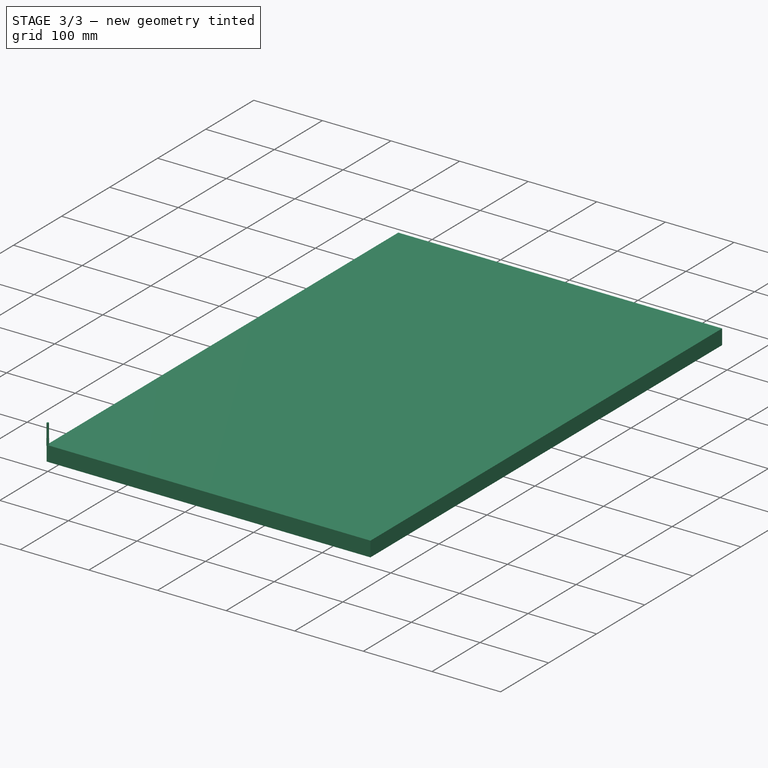
[diagram: stage 3 of 3 — iso view after this stage's code; geometry added in this stage tinted green]
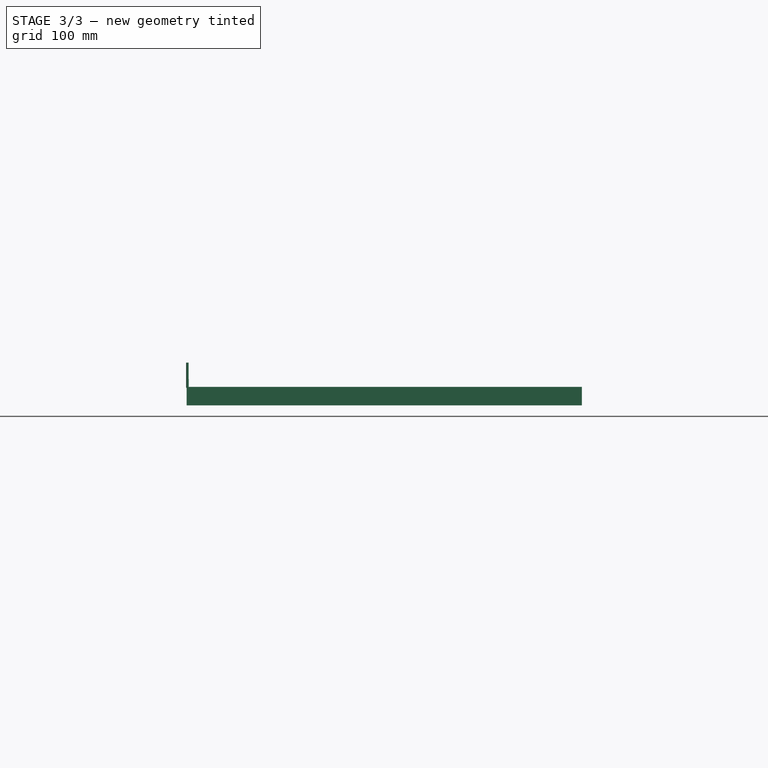
[diagram: stage 3 of 3 — front view after this stage's code; geometry added in this stage tinted green]
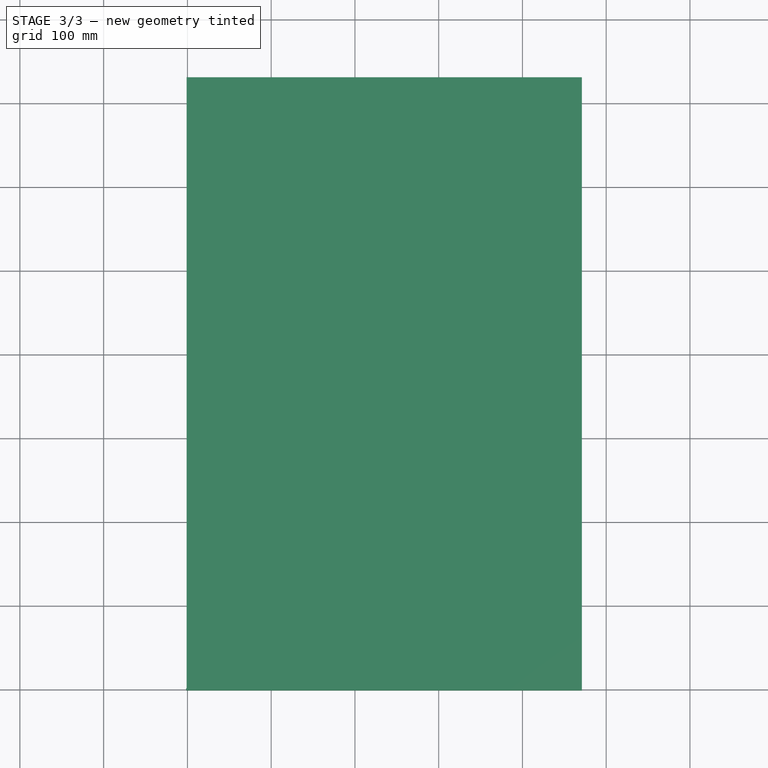
[diagram: stage 3 of 3 — top view after this stage's code; geometry added in this stage tinted green]
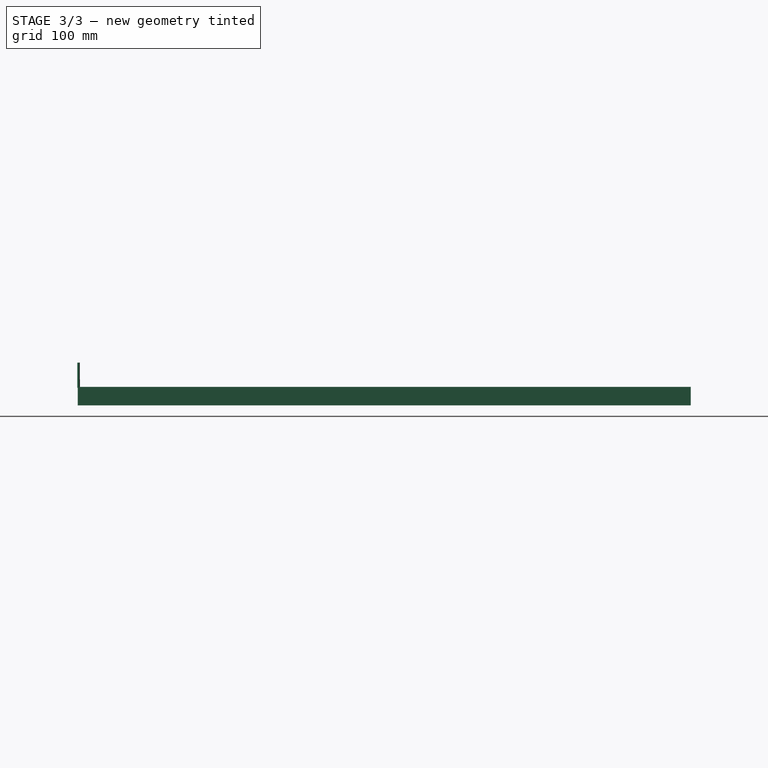
[diagram: stage 3 of 3 — right view after this stage's code; geometry added in this stage tinted green]
FEATURE [PartDesign::Body] Body
  Group = -> [Sketch,Pad,Sketch001,Pocket,Sketch002,Pocket001,Sketch003,Pocket002]
  Origin = -> Origin
  Tip = -> Pocket002
FEATURE [App::DocumentObjectGroup] Operations
FEATURE [App::FeaturePython] SetupSheet  # Path/CAM operation (typed FeaturePython)
  ClearanceHeightExpression = OpStockZMax+SetupSheet.ClearanceHeightOffset
  ClearanceHeightOffset = 5
  CoolantMode = 0
  CoolantModes = None | Flood | Mist
  FinalDepthExpression = OpFinalDepth
  HorizRapid = 0
  SafeHeightExpression = OpStockZMax+SetupSheet.SafeHeightOffset
  SafeHeightOffset = 3
  StartDepthExpression = OpStartDepth
  StepDownExpression = OpToolDiameter
  VertRapid = 0
FEATURE [Part::FeaturePython] Clone  label="Model-Body"  # Draft clone (typed FeaturePython)
  AttacherType = Attacher::AttachEngine3D
  Fuse = false
  Objects = -> [Body]
  PathResource = Model
  Scale = (1,1,1)
FEATURE [App::DocumentObjectGroup] Model
  Group = -> [Clone]
FEATURE [Part::FeaturePython] Stock  # WARN: FeaturePython — macro-defined, semantics opaque (R4)
  Base = -> Model
  ExtXneg = 1
  ExtXpos = 1
  ExtYneg = 1
  ExtYpos = 1
  ExtZneg = 1
  ExtZpos = 1
  Placement = pos=(0,0,-20) rot=(0,0,1;0rad)
  StockType = FromBase
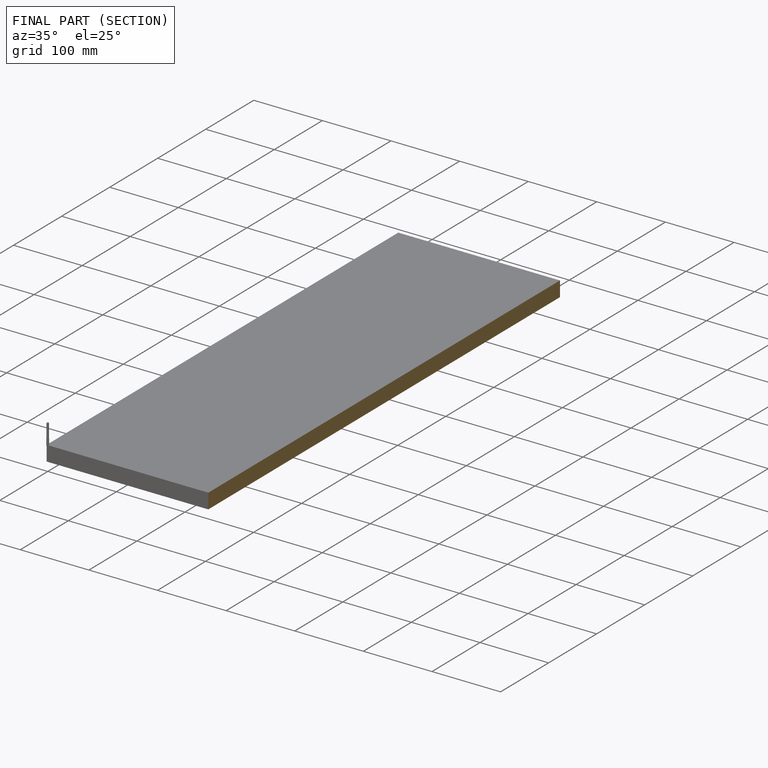
[diagram: finished part — half-section view (interior)]
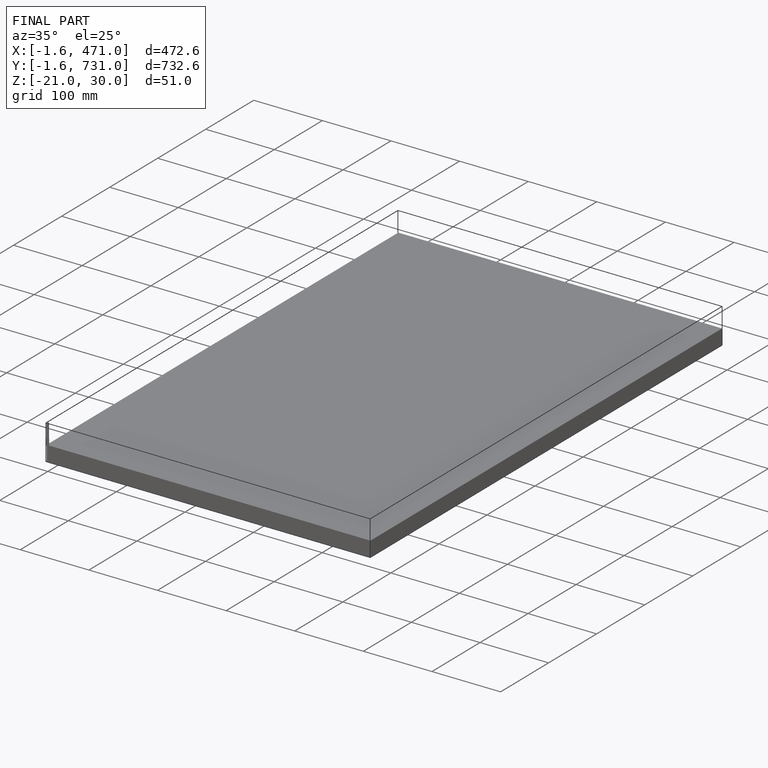
[diagram: finished part — iso view with bounding-box wireframe]
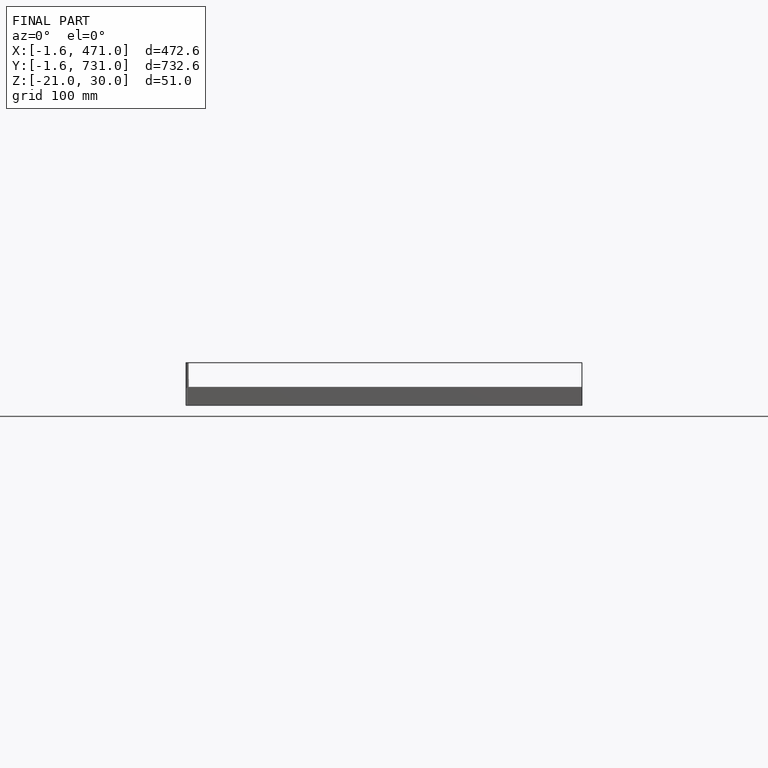
[diagram: finished part — front view with bounding-box wireframe]
